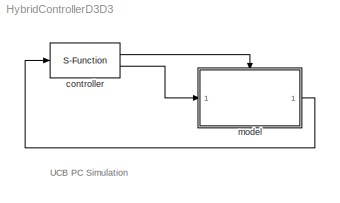
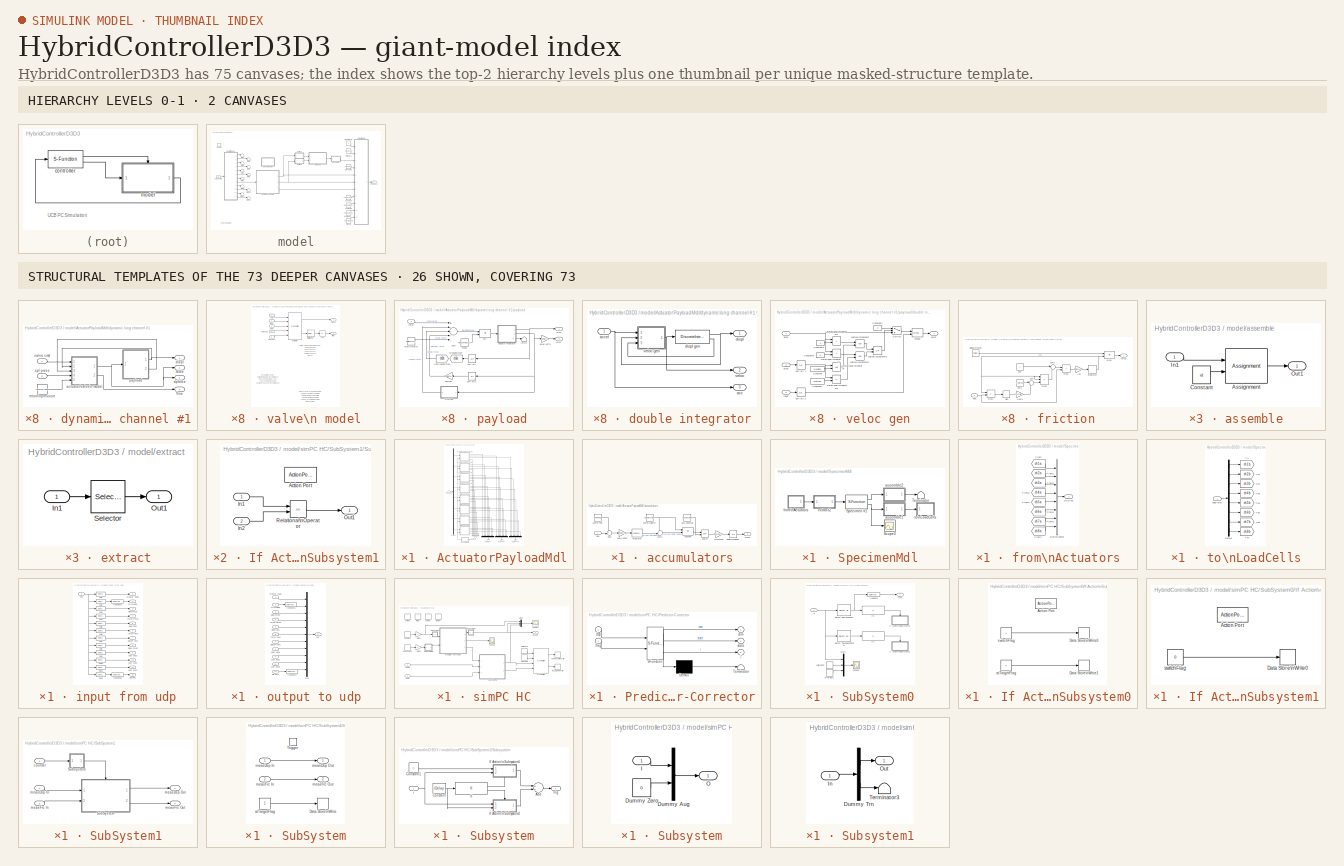
[diagram: thumbnail index - top-2 hierarchy levels (2 canvases) + 26 structural-template representatives of the remaining 73 canvases]
MODEL HybridControllerD3D3
KIND model
CONFIG InitFcn = clear('all');\ninitializeSimulation;
CONFIG PreLoadFcn = initializeSimulation;
BLOCK [S-Function] controller
  EnableBusSupport = off
  FunctionName = mtsConnect
  Parameters = '127.0.0.1',5002,nUDPInp,nUDPOut
  Ports = [1, 2]
  SID = 1
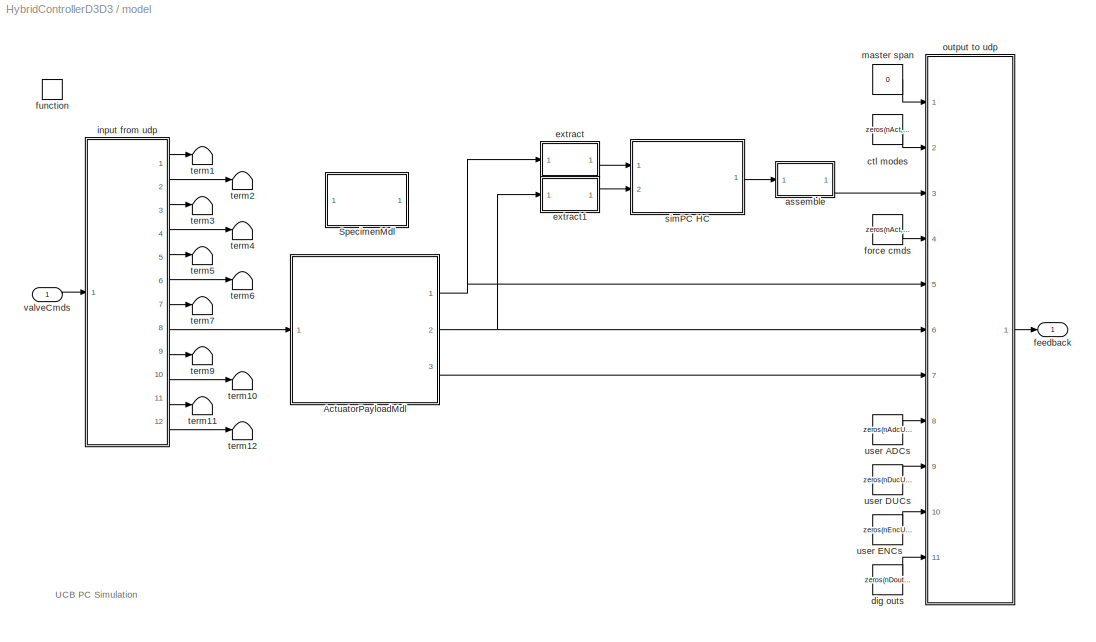
BLOCK [SubSystem] model
  FunctionWithSeparateData = off
  MaskHideContents = off
  MinAlgLoopOccurrences = off
  Opaque = off
  Ports = [1, 1, 0, 1]
  PropExecContextOutsideSubsystem = off
  RTWSystemCode = Auto
  RequestExecContextInheritance = off
  SID = 2
  TreatAsAtomicUnit = on
BLOCK [SubSystem] model/ActuatorPayloadMdl
  FunctionWithSeparateData = off
  MaskHideContents = off
  MinAlgLoopOccurrences = off
  Opaque = off
  Ports = [1, 3]
  PropExecContextOutsideSubsystem = off
  RTWSystemCode = Auto
  RequestExecContextInheritance = off
  SID = 726
BLOCK [Demux] model/ActuatorPayloadMdl/Demux
  Outputs = nAct
  Ports = [1, 8]
  SID = 728
BLOCK [Mux] model/ActuatorPayloadMdl/Mux
  DisplayOption = bar
  Inputs = nAct
  Ports = [8, 1]
  SID = 729
BLOCK [Mux] model/ActuatorPayloadMdl/Mux1
  DisplayOption = bar
  Inputs = nAct
  Ports = [8, 1]
  SID = 730
BLOCK [Mux] model/ActuatorPayloadMdl/Mux2
  DisplayOption = bar
  Inputs = nAct
  Ports = [8, 1]
  SID = 731
BLOCK [Sum] model/ActuatorPayloadMdl/Sum
  InputSameDT = off
  Inputs = ++++++++
  OutDataType = sfix(16)
  OutDataTypeMode = Inherit via internal rule
  OutDataTypeStr = Inherit: Inherit via internal rule
  OutScaling = 2^0
  Ports = [8, 1]
  SID = 732
BLOCK [SubSystem] model/ActuatorPayloadMdl/accumulators
  FunctionWithSeparateData = off
  MaskHideContents = off
  MinAlgLoopOccurrences = off
  Opaque = off
  Ports = [1, 1]
  PropExecContextOutsideSubsystem = off
  RTWSystemCode = Auto
  RequestExecContextInheritance = off
  SID = 733
BLOCK [Sum] model/ActuatorPayloadMdl/accumulators/Sum
  IconShape = round
  Inputs = +-|
  OutDataType = sfix(16)
  OutScaling = 2^0
  Ports = [2, 1]
  SID = 735
BLOCK [Sum] model/ActuatorPayloadMdl/accumulators/Sum1
  IconShape = round
  Inputs = +-|
  OutDataType = sfix(16)
  OutScaling = 2^0
  Ports = [2, 1]
  SID = 736
BLOCK [Constant] model/ActuatorPayloadMdl/accumulators/bottle volume
  OutDataType = sfix(16)
  OutScaling = 2^0
  SID = 737
  Value = volume*volumeCanon
BLOCK [Inport] model/ActuatorPayloadMdl/accumulators/flow
  IconDisplay = Port number
  OutDataType = sfix(16)
  OutScaling = 2^0
  SID = 734
BLOCK [Gain] model/ActuatorPayloadMdl/accumulators/flowCanon
  Gain = flowCanon
  OutDataType = sfix(16)
  OutScaling = 2^0
  ParameterDataType = sfix(16)
  ParameterScaling = 2^0
  SID = 738
BLOCK [Constant] model/ActuatorPayloadMdl/accumulators/gas constant
  OutDataType = sfix(16)
  OutScaling = 2^0
  SID = 739
  Value = gasConstant
BLOCK [UnitDelay] model/ActuatorPayloadMdl/accumulators/initial\ncondition
  SID = 740
  SampleTime = -1
  X0 = supplyPress
BLOCK [DiscreteIntegrator] model/ActuatorPayloadMdl/accumulators/integrator
  ExternalReset = none
  ICPrevOutput = DiscIntNeverNeededParam
  ICPrevScaledInput = DiscIntNeverNeededParam
  InitialCondition = maxOilVolume*volumeCanon
  InitialConditionSource = internal
  IntegratorMethod = Integration: Forward Euler
  LimitOutput = on
  LowerSaturationLimit = 0
  OutDataType = sfix(16)
  OutScaling = 2^0
  Ports = [1, 1]
  SID = 741
  SampleTime = -1
  UpperSaturationLimit = maxOilVolume*volumeCanon
BLOCK [Math] model/ActuatorPayloadMdl/accumulators/power
  Operator = pow
  OutDataType = sfix(16)
  OutScaling = 2^0
  Ports = [2, 1]
  SID = 742
BLOCK [Gain] model/ActuatorPayloadMdl/accumulators/precharge
  Gain = precharge
  OutDataType = sfix(16)
  OutScaling = 2^0
  ParameterDataType = sfix(16)
  ParameterScaling = 2^0
  SID = 743
BLOCK [Outport] model/ActuatorPayloadMdl/accumulators/press
  IconDisplay = Port number
  OutDataType = sfix(16)
  OutScaling = 2^0
  SID = 746
BLOCK [Constant] model/ActuatorPayloadMdl/accumulators/pump flow
  OutDataType = sfix(16)
  OutScaling = 2^0
  SID = 744
  Value = pumpFlow
BLOCK [Product] model/ActuatorPayloadMdl/accumulators/quotient
  Inputs = */
  OutDataType = sfix(16)
  OutScaling = 2^0
  Ports = [2, 1]
  RndMeth = Floor
  SID = 745
BLOCK [Outport] model/ActuatorPayloadMdl/deltaPFbks
  IconDisplay = Port number
  OutDataType = sfix(16)
  OutScaling = 2^0
  Port = 3
  SID = 1365
BLOCK [Outport] model/ActuatorPayloadMdl/displFbks
  IconDisplay = Port number
  OutDataType = sfix(16)
  OutScaling = 2^0
  SID = 1363
BLOCK [SubSystem] model/ActuatorPayloadMdl/dynamic long channel #1
  FunctionWithSeparateData = off
  MaskHideContents = off
  MinAlgLoopOccurrences = off
  Opaque = off
  Ports = [2, 4]
  PropExecContextOutsideSubsystem = off
  RTWSystemCode = Auto
  RequestExecContextInheritance = off
  SID = 747
BLOCK [SubSystem] model/ActuatorPayloadMdl/dynamic long channel #1/actuator//valve\n model
  FunctionWithSeparateData = off
  MaskHideContents = off
  MaskIconFrame = on
  MaskIconOpaque = on
  MaskIconRotate = none
  MaskIconUnits = autoscale
  MaskPortRotate = default
  MaskType = Inverse Actuator
  MinAlgLoopOccurrences = off
  Opaque = off
  Ports = [5, 2]
  PropExecContextOutsideSubsystem = off
  RTWSystemCode = Auto
  RequestExecContextInheritance = off
  SID = 750
BLOCK [Abs] model/ActuatorPayloadMdl/dynamic long channel #1/actuator//valve\n model/abs
  SID = 756
BLOCK [S-Function] model/ActuatorPayloadMdl/dynamic long channel #1/actuator//valve\n model/actuator
  EnableBusSupport = off
  FunctionName = actuator
  Parameters = actParamsB
  Ports = [5, 2]
  SID = 757
BLOCK [Inport] model/ActuatorPayloadMdl/dynamic long channel #1/actuator//valve\n model/cmd
  IconDisplay = Port number
  OutDataType = sfix(16)
  OutScaling = 2^0
  SID = 751
BLOCK [Inport] model/ActuatorPayloadMdl/dynamic long channel #1/actuator//valve\n model/displ
  IconDisplay = Port number
  OutDataType = sfix(16)
  OutScaling = 2^0
  Port = 2
  SID = 752
BLOCK [Outport] model/ActuatorPayloadMdl/dynamic long channel #1/actuator//valve\n model/flow
  IconDisplay = Port number
  OutDataType = sfix(16)
  OutScaling = 2^0
  Port = 2
  SID = 760
BLOCK [Outport] model/ActuatorPayloadMdl/dynamic long channel #1/actuator//valve\n model/force
  IconDisplay = Port number
  OutDataType = sfix(16)
  OutScaling = 2^0
  SID = 759
BLOCK [Inport] model/ActuatorPayloadMdl/dynamic long channel #1/actuator//valve\n model/rtn press
  IconDisplay = Port number
  OutDataType = sfix(16)
  OutScaling = 2^0
  Port = 5
  SID = 755
BLOCK [Inport] model/ActuatorPayloadMdl/dynamic long channel #1/actuator//valve\n model/spl press
  IconDisplay = Port number
  OutDataType = sfix(16)
  OutScaling = 2^0
  Port = 4
  SID = 754
BLOCK [Selector] model/ActuatorPayloadMdl/dynamic long channel #1/actuator//valve\n model/total flow sel
  IndexOptions = Index vector (dialog)
  Indices = 9
  InputPortWidth = 12
  OutputSizes = 1
  Ports = [1, 1]
  SID = 758
BLOCK [Inport] model/ActuatorPayloadMdl/dynamic long channel #1/actuator//valve\n model/veloc
  IconDisplay = Port number
  OutDataType = sfix(16)
  OutScaling = 2^0
  Port = 3
  SID = 753
BLOCK [Outport] model/ActuatorPayloadMdl/dynamic long channel #1/displ
  IconDisplay = Port number
  OutDataType = sfix(16)
  OutScaling = 2^0
  SID = 820
BLOCK [Outport] model/ActuatorPayloadMdl/dynamic long channel #1/dpforce
  IconDisplay = Port number
  OutDataType = sfix(16)
  OutScaling = 2^0
  Port = 3
  SID = 822
BLOCK [Outport] model/ActuatorPayloadMdl/dynamic long channel #1/flow
  IconDisplay = Port number
  OutDataType = sfix(16)
  OutScaling = 2^0
  Port = 4
  SID = 823
BLOCK [Outport] model/ActuatorPayloadMdl/dynamic long channel #1/force
  IconDisplay = Port number
  OutDataType = sfix(16)
  OutScaling = 2^0
  Port = 2
  SID = 821
BLOCK [SubSystem] model/ActuatorPayloadMdl/dynamic long channel #1/payload
  FunctionWithSeparateData = off
  MaskHideContents = off
  MinAlgLoopOccurrences = off
  Opaque = off
  Ports = [1, 2]
  PropExecContextOutsideSubsystem = off
  RTWSystemCode = Auto
  RequestExecContextInheritance = off
  SID = 761
BLOCK [Sum] model/ActuatorPayloadMdl/dynamic long channel #1/payload/Sum
  Inputs = +----
  OutDataType = sfix(16)
  OutScaling = 2^0
  Ports = [5, 1]
  SID = 763
BLOCK [Gain] model/ActuatorPayloadMdl/dynamic long channel #1/payload/damper
  Gain = damperB*damperCanon
  OutDataType = sfix(16)
  OutScaling = 2^0
  ParameterDataType = sfix(16)
  ParameterScaling = 2^0
  SID = 764
BLOCK [Outport] model/ActuatorPayloadMdl/dynamic long channel #1/payload/displ
  IconDisplay = Port number
  OutDataType = sfix(16)
  OutScaling = 2^0
  SID = 817
BLOCK [Product] model/ActuatorPayloadMdl/dynamic long channel #1/payload/div
  Inputs = */
  OutDataType = sfix(16)
  OutScaling = 2^0
  Ports = [2, 1]
  RndMeth = Floor
  SID = 765
BLOCK [SubSystem] model/ActuatorPayloadMdl/dynamic long channel #1/payload/double integrator
  FunctionWithSeparateData = off
  MaskHideContents = off
  MinAlgLoopOccurrences = off
  Opaque = off
  Ports = [1, 3]
  PropExecContextOutsideSubsystem = off
  RTWSystemCode = Auto
  RequestExecContextInheritance = off
  SID = 766
BLOCK [Outport] model/ActuatorPayloadMdl/dynamic long channel #1/payload/double integrator/acc
  IconDisplay = Port number
  Port = 3
  SID = 792
BLOCK [Inport] model/ActuatorPayloadMdl/dynamic long channel #1/payload/double integrator/accel
  IconDisplay = Port number
  SID = 767
BLOCK [Outport] model/ActuatorPayloadMdl/dynamic long channel #1/payload/double integrator/displ
  IconDisplay = Port number
  SID = 790
BLOCK [DiscreteIntegrator] model/ActuatorPayloadMdl/dynamic long channel #1/payload/double integrator/displ gen
  ExternalReset = none
  ICPrevOutput = DiscIntNeverNeededParam
  ICPrevScaledInput = DiscIntNeverNeededParam
  InitialConditionSource = internal
  IntegratorMethod = Integration: Backward Euler
  LimitOutput = on
  LowerSaturationLimit = minDisplB
  OutDataType = sfix(16)
  OutScaling = 2^0
  Ports = [1, 2]
  SID = 768
  SampleTime = -1
  ShowSaturationPort = on
  UpperSaturationLimit = maxDisplB
BLOCK [Outport] model/ActuatorPayloadMdl/dynamic long channel #1/payload/double integrator/veloc
  IconDisplay = Port number
  Port = 2
  SID = 791
BLOCK [SubSystem] model/ActuatorPayloadMdl/dynamic long channel #1/payload/double integrator/veloc gen
  FunctionWithSeparateData = off
  MaskCallbackString = |||
  MaskEnableString = on,on,on,on
  MaskHideContents = off
  MaskIconFrame = on
  MaskIconOpaque = on
  MaskIconRotate = none
  MaskIconUnits = autoscale
  MaskPortRotate = default
  MaskPromptString = Max velocity|Min velocity|Max displacement|Min displacement
  MaskStyleString = edit,edit,edit,edit
  MaskToolTipString = on,on,on,on
  MaskTunableValueString = on,on,on,on
  MaskValueString = maxVelocB*velocCanon|minVelocB*velocCanon|maxDisplB|minDisplB
  MaskVariables = maxVeloc=@1;minVeloc=@2;maxDispl=@3;minDispl=@4;
  MaskVisibilityString = on,on,on,on
  MinAlgLoopOccurrences = off
  Opaque = off
  Ports = [3, 1]
  PropExecContextOutsideSubsystem = off
  RTWSystemCode = Auto
  RequestExecContextInheritance = off
  SID = 769
BLOCK [Constant] model/ActuatorPayloadMdl/dynamic long channel #1/payload/double integrator/veloc gen/Constant
  OutDataType = sfix(16)
  OutScaling = 2^0
  SID = 773
  Value = maxDispl
BLOCK [Constant] model/ActuatorPayloadMdl/dynamic long channel #1/payload/double integrator/veloc gen/Constant1
  OutDataType = sfix(16)
  OutScaling = 2^0
  SID = 774
  Value = minDispl
BLOCK [Constant] model/ActuatorPayloadMdl/dynamic long channel #1/payload/double integrator/veloc gen/Constant2
  OutDataType = sfix(16)
  OutScaling = 2^0
  SID = 775
  Value = 0
BLOCK [Constant] model/ActuatorPayloadMdl/dynamic long channel #1/payload/double integrator/veloc gen/Constant3
  OutDataType = sfix(16)
  OutScaling = 2^0
  SID = 776
  Value = 0
BLOCK [Constant] model/ActuatorPayloadMdl/dynamic long channel #1/payload/double integrator/veloc gen/Constant4
  OutDataType = sfix(16)
  OutScaling = 2^0
  SID = 777
  Value = 0
BLOCK [Logic] model/ActuatorPayloadMdl/dynamic long channel #1/payload/double integrator/veloc gen/Logical\nOperator
  Ports = [2, 1]
  SID = 778
BLOCK [Logic] model/ActuatorPayloadMdl/dynamic long channel #1/payload/double integrator/veloc gen/Logical\nOperator1
  Ports = [2, 1]
  SID = 779
BLOCK [Logic] model/ActuatorPayloadMdl/dynamic long channel #1/payload/double integrator/veloc gen/Logical\nOperator2
  Operator = OR
  Ports = [2, 1]
  SID = 780
BLOCK [RelationalOperator] model/ActuatorPayloadMdl/dynamic long channel #1/payload/double integrator/veloc gen/Relational\nOperator
  Ports = [2, 1]
  SID = 781
BLOCK [RelationalOperator] model/ActuatorPayloadMdl/dynamic long channel #1/payload/double integrator/veloc gen/Relational\nOperator1
  Operator = >
  Ports = [2, 1]
  SID = 782
BLOCK [RelationalOperator] model/ActuatorPayloadMdl/dynamic long channel #1/payload/double integrator/veloc gen/Relational\nOperator2
  Operator = <=
  Ports = [2, 1]
  SID = 783
BLOCK [RelationalOperator] model/ActuatorPayloadMdl/dynamic long channel #1/payload/double integrator/veloc gen/Relational\nOperator3
  Operator = <
  Ports = [2, 1]
  SID = 784
BLOCK [Switch] model/ActuatorPayloadMdl/dynamic long channel #1/payload/double integrator/veloc gen/Switch
  SID = 785
  Threshold = 0.5
BLOCK [Inport] model/ActuatorPayloadMdl/dynamic long channel #1/payload/double integrator/veloc gen/accel
  IconDisplay = Port number
  OutDataType = sfix(16)
  OutScaling = 2^0
  SID = 770
BLOCK [Inport] model/ActuatorPayloadMdl/dynamic long channel #1/payload/double integrator/veloc gen/displ
  IconDisplay = Port number
  OutDataType = sfix(16)
  OutScaling = 2^0
  Port = 2
  SID = 771
BLOCK [DiscreteIntegrator] model/ActuatorPayloadMdl/dynamic long channel #1/payload/double integrator/veloc gen/integ1
  ExternalReset = either
  ICPrevOutput = DiscIntNeverNeededParam
  ICPrevScaledInput = DiscIntNeverNeededParam
  InitialConditionSource = internal
  IntegratorMethod = Integration: Backward Euler
  LimitOutput = on
  LowerSaturationLimit = minVeloc
  OutDataType = sfix(16)
  OutScaling = 2^0
  Ports = [2, 1]
  SID = 786
  SampleTime = -1
  UpperSaturationLimit = maxVeloc
BLOCK [Inport] model/ActuatorPayloadMdl/dynamic long channel #1/payload/double integrator/veloc gen/reset
  IconDisplay = Port number
  OutDataType = sfix(16)
  OutScaling = 2^0
  Port = 3
  SID = 772
BLOCK [UnitDelay] model/ActuatorPayloadMdl/dynamic long channel #1/payload/double integrator/veloc gen/unit dly 1
  SID = 787
  SampleTime = -1
BLOCK [UnitDelay] model/ActuatorPayloadMdl/dynamic long channel #1/payload/double integrator/veloc gen/unit dly 2
  SID = 788
  SampleTime = -1
BLOCK [Outport] model/ActuatorPayloadMdl/dynamic long channel #1/payload/double integrator/veloc gen/veloc
  IconDisplay = Port number
  OutDataType = sfix(16)
  OutScaling = 2^0
  SID = 789
BLOCK [Inport] model/ActuatorPayloadMdl/dynamic long channel #1/payload/force
  IconDisplay = Port number
  OutDataType = sfix(16)
  OutScaling = 2^0
  SID = 762
BLOCK [SubSystem] model/ActuatorPayloadMdl/dynamic long channel #1/payload/friction
  FunctionWithSeparateData = off
  MaskCallbackString = ||
  MaskEnableString = on,on,on
  MaskHideContents = off
  MaskIconFrame = on
  MaskIconOpaque = on
  MaskIconRotate = none
  MaskIconUnits = autoscale
  MaskPortRotate = default
  MaskPromptString = Sliding friction|Equiv. yield displacement (in)|Hysteresis constant
  MaskStyleString = edit,edit,edit
  MaskToolTipString = on,on,on
  MaskTunableValueString = on,on,on
  MaskValueString = frictionB*forceCanon|yieldDisplB*lengthCanon|0
  MaskVariables = friction=@1;yieldDispl=@2;hysteresis=@3;
  MaskVisibilityString = on,on,on
  MinAlgLoopOccurrences = off
  Opaque = off
  Ports = [1, 1]
  PropExecContextOutsideSubsystem = off
  RTWSystemCode = Auto
  RequestExecContextInheritance = off
  SID = 793
BLOCK [Gain] model/ActuatorPayloadMdl/dynamic long channel #1/payload/friction/1-beta
  Gain = 1-hysteresis
  OutDataType = sfix(16)
  OutScaling = 2^0
  ParameterDataType = sfix(16)
  ParameterScaling = 2^0
  SID = 795
BLOCK [Signum] model/ActuatorPayloadMdl/dynamic long channel #1/payload/friction/Sign
  SID = 796
BLOCK [Sum] model/ActuatorPayloadMdl/dynamic long channel #1/payload/friction/Sum
  IconShape = round
  InputSameDT = off
  Inputs = |++
  OutDataType = sfix(16)
  OutDataTypeMode = Inherit via internal rule
  OutDataTypeStr = Inherit: Inherit via internal rule
  OutScaling = 2^0
  Ports = [2, 1]
  SID = 797
BLOCK [Sum] model/ActuatorPayloadMdl/dynamic long channel #1/payload/friction/Sum1
  IconShape = round
  InputSameDT = off
  Inputs = |+-
  OutDataType = sfix(16)
  OutDataTypeMode = Inherit via internal rule
  OutDataTypeStr = Inherit: Inherit via internal rule
  OutScaling = 2^0
  Ports = [2, 1]
  SID = 798
BLOCK [Constant] model/ActuatorPayloadMdl/dynamic long channel #1/payload/friction/beta
  OutDataType = sfix(16)
  OutScaling = 2^0
  SID = 799
  Value = hysteresis
BLOCK [Outport] model/ActuatorPayloadMdl/dynamic long channel #1/payload/friction/force
  IconDisplay = Port number
  OutDataType = sfix(16)
  OutScaling = 2^0
  SID = 808
BLOCK [DiscreteIntegrator] model/ActuatorPayloadMdl/dynamic long channel #1/payload/friction/integrator
  ExternalReset = none
  ICPrevOutput = DiscIntNeverNeededParam
  ICPrevScaledInput = DiscIntNeverNeededParam
  InitialConditionSource = internal
  IntegratorMethod = Integration: Forward Euler
  LimitOutput = on
  LowerSaturationLimit = -1
  OutDataType = sfix(16)
  OutScaling = 2^0
  Ports = [1, 1]
  SID = 800
  SampleTime = -1
  UpperSaturationLimit = 1
BLOCK [Constant] model/ActuatorPayloadMdl/dynamic long channel #1/payload/friction/one
  OutDataType = sfix(16)
  OutScaling = 2^0
  SID = 801
BLOCK [Product] model/ActuatorPayloadMdl/dynamic long channel #1/payload/friction/prod1
  OutDataType = sfix(16)
  OutScaling = 2^0
  Ports = [2, 1]
  RndMeth = Floor
  SID = 802
BLOCK [Product] model/ActuatorPayloadMdl/dynamic long channel #1/payload/friction/prod2
  OutDataType = sfix(16)
  OutScaling = 2^0
  Ports = [2, 1]
  RndMeth = Floor
  SID = 803
BLOCK [Product] model/ActuatorPayloadMdl/dynamic long channel #1/payload/friction/prod3
  Inputs = 3
  OutDataType = sfix(16)
  OutScaling = 2^0
  Ports = [3, 1]
  RndMeth = Floor
  SID = 804
BLOCK [Product] model/ActuatorPayloadMdl/dynamic long channel #1/payload/friction/prod4
  OutDataType = sfix(16)
  OutScaling = 2^0
  Ports = [2, 1]
  RndMeth = Floor
  SID = 805
BLOCK [Constant] model/ActuatorPayloadMdl/dynamic long channel #1/payload/friction/sliding\nfriction
  OutDataType = sfix(16)
  OutScaling = 2^0
  SID = 806
  Value = friction
BLOCK [Inport] model/ActuatorPayloadMdl/dynamic long channel #1/payload/friction/veloc
  IconDisplay = Port number
  OutDataType = sfix(16)
  OutScaling = 2^0
  SID = 794
BLOCK [Gain] model/ActuatorPayloadMdl/dynamic long channel #1/payload/friction/y inv
  Gain = 1/max(eps, yieldDispl)
  OutDataType = sfix(16)
  OutScaling = 2^0
  ParameterDataType = sfix(16)
  ParameterScaling = 2^0
  SID = 807
BLOCK [From] model/ActuatorPayloadMdl/dynamic long channel #1/payload/from\nspecimen
  GotoTag = ch3b
  SID = 809
  TagVisibility = global
BLOCK [Constant] model/ActuatorPayloadMdl/dynamic long channel #1/payload/mass
  OutDataType = sfix(16)
  OutScaling = 2^0
  SID = 810
  Value = massB*massCanon
BLOCK [Constant] model/ActuatorPayloadMdl/dynamic long channel #1/payload/static\nforce
  OutDataType = sfix(16)
  OutScaling = 2^0
  SID = 811
  Value = staticForceB*forceCanon
BLOCK [Terminator] model/ActuatorPayloadMdl/dynamic long channel #1/payload/term1
  SID = 812
BLOCK [Goto] model/ActuatorPayloadMdl/dynamic long channel #1/payload/to\nspecimen
  GotoTag = ch3a
  SID = 813
  TagVisibility = global
BLOCK [UnitDelay] model/ActuatorPayloadMdl/dynamic long channel #1/payload/unit dly
  SID = 814
  SampleTime = -1
BLOCK [UnitDelay] model/ActuatorPayloadMdl/dynamic long channel #1/payload/unit dly1
  SID = 815
  SampleTime = -1
BLOCK [Outport] model/ActuatorPayloadMdl/dynamic long channel #1/payload/veloc
  IconDisplay = Port number
  OutDataType = sfix(16)
  OutScaling = 2^0
  Port = 2
  SID = 818
BLOCK [Gain] model/ActuatorPayloadMdl/dynamic long channel #1/payload/veloc units
  Gain = 1/velocCanon
  OutDataType = sfix(16)
  OutScaling = 2^0
  ParameterDataType = sfix(16)
  ParameterScaling = 2^0
  SID = 816
BLOCK [Constant] model/ActuatorPayloadMdl/dynamic long channel #1/return\npressure
  OutDataType = sfix(16)
  OutScaling = 2^0
  SID = 819
  Value = returnPress
BLOCK [Inport] model/ActuatorPayloadMdl/dynamic long channel #1/spl press
  IconDisplay = Port number
  OutDataType = sfix(16)
  OutScaling = 2^0
  Port = 2
  SID = 749
BLOCK [Inport] model/ActuatorPayloadMdl/dynamic long channel #1/valve cmd
  IconDisplay = Port number
  OutDataType = sfix(16)
  OutScaling = 2^0
  SID = 748
BLOCK [SubSystem] model/ActuatorPayloadMdl/dynamic long channel #2
  FunctionWithSeparateData = off
  MaskHideContents = off
  MinAlgLoopOccurrences = off
  Opaque = off
  Ports = [2, 4]
  PropExecContextOutsideSubsystem = off
  RTWSystemCode = Auto
  RequestExecContextInheritance = off
  SID = 824
BLOCK [SubSystem] model/ActuatorPayloadMdl/dynamic long channel #2/actuator//valve\n model
  FunctionWithSeparateData = off
  MaskHideContents = off
  MaskIconFrame = on
  MaskIconOpaque = on
  MaskIconRotate = none
  MaskIconUnits = autoscale
  MaskPortRotate = default
  MaskType = Inverse Actuator
  MinAlgLoopOccurrences = off
  Opaque = off
  Ports = [5, 2]
  PropExecContextOutsideSubsystem = off
  RTWSystemCode = Auto
  RequestExecContextInheritance = off
  SID = 827
BLOCK [Abs] model/ActuatorPayloadMdl/dynamic long channel #2/actuator//valve\n model/abs
  SID = 833
BLOCK [S-Function] model/ActuatorPayloadMdl/dynamic long channel #2/actuator//valve\n model/actuator
  EnableBusSupport = off
  FunctionName = actuator
  Parameters = actParamsB
  Ports = [5, 2]
  SID = 834
BLOCK [Inport] model/ActuatorPayloadMdl/dynamic long channel #2/actuator//valve\n model/cmd
  IconDisplay = Port number
  OutDataType = sfix(16)
  OutScaling = 2^0
  SID = 828
BLOCK [Inport] model/ActuatorPayloadMdl/dynamic long channel #2/actuator//valve\n model/displ
  IconDisplay = Port number
  OutDataType = sfix(16)
  OutScaling = 2^0
  Port = 2
  SID = 829
BLOCK [Outport] model/ActuatorPayloadMdl/dynamic long channel #2/actuator//valve\n model/flow
  IconDisplay = Port number
  OutDataType = sfix(16)
  OutScaling = 2^0
  Port = 2
  SID = 837
BLOCK [Outport] model/ActuatorPayloadMdl/dynamic long channel #2/actuator//valve\n model/force
  IconDisplay = Port number
  OutDataType = sfix(16)
  OutScaling = 2^0
  SID = 836
BLOCK [Inport] model/ActuatorPayloadMdl/dynamic long channel #2/actuator//valve\n model/rtn press
  IconDisplay = Port number
  OutDataType = sfix(16)
  OutScaling = 2^0
  Port = 5
  SID = 832
BLOCK [Inport] model/ActuatorPayloadMdl/dynamic long channel #2/actuator//valve\n model/spl press
  IconDisplay = Port number
  OutDataType = sfix(16)
  OutScaling = 2^0
  Port = 4
  SID = 831
BLOCK [Selector] model/ActuatorPayloadMdl/dynamic long channel #2/actuator//valve\n model/total flow sel
  IndexOptions = Index vector (dialog)
  Indices = 9
  InputPortWidth = 12
  OutputSizes = 1
  Ports = [1, 1]
  SID = 835
BLOCK [Inport] model/ActuatorPayloadMdl/dynamic long channel #2/actuator//valve\n model/veloc
  IconDisplay = Port number
  OutDataType = sfix(16)
  OutScaling = 2^0
  Port = 3
  SID = 830
BLOCK [Outport] model/ActuatorPayloadMdl/dynamic long channel #2/displ
  IconDisplay = Port number
  OutDataType = sfix(16)
  OutScaling = 2^0
  SID = 897
BLOCK [Outport] model/ActuatorPayloadMdl/dynamic long channel #2/dpforce
  IconDisplay = Port number
  OutDataType = sfix(16)
  OutScaling = 2^0
  Port = 3
  SID = 899
BLOCK [Outport] model/ActuatorPayloadMdl/dynamic long channel #2/flow
  IconDisplay = Port number
  OutDataType = sfix(16)
  OutScaling = 2^0
  Port = 4
  SID = 900
BLOCK [Outport] model/ActuatorPayloadMdl/dynamic long channel #2/force
  IconDisplay = Port number
  OutDataType = sfix(16)
  OutScaling = 2^0
  Port = 2
  SID = 898
BLOCK [SubSystem] model/ActuatorPayloadMdl/dynamic long channel #2/payload
  FunctionWithSeparateData = off
  MaskHideContents = off
  MinAlgLoopOccurrences = off
  Opaque = off
  Ports = [1, 2]
  PropExecContextOutsideSubsystem = off
  RTWSystemCode = Auto
  RequestExecContextInheritance = off
  SID = 838
BLOCK [Sum] model/ActuatorPayloadMdl/dynamic long channel #2/payload/Sum
  Inputs = +----
  OutDataType = sfix(16)
  OutScaling = 2^0
  Ports = [5, 1]
  SID = 840
BLOCK [Gain] model/ActuatorPayloadMdl/dynamic long channel #2/payload/damper
  Gain = damperB*damperCanon
  OutDataType = sfix(16)
  OutScaling = 2^0
  ParameterDataType = sfix(16)
  ParameterScaling = 2^0
  SID = 841
BLOCK [Outport] model/ActuatorPayloadMdl/dynamic long channel #2/payload/displ
  IconDisplay = Port number
  OutDataType = sfix(16)
  OutScaling = 2^0
  SID = 894
BLOCK [Product] model/ActuatorPayloadMdl/dynamic long channel #2/payload/div
  Inputs = */
  OutDataType = sfix(16)
  OutScaling = 2^0
  Ports = [2, 1]
  RndMeth = Floor
  SID = 842
BLOCK [SubSystem] model/ActuatorPayloadMdl/dynamic long channel #2/payload/double integrator
  FunctionWithSeparateData = off
  MaskHideContents = off
  MinAlgLoopOccurrences = off
  Opaque = off
  Ports = [1, 3]
  PropExecContextOutsideSubsystem = off
  RTWSystemCode = Auto
  RequestExecContextInheritance = off
  SID = 843
BLOCK [Outport] model/ActuatorPayloadMdl/dynamic long channel #2/payload/double integrator/acc
  IconDisplay = Port number
  Port = 3
  SID = 869
BLOCK [Inport] model/ActuatorPayloadMdl/dynamic long channel #2/payload/double integrator/accel
  IconDisplay = Port number
  SID = 844
BLOCK [Outport] model/ActuatorPayloadMdl/dynamic long channel #2/payload/double integrator/displ
  IconDisplay = Port number
  SID = 867
BLOCK [DiscreteIntegrator] model/ActuatorPayloadMdl/dynamic long channel #2/payload/double integrator/displ gen
  ExternalReset = none
  ICPrevOutput = DiscIntNeverNeededParam
  ICPrevScaledInput = DiscIntNeverNeededParam
  InitialConditionSource = internal
  IntegratorMethod = Integration: Backward Euler
  LimitOutput = on
  LowerSaturationLimit = minDisplB
  OutDataType = sfix(16)
  OutScaling = 2^0
  Ports = [1, 2]
  SID = 845
  SampleTime = -1
  ShowSaturationPort = on
  UpperSaturationLimit = maxDisplB
BLOCK [Outport] model/ActuatorPayloadMdl/dynamic long channel #2/payload/double integrator/veloc
  IconDisplay = Port number
  Port = 2
  SID = 868
BLOCK [SubSystem] model/ActuatorPayloadMdl/dynamic long channel #2/payload/double integrator/veloc gen
  FunctionWithSeparateData = off
  MaskCallbackString = |||
  MaskEnableString = on,on,on,on
  MaskHideContents = off
  MaskIconFrame = on
  MaskIconOpaque = on
  MaskIconRotate = none
  MaskIconUnits = autoscale
  MaskPortRotate = default
  MaskPromptString = Max velocity|Min velocity|Max displacement|Min displacement
  MaskStyleString = edit,edit,edit,edit
  MaskToolTipString = on,on,on,on
  MaskTunableValueString = on,on,on,on
  MaskValueString = maxVelocB*velocCanon|minVelocB*velocCanon|maxDisplB|minDisplB
  MaskVariables = maxVeloc=@1;minVeloc=@2;maxDispl=@3;minDispl=@4;
  MaskVisibilityString = on,on,on,on
  MinAlgLoopOccurrences = off
  Opaque = off
  Ports = [3, 1]
  PropExecContextOutsideSubsystem = off
  RTWSystemCode = Auto
  RequestExecContextInheritance = off
  SID = 846
BLOCK [Constant] model/ActuatorPayloadMdl/dynamic long channel #2/payload/double integrator/veloc gen/Constant
  OutDataType = sfix(16)
  OutScaling = 2^0
  SID = 850
  Value = maxDispl
BLOCK [Constant] model/ActuatorPayloadMdl/dynamic long channel #2/payload/double integrator/veloc gen/Constant1
  OutDataType = sfix(16)
  OutScaling = 2^0
  SID = 851
  Value = minDispl
BLOCK [Constant] model/ActuatorPayloadMdl/dynamic long channel #2/payload/double integrator/veloc gen/Constant2
  OutDataType = sfix(16)
  OutScaling = 2^0
  SID = 852
  Value = 0
BLOCK [Constant] model/ActuatorPayloadMdl/dynamic long channel #2/payload/double integrator/veloc gen/Constant3
  OutDataType = sfix(16)
  OutScaling = 2^0
  SID = 853
  Value = 0
BLOCK [Constant] model/ActuatorPayloadMdl/dynamic long channel #2/payload/double integrator/veloc gen/Constant4
  OutDataType = sfix(16)
  OutScaling = 2^0
  SID = 854
  Value = 0
BLOCK [Logic] model/ActuatorPayloadMdl/dynamic long channel #2/payload/double integrator/veloc gen/Logical\nOperator
  Ports = [2, 1]
  SID = 855
BLOCK [Logic] model/ActuatorPayloadMdl/dynamic long channel #2/payload/double integrator/veloc gen/Logical\nOperator1
  Ports = [2, 1]
  SID = 856
BLOCK [Logic] model/ActuatorPayloadMdl/dynamic long channel #2/payload/double integrator/veloc gen/Logical\nOperator2
  Operator = OR
  Ports = [2, 1]
  SID = 857
BLOCK [RelationalOperator] model/ActuatorPayloadMdl/dynamic long channel #2/payload/double integrator/veloc gen/Relational\nOperator
  Ports = [2, 1]
  SID = 858
BLOCK [RelationalOperator] model/ActuatorPayloadMdl/dynamic long channel #2/payload/double integrator/veloc gen/Relational\nOperator1
  Operator = >
  Ports = [2, 1]
  SID = 859
BLOCK [RelationalOperator] model/ActuatorPayloadMdl/dynamic long channel #2/payload/double integrator/veloc gen/Relational\nOperator2
  Operator = <=
  Ports = [2, 1]
  SID = 860
BLOCK [RelationalOperator] model/ActuatorPayloadMdl/dynamic long channel #2/payload/double integrator/veloc gen/Relational\nOperator3
  Operator = <
  Ports = [2, 1]
  SID = 861
BLOCK [Switch] model/ActuatorPayloadMdl/dynamic long channel #2/payload/double integrator/veloc gen/Switch
  SID = 862
  Threshold = 0.5
BLOCK [Inport] model/ActuatorPayloadMdl/dynamic long channel #2/payload/double integrator/veloc gen/accel
  IconDisplay = Port number
  OutDataType = sfix(16)
  OutScaling = 2^0
  SID = 847
BLOCK [Inport] model/ActuatorPayloadMdl/dynamic long channel #2/payload/double integrator/veloc gen/displ
  IconDisplay = Port number
  OutDataType = sfix(16)
  OutScaling = 2^0
  Port = 2
  SID = 848
BLOCK [DiscreteIntegrator] model/ActuatorPayloadMdl/dynamic long channel #2/payload/double integrator/veloc gen/integ1
  ExternalReset = either
  ICPrevOutput = DiscIntNeverNeededParam
  ICPrevScaledInput = DiscIntNeverNeededParam
  InitialConditionSource = internal
  IntegratorMethod = Integration: Backward Euler
  LimitOutput = on
  LowerSaturationLimit = minVeloc
  OutDataType = sfix(16)
  OutScaling = 2^0
  Ports = [2, 1]
  SID = 863
  SampleTime = -1
  UpperSaturationLimit = maxVeloc
BLOCK [Inport] model/ActuatorPayloadMdl/dynamic long channel #2/payload/double integrator/veloc gen/reset
  IconDisplay = Port number
  OutDataType = sfix(16)
  OutScaling = 2^0
  Port = 3
  SID = 849
BLOCK [UnitDelay] model/ActuatorPayloadMdl/dynamic long channel #2/payload/double integrator/veloc gen/unit dly 1
  SID = 864
  SampleTime = -1
BLOCK [UnitDelay] model/ActuatorPayloadMdl/dynamic long channel #2/payload/double integrator/veloc gen/unit dly 2
  SID = 865
  SampleTime = -1
BLOCK [Outport] model/ActuatorPayloadMdl/dynamic long channel #2/payload/double integrator/veloc gen/veloc
  IconDisplay = Port number
  OutDataType = sfix(16)
  OutScaling = 2^0
  SID = 866
BLOCK [Inport] model/ActuatorPayloadMdl/dynamic long channel #2/payload/force
  IconDisplay = Port number
  OutDataType = sfix(16)
  OutScaling = 2^0
  SID = 839
BLOCK [SubSystem] model/ActuatorPayloadMdl/dynamic long channel #2/payload/friction
  FunctionWithSeparateData = off
  MaskCallbackString = ||
  MaskEnableString = on,on,on
  MaskHideContents = off
  MaskIconFrame = on
  MaskIconOpaque = on
  MaskIconRotate = none
  MaskIconUnits = autoscale
  MaskPortRotate = default
  MaskPromptString = Sliding friction|Equiv. yield displacement (in)|Hysteresis constant
  MaskStyleString = edit,edit,edit
  MaskToolTipString = on,on,on
  MaskTunableValueString = on,on,on
  MaskValueString = frictionB*forceCanon|yieldDisplB*lengthCanon|0
  MaskVariables = friction=@1;yieldDispl=@2;hysteresis=@3;
  MaskVisibilityString = on,on,on
  MinAlgLoopOccurrences = off
  Opaque = off
  Ports = [1, 1]
  PropExecContextOutsideSubsystem = off
  RTWSystemCode = Auto
  RequestExecContextInheritance = off
  SID = 870
BLOCK [Gain] model/ActuatorPayloadMdl/dynamic long channel #2/payload/friction/1-beta
  Gain = 1-hysteresis
  OutDataType = sfix(16)
  OutScaling = 2^0
  ParameterDataType = sfix(16)
  ParameterScaling = 2^0
  SID = 872
BLOCK [Signum] model/ActuatorPayloadMdl/dynamic long channel #2/payload/friction/Sign
  SID = 873
BLOCK [Sum] model/ActuatorPayloadMdl/dynamic long channel #2/payload/friction/Sum
  IconShape = round
  InputSameDT = off
  Inputs = |++
  OutDataType = sfix(16)
  OutDataTypeMode = Inherit via internal rule
  OutDataTypeStr = Inherit: Inherit via internal rule
  OutScaling = 2^0
  Ports = [2, 1]
  SID = 874
BLOCK [Sum] model/ActuatorPayloadMdl/dynamic long channel #2/payload/friction/Sum1
  IconShape = round
  InputSameDT = off
  Inputs = |+-
  OutDataType = sfix(16)
  OutDataTypeMode = Inherit via internal rule
  OutDataTypeStr = Inherit: Inherit via internal rule
  OutScaling = 2^0
  Ports = [2, 1]
  SID = 875
BLOCK [Constant] model/ActuatorPayloadMdl/dynamic long channel #2/payload/friction/beta
  OutDataType = sfix(16)
  OutScaling = 2^0
  SID = 876
  Value = hysteresis
BLOCK [Outport] model/ActuatorPayloadMdl/dynamic long channel #2/payload/friction/force
  IconDisplay = Port number
  OutDataType = sfix(16)
  OutScaling = 2^0
  SID = 885
BLOCK [DiscreteIntegrator] model/ActuatorPayloadMdl/dynamic long channel #2/payload/friction/integrator
  ExternalReset = none
  ICPrevOutput = DiscIntNeverNeededParam
  ICPrevScaledInput = DiscIntNeverNeededParam
  InitialConditionSource = internal
  IntegratorMethod = Integration: Forward Euler
  LimitOutput = on
  LowerSaturationLimit = -1
  OutDataType = sfix(16)
  OutScaling = 2^0
  Ports = [1, 1]
  SID = 877
  SampleTime = -1
  UpperSaturationLimit = 1
BLOCK [Constant] model/ActuatorPayloadMdl/dynamic long channel #2/payload/friction/one
  OutDataType = sfix(16)
  OutScaling = 2^0
  SID = 878
BLOCK [Product] model/ActuatorPayloadMdl/dynamic long channel #2/payload/friction/prod1
  OutDataType = sfix(16)
  OutScaling = 2^0
  Ports = [2, 1]
  RndMeth = Floor
  SID = 879
BLOCK [Product] model/ActuatorPayloadMdl/dynamic long channel #2/payload/friction/prod2
  OutDataType = sfix(16)
  OutScaling = 2^0
  Ports = [2, 1]
  RndMeth = Floor
  SID = 880
BLOCK [Product] model/ActuatorPayloadMdl/dynamic long channel #2/payload/friction/prod3
  Inputs = 3
  OutDataType = sfix(16)
  OutScaling = 2^0
  Ports = [3, 1]
  RndMeth = Floor
  SID = 881
BLOCK [Product] model/ActuatorPayloadMdl/dynamic long channel #2/payload/friction/prod4
  OutDataType = sfix(16)
  OutScaling = 2^0
  Ports = [2, 1]
  RndMeth = Floor
  SID = 882
BLOCK [Constant] model/ActuatorPayloadMdl/dynamic long channel #2/payload/friction/sliding\nfriction
  OutDataType = sfix(16)
  OutScaling = 2^0
  SID = 883
  Value = friction
BLOCK [Inport] model/ActuatorPayloadMdl/dynamic long channel #2/payload/friction/veloc
  IconDisplay = Port number
  OutDataType = sfix(16)
  OutScaling = 2^0
  SID = 871
BLOCK [Gain] model/ActuatorPayloadMdl/dynamic long channel #2/payload/friction/y inv
  Gain = 1/max(eps, yieldDispl)
  OutDataType = sfix(16)
  OutScaling = 2^0
  ParameterDataType = sfix(16)
  ParameterScaling = 2^0
  SID = 884
BLOCK [From] model/ActuatorPayloadMdl/dynamic long channel #2/payload/from\nspecimen
  GotoTag = ch4b
  SID = 886
  TagVisibility = global
BLOCK [Constant] model/ActuatorPayloadMdl/dynamic long channel #2/payload/mass
  OutDataType = sfix(16)
  OutScaling = 2^0
  SID = 887
  Value = massB*massCanon
BLOCK [Constant] model/ActuatorPayloadMdl/dynamic long channel #2/payload/static\nforce
  OutDataType = sfix(16)
  OutScaling = 2^0
  SID = 888
  Value = staticForceB*forceCanon
BLOCK [Terminator] model/ActuatorPayloadMdl/dynamic long channel #2/payload/term1
  SID = 889
BLOCK [Goto] model/ActuatorPayloadMdl/dynamic long channel #2/payload/to\nspecimen
  GotoTag = ch4a
  SID = 890
  TagVisibility = global
BLOCK [UnitDelay] model/ActuatorPayloadMdl/dynamic long channel #2/payload/unit dly
  SID = 891
  SampleTime = -1
BLOCK [UnitDelay] model/ActuatorPayloadMdl/dynamic long channel #2/payload/unit dly1
  SID = 892
  SampleTime = -1
BLOCK [Outport] model/ActuatorPayloadMdl/dynamic long channel #2/payload/veloc
  IconDisplay = Port number
  OutDataType = sfix(16)
  OutScaling = 2^0
  Port = 2
  SID = 895
BLOCK [Gain] model/ActuatorPayloadMdl/dynamic long channel #2/payload/veloc units
  Gain = 1/velocCanon
  OutDataType = sfix(16)
  OutScaling = 2^0
  ParameterDataType = sfix(16)
  ParameterScaling = 2^0
  SID = 893
BLOCK [Constant] model/ActuatorPayloadMdl/dynamic long channel #2/return\npressure
  OutDataType = sfix(16)
  OutScaling = 2^0
  SID = 896
  Value = returnPress
BLOCK [Inport] model/ActuatorPayloadMdl/dynamic long channel #2/spl press
  IconDisplay = Port number
  OutDataType = sfix(16)
  OutScaling = 2^0
  Port = 2
  SID = 826
BLOCK [Inport] model/ActuatorPayloadMdl/dynamic long channel #2/valve cmd
  IconDisplay = Port number
  OutDataType = sfix(16)
  OutScaling = 2^0
  SID = 825
BLOCK [SubSystem] model/ActuatorPayloadMdl/dynamic short channel #1
  FunctionWithSeparateData = off
  MaskHideContents = off
  MinAlgLoopOccurrences = off
  Opaque = off
  Ports = [2, 4]
  PropExecContextOutsideSubsystem = off
  RTWSystemCode = Auto
  RequestExecContextInheritance = off
  SID = 901
BLOCK [SubSystem] model/ActuatorPayloadMdl/dynamic short channel #1/actuator//valve\n model
  FunctionWithSeparateData = off
  MaskHideContents = off
  MaskIconFrame = on
  MaskIconOpaque = on
  MaskIconRotate = none
  MaskIconUnits = autoscale
  MaskPortRotate = default
  MaskType = Inverse Actuator
  MinAlgLoopOccurrences = off
  Opaque = off
  Ports = [5, 2]
  PropExecContextOutsideSubsystem = off
  RTWSystemCode = Auto
  RequestExecContextInheritance = off
  SID = 904
BLOCK [Abs] model/ActuatorPayloadMdl/dynamic short channel #1/actuator//valve\n model/abs
  SID = 910
BLOCK [S-Function] model/ActuatorPayloadMdl/dynamic short channel #1/actuator//valve\n model/actuator
  EnableBusSupport = off
  FunctionName = actuator
  Parameters = actParamsA
  Ports = [5, 2]
  SID = 911
BLOCK [Inport] model/ActuatorPayloadMdl/dynamic short channel #1/actuator//valve\n model/cmd
  IconDisplay = Port number
  OutDataType = sfix(16)
  OutScaling = 2^0
  SID = 905
BLOCK [Inport] model/ActuatorPayloadMdl/dynamic short channel #1/actuator//valve\n model/displ
  IconDisplay = Port number
  OutDataType = sfix(16)
  OutScaling = 2^0
  Port = 2
  SID = 906
BLOCK [Outport] model/ActuatorPayloadMdl/dynamic short channel #1/actuator//valve\n model/flow
  IconDisplay = Port number
  OutDataType = sfix(16)
  OutScaling = 2^0
  Port = 2
  SID = 914
BLOCK [Outport] model/ActuatorPayloadMdl/dynamic short channel #1/actuator//valve\n model/force
  IconDisplay = Port number
  OutDataType = sfix(16)
  OutScaling = 2^0
  SID = 913
BLOCK [Inport] model/ActuatorPayloadMdl/dynamic short channel #1/actuator//valve\n model/rtn press
  IconDisplay = Port number
  OutDataType = sfix(16)
  OutScaling = 2^0
  Port = 5
  SID = 909
BLOCK [Inport] model/ActuatorPayloadMdl/dynamic short channel #1/actuator//valve\n model/spl press
  IconDisplay = Port number
  OutDataType = sfix(16)
  OutScaling = 2^0
  Port = 4
  SID = 908
BLOCK [Selector] model/ActuatorPayloadMdl/dynamic short channel #1/actuator//valve\n model/total flow sel
  IndexOptions = Index vector (dialog)
  Indices = 9
  InputPortWidth = 12
  OutputSizes = 1
  Ports = [1, 1]
  SID = 912
BLOCK [Inport] model/ActuatorPayloadMdl/dynamic short channel #1/actuator//valve\n model/veloc
  IconDisplay = Port number
  OutDataType = sfix(16)
  OutScaling = 2^0
  Port = 3
  SID = 907
BLOCK [Outport] model/ActuatorPayloadMdl/dynamic short channel #1/displ
  IconDisplay = Port number
  OutDataType = sfix(16)
  OutScaling = 2^0
  SID = 974
BLOCK [Outport] model/ActuatorPayloadMdl/dynamic short channel #1/dpforce
  IconDisplay = Port number
  OutDataType = sfix(16)
  OutScaling = 2^0
  Port = 3
  SID = 976
BLOCK [Outport] model/ActuatorPayloadMdl/dynamic short channel #1/flow
  IconDisplay = Port number
  OutDataType = sfix(16)
  OutScaling = 2^0
  Port = 4
  SID = 977
BLOCK [Outport] model/ActuatorPayloadMdl/dynamic short channel #1/force
  IconDisplay = Port number
  OutDataType = sfix(16)
  OutScaling = 2^0
  Port = 2
  SID = 975
BLOCK [SubSystem] model/ActuatorPayloadMdl/dynamic short channel #1/payload
  FunctionWithSeparateData = off
  MaskHideContents = off
  MinAlgLoopOccurrences = off
  Opaque = off
  Ports = [1, 2]
  PropExecContextOutsideSubsystem = off
  RTWSystemCode = Auto
  RequestExecContextInheritance = off
  SID = 915
BLOCK [Sum] model/ActuatorPayloadMdl/dynamic short channel #1/payload/Sum
  Inputs = +----
  OutDataType = sfix(16)
  OutScaling = 2^0
  Ports = [5, 1]
  SID = 917
BLOCK [Gain] model/ActuatorPayloadMdl/dynamic short channel #1/payload/damper
  Gain = damperA*damperCanon
  OutDataType = sfix(16)
  OutScaling = 2^0
  ParameterDataType = sfix(16)
  ParameterScaling = 2^0
  SID = 918
BLOCK [Outport] model/ActuatorPayloadMdl/dynamic short channel #1/payload/displ
  IconDisplay = Port number
  OutDataType = sfix(16)
  OutScaling = 2^0
  SID = 971
BLOCK [Product] model/ActuatorPayloadMdl/dynamic short channel #1/payload/div
  Inputs = */
  OutDataType = sfix(16)
  OutScaling = 2^0
  Ports = [2, 1]
  RndMeth = Floor
  SID = 919
BLOCK [SubSystem] model/ActuatorPayloadMdl/dynamic short channel #1/payload/double integrator
  FunctionWithSeparateData = off
  MaskHideContents = off
  MinAlgLoopOccurrences = off
  Opaque = off
  Ports = [1, 3]
  PropExecContextOutsideSubsystem = off
  RTWSystemCode = Auto
  RequestExecContextInheritance = off
  SID = 920
BLOCK [Outport] model/ActuatorPayloadMdl/dynamic short channel #1/payload/double integrator/acc
  IconDisplay = Port number
  Port = 3
  SID = 946
BLOCK [Inport] model/ActuatorPayloadMdl/dynamic short channel #1/payload/double integrator/accel
  IconDisplay = Port number
  SID = 921
BLOCK [Outport] model/ActuatorPayloadMdl/dynamic short channel #1/payload/double integrator/displ
  IconDisplay = Port number
  SID = 944
BLOCK [DiscreteIntegrator] model/ActuatorPayloadMdl/dynamic short channel #1/payload/double integrator/displ gen
  ExternalReset = none
  ICPrevOutput = DiscIntNeverNeededParam
  ICPrevScaledInput = DiscIntNeverNeededParam
  InitialConditionSource = internal
  IntegratorMethod = Integration: Backward Euler
  LimitOutput = on
  LowerSaturationLimit = minDisplA
  OutDataType = sfix(16)
  OutScaling = 2^0
  Ports = [1, 2]
  SID = 922
  SampleTime = -1
  ShowSaturationPort = on
  UpperSaturationLimit = maxDisplA
BLOCK [Outport] model/ActuatorPayloadMdl/dynamic short channel #1/payload/double integrator/veloc
  IconDisplay = Port number
  Port = 2
  SID = 945
BLOCK [SubSystem] model/ActuatorPayloadMdl/dynamic short channel #1/payload/double integrator/veloc gen
  FunctionWithSeparateData = off
  MaskCallbackString = |||
  MaskEnableString = on,on,on,on
  MaskHideContents = off
  MaskIconFrame = on
  MaskIconOpaque = on
  MaskIconRotate = none
  MaskIconUnits = autoscale
  MaskPortRotate = default
  MaskPromptString = Max velocity|Min velocity|Max displacement|Min displacement
  MaskStyleString = edit,edit,edit,edit
  MaskToolTipString = on,on,on,on
  MaskTunableValueString = on,on,on,on
  MaskValueString = maxVelocA*velocCanon|minVelocA*velocCanon|maxDisplA|minDisplA
  MaskVariables = maxVeloc=@1;minVeloc=@2;maxDispl=@3;minDispl=@4;
  MaskVisibilityString = on,on,on,on
  MinAlgLoopOccurrences = off
  Opaque = off
  Ports = [3, 1]
  PropExecContextOutsideSubsystem = off
  RTWSystemCode = Auto
  RequestExecContextInheritance = off
  SID = 923
BLOCK [Constant] model/ActuatorPayloadMdl/dynamic short channel #1/payload/double integrator/veloc gen/Constant
  OutDataType = sfix(16)
  OutScaling = 2^0
  SID = 927
  Value = maxDispl
BLOCK [Constant] model/ActuatorPayloadMdl/dynamic short channel #1/payload/double integrator/veloc gen/Constant1
  OutDataType = sfix(16)
  OutScaling = 2^0
  SID = 928
  Value = minDispl
BLOCK [Constant] model/ActuatorPayloadMdl/dynamic short channel #1/payload/double integrator/veloc gen/Constant2
  OutDataType = sfix(16)
  OutScaling = 2^0
  SID = 929
  Value = 0
BLOCK [Constant] model/ActuatorPayloadMdl/dynamic short channel #1/payload/double integrator/veloc gen/Constant3
  OutDataType = sfix(16)
  OutScaling = 2^0
  SID = 930
  Value = 0
BLOCK [Constant] model/ActuatorPayloadMdl/dynamic short channel #1/payload/double integrator/veloc gen/Constant4
  OutDataType = sfix(16)
  OutScaling = 2^0
  SID = 931
  Value = 0
BLOCK [Logic] model/ActuatorPayloadMdl/dynamic short channel #1/payload/double integrator/veloc gen/Logical\nOperator
  Ports = [2, 1]
  SID = 932
BLOCK [Logic] model/ActuatorPayloadMdl/dynamic short channel #1/payload/double integrator/veloc gen/Logical\nOperator1
  Ports = [2, 1]
  SID = 933
BLOCK [Logic] model/ActuatorPayloadMdl/dynamic short channel #1/payload/double integrator/veloc gen/Logical\nOperator2
  Operator = OR
  Ports = [2, 1]
  SID = 934
BLOCK [RelationalOperator] model/ActuatorPayloadMdl/dynamic short channel #1/payload/double integrator/veloc gen/Relational\nOperator
  Ports = [2, 1]
  SID = 935
BLOCK [RelationalOperator] model/ActuatorPayloadMdl/dynamic short channel #1/payload/double integrator/veloc gen/Relational\nOperator1
  Operator = >
  Ports = [2, 1]
  SID = 936
BLOCK [RelationalOperator] model/ActuatorPayloadMdl/dynamic short channel #1/payload/double integrator/veloc gen/Relational\nOperator2
  Operator = <=
  Ports = [2, 1]
  SID = 937
BLOCK [RelationalOperator] model/ActuatorPayloadMdl/dynamic short channel #1/payload/double integrator/veloc gen/Relational\nOperator3
  Operator = <
  Ports = [2, 1]
  SID = 938
BLOCK [Switch] model/ActuatorPayloadMdl/dynamic short channel #1/payload/double integrator/veloc gen/Switch
  SID = 939
  Threshold = 0.5
BLOCK [Inport] model/ActuatorPayloadMdl/dynamic short channel #1/payload/double integrator/veloc gen/accel
  IconDisplay = Port number
  OutDataType = sfix(16)
  OutScaling = 2^0
  SID = 924
BLOCK [Inport] model/ActuatorPayloadMdl/dynamic short channel #1/payload/double integrator/veloc gen/displ
  IconDisplay = Port number
  OutDataType = sfix(16)
  OutScaling = 2^0
  Port = 2
  SID = 925
BLOCK [DiscreteIntegrator] model/ActuatorPayloadMdl/dynamic short channel #1/payload/double integrator/veloc gen/integ1
  ExternalReset = either
  ICPrevOutput = DiscIntNeverNeededParam
  ICPrevScaledInput = DiscIntNeverNeededParam
  InitialConditionSource = internal
  IntegratorMethod = Integration: Backward Euler
  LimitOutput = on
  LowerSaturationLimit = minVeloc
  OutDataType = sfix(16)
  OutScaling = 2^0
  Ports = [2, 1]
  SID = 940
  SampleTime = -1
  UpperSaturationLimit = maxVeloc
BLOCK [Inport] model/ActuatorPayloadMdl/dynamic short channel #1/payload/double integrator/veloc gen/reset
  IconDisplay = Port number
  OutDataType = sfix(16)
  OutScaling = 2^0
  Port = 3
  SID = 926
BLOCK [UnitDelay] model/ActuatorPayloadMdl/dynamic short channel #1/payload/double integrator/veloc gen/unit dly 1
  SID = 941
  SampleTime = -1
BLOCK [UnitDelay] model/ActuatorPayloadMdl/dynamic short channel #1/payload/double integrator/veloc gen/unit dly 2
  SID = 942
  SampleTime = -1
BLOCK [Outport] model/ActuatorPayloadMdl/dynamic short channel #1/payload/double integrator/veloc gen/veloc
  IconDisplay = Port number
  OutDataType = sfix(16)
  OutScaling = 2^0
  SID = 943
BLOCK [Inport] model/ActuatorPayloadMdl/dynamic short channel #1/payload/force
  IconDisplay = Port number
  OutDataType = sfix(16)
  OutScaling = 2^0
  SID = 916
BLOCK [SubSystem] model/ActuatorPayloadMdl/dynamic short channel #1/payload/friction
  FunctionWithSeparateData = off
  MaskCallbackString = ||
  MaskEnableString = on,on,on
  MaskHideContents = off
  MaskIconFrame = on
  MaskIconOpaque = on
  MaskIconRotate = none
  MaskIconUnits = autoscale
  MaskPortRotate = default
  MaskPromptString = Sliding friction|Equiv. yield displacement (in)|Hysteresis constant
  MaskStyleString = edit,edit,edit
  MaskToolTipString = on,on,on
  MaskTunableValueString = on,on,on
  MaskValueString = frictionA*forceCanon|yieldDisplA*lengthCanon|0
  MaskVariables = friction=@1;yieldDispl=@2;hysteresis=@3;
  MaskVisibilityString = on,on,on
  MinAlgLoopOccurrences = off
  Opaque = off
  Ports = [1, 1]
  PropExecContextOutsideSubsystem = off
  RTWSystemCode = Auto
  RequestExecContextInheritance = off
  SID = 947
BLOCK [Gain] model/ActuatorPayloadMdl/dynamic short channel #1/payload/friction/1-beta
  Gain = 1-hysteresis
  OutDataType = sfix(16)
  OutScaling = 2^0
  ParameterDataType = sfix(16)
  ParameterScaling = 2^0
  SID = 949
BLOCK [Signum] model/ActuatorPayloadMdl/dynamic short channel #1/payload/friction/Sign
  SID = 950
BLOCK [Sum] model/ActuatorPayloadMdl/dynamic short channel #1/payload/friction/Sum
  IconShape = round
  InputSameDT = off
  Inputs = |++
  OutDataType = sfix(16)
  OutDataTypeMode = Inherit via internal rule
  OutDataTypeStr = Inherit: Inherit via internal rule
  OutScaling = 2^0
  Ports = [2, 1]
  SID = 951
BLOCK [Sum] model/ActuatorPayloadMdl/dynamic short channel #1/payload/friction/Sum1
  IconShape = round
  InputSameDT = off
  Inputs = |+-
  OutDataType = sfix(16)
  OutDataTypeMode = Inherit via internal rule
  OutDataTypeStr = Inherit: Inherit via internal rule
  OutScaling = 2^0
  Ports = [2, 1]
  SID = 952
BLOCK [Constant] model/ActuatorPayloadMdl/dynamic short channel #1/payload/friction/beta
  OutDataType = sfix(16)
  OutScaling = 2^0
  SID = 953
  Value = hysteresis
BLOCK [Outport] model/ActuatorPayloadMdl/dynamic short channel #1/payload/friction/force
  IconDisplay = Port number
  OutDataType = sfix(16)
  OutScaling = 2^0
  SID = 962
BLOCK [DiscreteIntegrator] model/ActuatorPayloadMdl/dynamic short channel #1/payload/friction/integrator
  ExternalReset = none
  ICPrevOutput = DiscIntNeverNeededParam
  ICPrevScaledInput = DiscIntNeverNeededParam
  InitialConditionSource = internal
  IntegratorMethod = Integration: Forward Euler
  LimitOutput = on
  LowerSaturationLimit = -1
  OutDataType = sfix(16)
  OutScaling = 2^0
  Ports = [1, 1]
  SID = 954
  SampleTime = -1
  UpperSaturationLimit = 1
BLOCK [Constant] model/ActuatorPayloadMdl/dynamic short channel #1/payload/friction/one
  OutDataType = sfix(16)
  OutScaling = 2^0
  SID = 955
BLOCK [Product] model/ActuatorPayloadMdl/dynamic short channel #1/payload/friction/prod1
  OutDataType = sfix(16)
  OutScaling = 2^0
  Ports = [2, 1]
  RndMeth = Floor
  SID = 956
BLOCK [Product] model/ActuatorPayloadMdl/dynamic short channel #1/payload/friction/prod2
  OutDataType = sfix(16)
  OutScaling = 2^0
  Ports = [2, 1]
  RndMeth = Floor
  SID = 957
BLOCK [Product] model/ActuatorPayloadMdl/dynamic short channel #1/payload/friction/prod3
  Inputs = 3
  OutDataType = sfix(16)
  OutScaling = 2^0
  Ports = [3, 1]
  RndMeth = Floor
  SID = 958
BLOCK [Product] model/ActuatorPayloadMdl/dynamic short channel #1/payload/friction/prod4
  OutDataType = sfix(16)
  OutScaling = 2^0
  Ports = [2, 1]
  RndMeth = Floor
  SID = 959
BLOCK [Constant] model/ActuatorPayloadMdl/dynamic short channel #1/payload/friction/sliding\nfriction
  OutDataType = sfix(16)
  OutScaling = 2^0
  SID = 960
  Value = friction
BLOCK [Inport] model/ActuatorPayloadMdl/dynamic short channel #1/payload/friction/veloc
  IconDisplay = Port number
  OutDataType = sfix(16)
  OutScaling = 2^0
  SID = 948
BLOCK [Gain] model/ActuatorPayloadMdl/dynamic short channel #1/payload/friction/y inv
  Gain = 1/max(eps, yieldDispl)
  OutDataType = sfix(16)
  OutScaling = 2^0
  ParameterDataType = sfix(16)
  ParameterScaling = 2^0
  SID = 961
BLOCK [From] model/ActuatorPayloadMdl/dynamic short channel #1/payload/from\nspecimen
  GotoTag = ch1b
  SID = 963
  TagVisibility = global
BLOCK [Constant] model/ActuatorPayloadMdl/dynamic short channel #1/payload/mass
  OutDataType = sfix(16)
  OutScaling = 2^0
  SID = 964
  Value = massA*massCanon
BLOCK [Constant] model/ActuatorPayloadMdl/dynamic short channel #1/payload/static\nforce
  OutDataType = sfix(16)
  OutScaling = 2^0
  SID = 965
  Value = staticForceA*forceCanon
BLOCK [Terminator] model/ActuatorPayloadMdl/dynamic short channel #1/payload/term1
  SID = 966
BLOCK [Goto] model/ActuatorPayloadMdl/dynamic short channel #1/payload/to\nspecimen
  GotoTag = ch1a
  SID = 967
  TagVisibility = global
BLOCK [UnitDelay] model/ActuatorPayloadMdl/dynamic short channel #1/payload/unit dly
  SID = 968
  SampleTime = -1
BLOCK [UnitDelay] model/ActuatorPayloadMdl/dynamic short channel #1/payload/unit dly1
  SID = 969
  SampleTime = -1
BLOCK [Outport] model/ActuatorPayloadMdl/dynamic short channel #1/payload/veloc
  IconDisplay = Port number
  OutDataType = sfix(16)
  OutScaling = 2^0
  Port = 2
  SID = 972
BLOCK [Gain] model/ActuatorPayloadMdl/dynamic short channel #1/payload/veloc units
  Gain = 1/velocCanon
  OutDataType = sfix(16)
  OutScaling = 2^0
  ParameterDataType = sfix(16)
  ParameterScaling = 2^0
  SID = 970
BLOCK [Constant] model/ActuatorPayloadMdl/dynamic short channel #1/return\npressure
  OutDataType = sfix(16)
  OutScaling = 2^0
  SID = 973
  Value = returnPress
BLOCK [Inport] model/ActuatorPayloadMdl/dynamic short channel #1/spl press
  IconDisplay = Port number
  OutDataType = sfix(16)
  OutScaling = 2^0
  Port = 2
  SID = 903
BLOCK [Inport] model/ActuatorPayloadMdl/dynamic short channel #1/valve cmd
  IconDisplay = Port number
  OutDataType = sfix(16)
  OutScaling = 2^0
  SID = 902
BLOCK [SubSystem] model/ActuatorPayloadMdl/dynamic short channel #2
  FunctionWithSeparateData = off
  MaskHideContents = off
  MinAlgLoopOccurrences = off
  Opaque = off
  Ports = [2, 4]
  PropExecContextOutsideSubsystem = off
  RTWSystemCode = Auto
  RequestExecContextInheritance = off
  SID = 978
BLOCK [SubSystem] model/ActuatorPayloadMdl/dynamic short channel #2/actuator//valve\n model
  FunctionWithSeparateData = off
  MaskHideContents = off
  MaskIconFrame = on
  MaskIconOpaque = on
  MaskIconRotate = none
  MaskIconUnits = autoscale
  MaskPortRotate = default
  MaskType = Inverse Actuator
  MinAlgLoopOccurrences = off
  Opaque = off
  Ports = [5, 2]
  PropExecContextOutsideSubsystem = off
  RTWSystemCode = Auto
  RequestExecContextInheritance = off
  SID = 981
BLOCK [Abs] model/ActuatorPayloadMdl/dynamic short channel #2/actuator//valve\n model/abs
  SID = 987
BLOCK [S-Function] model/ActuatorPayloadMdl/dynamic short channel #2/actuator//valve\n model/actuator
  EnableBusSupport = off
  FunctionName = actuator
  Parameters = actParamsA
  Ports = [5, 2]
  SID = 988
BLOCK [Inport] model/ActuatorPayloadMdl/dynamic short channel #2/actuator//valve\n model/cmd
  IconDisplay = Port number
  OutDataType = sfix(16)
  OutScaling = 2^0
  SID = 982
BLOCK [Inport] model/ActuatorPayloadMdl/dynamic short channel #2/actuator//valve\n model/displ
  IconDisplay = Port number
  OutDataType = sfix(16)
  OutScaling = 2^0
  Port = 2
  SID = 983
BLOCK [Outport] model/ActuatorPayloadMdl/dynamic short channel #2/actuator//valve\n model/flow
  IconDisplay = Port number
  OutDataType = sfix(16)
  OutScaling = 2^0
  Port = 2
  SID = 991
BLOCK [Outport] model/ActuatorPayloadMdl/dynamic short channel #2/actuator//valve\n model/force
  IconDisplay = Port number
  OutDataType = sfix(16)
  OutScaling = 2^0
  SID = 990
BLOCK [Inport] model/ActuatorPayloadMdl/dynamic short channel #2/actuator//valve\n model/rtn press
  IconDisplay = Port number
  OutDataType = sfix(16)
  OutScaling = 2^0
  Port = 5
  SID = 986
BLOCK [Inport] model/ActuatorPayloadMdl/dynamic short channel #2/actuator//valve\n model/spl press
  IconDisplay = Port number
  OutDataType = sfix(16)
  OutScaling = 2^0
  Port = 4
  SID = 985
BLOCK [Selector] model/ActuatorPayloadMdl/dynamic short channel #2/actuator//valve\n model/total flow sel
  IndexOptions = Index vector (dialog)
  Indices = 9
  InputPortWidth = 12
  OutputSizes = 1
  Ports = [1, 1]
  SID = 989
BLOCK [Inport] model/ActuatorPayloadMdl/dynamic short channel #2/actuator//valve\n model/veloc
  IconDisplay = Port number
  OutDataType = sfix(16)
  OutScaling = 2^0
  Port = 3
  SID = 984
BLOCK [Outport] model/ActuatorPayloadMdl/dynamic short channel #2/displ
  IconDisplay = Port number
  OutDataType = sfix(16)
  OutScaling = 2^0
  SID = 1051
BLOCK [Outport] model/ActuatorPayloadMdl/dynamic short channel #2/dpforce
  IconDisplay = Port number
  OutDataType = sfix(16)
  OutScaling = 2^0
  Port = 3
  SID = 1053
BLOCK [Outport] model/ActuatorPayloadMdl/dynamic short channel #2/flow
  IconDisplay = Port number
  OutDataType = sfix(16)
  OutScaling = 2^0
  Port = 4
  SID = 1054
BLOCK [Outport] model/ActuatorPayloadMdl/dynamic short channel #2/force
  IconDisplay = Port number
  OutDataType = sfix(16)
  OutScaling = 2^0
  Port = 2
  SID = 1052
BLOCK [SubSystem] model/ActuatorPayloadMdl/dynamic short channel #2/payload
  FunctionWithSeparateData = off
  MaskHideContents = off
  MinAlgLoopOccurrences = off
  Opaque = off
  Ports = [1, 2]
  PropExecContextOutsideSubsystem = off
  RTWSystemCode = Auto
  RequestExecContextInheritance = off
  SID = 992
BLOCK [Sum] model/ActuatorPayloadMdl/dynamic short channel #2/payload/Sum
  Inputs = +----
  OutDataType = sfix(16)
  OutScaling = 2^0
  Ports = [5, 1]
  SID = 994
BLOCK [Gain] model/ActuatorPayloadMdl/dynamic short channel #2/payload/damper
  Gain = damperA*damperCanon
  OutDataType = sfix(16)
  OutScaling = 2^0
  ParameterDataType = sfix(16)
  ParameterScaling = 2^0
  SID = 995
BLOCK [Outport] model/ActuatorPayloadMdl/dynamic short channel #2/payload/displ
  IconDisplay = Port number
  OutDataType = sfix(16)
  OutScaling = 2^0
  SID = 1048
BLOCK [Product] model/ActuatorPayloadMdl/dynamic short channel #2/payload/div
  Inputs = */
  OutDataType = sfix(16)
  OutScaling = 2^0
  Ports = [2, 1]
  RndMeth = Floor
  SID = 996
BLOCK [SubSystem] model/ActuatorPayloadMdl/dynamic short channel #2/payload/double integrator
  FunctionWithSeparateData = off
  MaskHideContents = off
  MinAlgLoopOccurrences = off
  Opaque = off
  Ports = [1, 3]
  PropExecContextOutsideSubsystem = off
  RTWSystemCode = Auto
  RequestExecContextInheritance = off
  SID = 997
BLOCK [Outport] model/ActuatorPayloadMdl/dynamic short channel #2/payload/double integrator/acc
  IconDisplay = Port number
  Port = 3
  SID = 1023
BLOCK [Inport] model/ActuatorPayloadMdl/dynamic short channel #2/payload/double integrator/accel
  IconDisplay = Port number
  SID = 998
BLOCK [Outport] model/ActuatorPayloadMdl/dynamic short channel #2/payload/double integrator/displ
  IconDisplay = Port number
  SID = 1021
BLOCK [DiscreteIntegrator] model/ActuatorPayloadMdl/dynamic short channel #2/payload/double integrator/displ gen
  ExternalReset = none
  ICPrevOutput = DiscIntNeverNeededParam
  ICPrevScaledInput = DiscIntNeverNeededParam
  InitialConditionSource = internal
  IntegratorMethod = Integration: Backward Euler
  LimitOutput = on
  LowerSaturationLimit = minDisplA
  OutDataType = sfix(16)
  OutScaling = 2^0
  Ports = [1, 2]
  SID = 999
  SampleTime = -1
  ShowSaturationPort = on
  UpperSaturationLimit = maxDisplA
BLOCK [Outport] model/ActuatorPayloadMdl/dynamic short channel #2/payload/double integrator/veloc
  IconDisplay = Port number
  Port = 2
  SID = 1022
BLOCK [SubSystem] model/ActuatorPayloadMdl/dynamic short channel #2/payload/double integrator/veloc gen
  FunctionWithSeparateData = off
  MaskCallbackString = |||
  MaskEnableString = on,on,on,on
  MaskHideContents = off
  MaskIconFrame = on
  MaskIconOpaque = on
  MaskIconRotate = none
  MaskIconUnits = autoscale
  MaskPortRotate = default
  MaskPromptString = Max velocity|Min velocity|Max displacement|Min displacement
  MaskStyleString = edit,edit,edit,edit
  MaskToolTipString = on,on,on,on
  MaskTunableValueString = on,on,on,on
  MaskValueString = maxVelocA*velocCanon|minVelocA*velocCanon|maxDisplA|minDisplA
  MaskVariables = maxVeloc=@1;minVeloc=@2;maxDispl=@3;minDispl=@4;
  MaskVisibilityString = on,on,on,on
  MinAlgLoopOccurrences = off
  Opaque = off
  Ports = [3, 1]
  PropExecContextOutsideSubsystem = off
  RTWSystemCode = Auto
  RequestExecContextInheritance = off
  SID = 1000
BLOCK [Constant] model/ActuatorPayloadMdl/dynamic short channel #2/payload/double integrator/veloc gen/Constant
  OutDataType = sfix(16)
  OutScaling = 2^0
  SID = 1004
  Value = maxDispl
BLOCK [Constant] model/ActuatorPayloadMdl/dynamic short channel #2/payload/double integrator/veloc gen/Constant1
  OutDataType = sfix(16)
  OutScaling = 2^0
  SID = 1005
  Value = minDispl
BLOCK [Constant] model/ActuatorPayloadMdl/dynamic short channel #2/payload/double integrator/veloc gen/Constant2
  OutDataType = sfix(16)
  OutScaling = 2^0
  SID = 1006
  Value = 0
BLOCK [Constant] model/ActuatorPayloadMdl/dynamic short channel #2/payload/double integrator/veloc gen/Constant3
  OutDataType = sfix(16)
  OutScaling = 2^0
  SID = 1007
  Value = 0
BLOCK [Constant] model/ActuatorPayloadMdl/dynamic short channel #2/payload/double integrator/veloc gen/Constant4
  OutDataType = sfix(16)
  OutScaling = 2^0
  SID = 1008
  Value = 0
BLOCK [Logic] model/ActuatorPayloadMdl/dynamic short channel #2/payload/double integrator/veloc gen/Logical\nOperator
  Ports = [2, 1]
  SID = 1009
BLOCK [Logic] model/ActuatorPayloadMdl/dynamic short channel #2/payload/double integrator/veloc gen/Logical\nOperator1
  Ports = [2, 1]
  SID = 1010
BLOCK [Logic] model/ActuatorPayloadMdl/dynamic short channel #2/payload/double integrator/veloc gen/Logical\nOperator2
  Operator = OR
  Ports = [2, 1]
  SID = 1011
BLOCK [RelationalOperator] model/ActuatorPayloadMdl/dynamic short channel #2/payload/double integrator/veloc gen/Relational\nOperator
  Ports = [2, 1]
  SID = 1012
BLOCK [RelationalOperator] model/ActuatorPayloadMdl/dynamic short channel #2/payload/double integrator/veloc gen/Relational\nOperator1
  Operator = >
  Ports = [2, 1]
  SID = 1013
BLOCK [RelationalOperator] model/ActuatorPayloadMdl/dynamic short channel #2/payload/double integrator/veloc gen/Relational\nOperator2
  Operator = <=
  Ports = [2, 1]
  SID = 1014
BLOCK [RelationalOperator] model/ActuatorPayloadMdl/dynamic short channel #2/payload/double integrator/veloc gen/Relational\nOperator3
  Operator = <
  Ports = [2, 1]
  SID = 1015
BLOCK [Switch] model/ActuatorPayloadMdl/dynamic short channel #2/payload/double integrator/veloc gen/Switch
  SID = 1016
  Threshold = 0.5
BLOCK [Inport] model/ActuatorPayloadMdl/dynamic short channel #2/payload/double integrator/veloc gen/accel
  IconDisplay = Port number
  OutDataType = sfix(16)
  OutScaling = 2^0
  SID = 1001
BLOCK [Inport] model/ActuatorPayloadMdl/dynamic short channel #2/payload/double integrator/veloc gen/displ
  IconDisplay = Port number
  OutDataType = sfix(16)
  OutScaling = 2^0
  Port = 2
  SID = 1002
BLOCK [DiscreteIntegrator] model/ActuatorPayloadMdl/dynamic short channel #2/payload/double integrator/veloc gen/integ1
  ExternalReset = either
  ICPrevOutput = DiscIntNeverNeededParam
  ICPrevScaledInput = DiscIntNeverNeededParam
  InitialConditionSource = internal
  IntegratorMethod = Integration: Backward Euler
  LimitOutput = on
  LowerSaturationLimit = minVeloc
  OutDataType = sfix(16)
  OutScaling = 2^0
  Ports = [2, 1]
  SID = 1017
  SampleTime = -1
  UpperSaturationLimit = maxVeloc
BLOCK [Inport] model/ActuatorPayloadMdl/dynamic short channel #2/payload/double integrator/veloc gen/reset
  IconDisplay = Port number
  OutDataType = sfix(16)
  OutScaling = 2^0
  Port = 3
  SID = 1003
BLOCK [UnitDelay] model/ActuatorPayloadMdl/dynamic short channel #2/payload/double integrator/veloc gen/unit dly 1
  SID = 1018
  SampleTime = -1
BLOCK [UnitDelay] model/ActuatorPayloadMdl/dynamic short channel #2/payload/double integrator/veloc gen/unit dly 2
  SID = 1019
  SampleTime = -1
BLOCK [Outport] model/ActuatorPayloadMdl/dynamic short channel #2/payload/double integrator/veloc gen/veloc
  IconDisplay = Port number
  OutDataType = sfix(16)
  OutScaling = 2^0
  SID = 1020
BLOCK [Inport] model/ActuatorPayloadMdl/dynamic short channel #2/payload/force
  IconDisplay = Port number
  OutDataType = sfix(16)
  OutScaling = 2^0
  SID = 993
BLOCK [SubSystem] model/ActuatorPayloadMdl/dynamic short channel #2/payload/friction
  FunctionWithSeparateData = off
  MaskCallbackString = ||
  MaskEnableString = on,on,on
  MaskHideContents = off
  MaskIconFrame = on
  MaskIconOpaque = on
  MaskIconRotate = none
  MaskIconUnits = autoscale
  MaskPortRotate = default
  MaskPromptString = Sliding friction|Equiv. yield displacement (in)|Hysteresis constant
  MaskStyleString = edit,edit,edit
  MaskToolTipString = on,on,on
  MaskTunableValueString = on,on,on
  MaskValueString = frictionA*forceCanon|yieldDisplA*lengthCanon|0
  MaskVariables = friction=@1;yieldDispl=@2;hysteresis=@3;
  MaskVisibilityString = on,on,on
  MinAlgLoopOccurrences = off
  Opaque = off
  Ports = [1, 1]
  PropExecContextOutsideSubsystem = off
  RTWSystemCode = Auto
  RequestExecContextInheritance = off
  SID = 1024
BLOCK [Gain] model/ActuatorPayloadMdl/dynamic short channel #2/payload/friction/1-beta
  Gain = 1-hysteresis
  OutDataType = sfix(16)
  OutScaling = 2^0
  ParameterDataType = sfix(16)
  ParameterScaling = 2^0
  SID = 1026
BLOCK [Signum] model/ActuatorPayloadMdl/dynamic short channel #2/payload/friction/Sign
  SID = 1027
BLOCK [Sum] model/ActuatorPayloadMdl/dynamic short channel #2/payload/friction/Sum
  IconShape = round
  InputSameDT = off
  Inputs = |++
  OutDataType = sfix(16)
  OutDataTypeMode = Inherit via internal rule
  OutDataTypeStr = Inherit: Inherit via internal rule
  OutScaling = 2^0
  Ports = [2, 1]
  SID = 1028
BLOCK [Sum] model/ActuatorPayloadMdl/dynamic short channel #2/payload/friction/Sum1
  IconShape = round
  InputSameDT = off
  Inputs = |+-
  OutDataType = sfix(16)
  OutDataTypeMode = Inherit via internal rule
  OutDataTypeStr = Inherit: Inherit via internal rule
  OutScaling = 2^0
  Ports = [2, 1]
  SID = 1029
BLOCK [Constant] model/ActuatorPayloadMdl/dynamic short channel #2/payload/friction/beta
  OutDataType = sfix(16)
  OutScaling = 2^0
  SID = 1030
  Value = hysteresis
BLOCK [Outport] model/ActuatorPayloadMdl/dynamic short channel #2/payload/friction/force
  IconDisplay = Port number
  OutDataType = sfix(16)
  OutScaling = 2^0
  SID = 1039
BLOCK [DiscreteIntegrator] model/ActuatorPayloadMdl/dynamic short channel #2/payload/friction/integrator
  ExternalReset = none
  ICPrevOutput = DiscIntNeverNeededParam
  ICPrevScaledInput = DiscIntNeverNeededParam
  InitialConditionSource = internal
  IntegratorMethod = Integration: Forward Euler
  LimitOutput = on
  LowerSaturationLimit = -1
  OutDataType = sfix(16)
  OutScaling = 2^0
  Ports = [1, 1]
  SID = 1031
  SampleTime = -1
  UpperSaturationLimit = 1
BLOCK [Constant] model/ActuatorPayloadMdl/dynamic short channel #2/payload/friction/one
  OutDataType = sfix(16)
  OutScaling = 2^0
  SID = 1032
BLOCK [Product] model/ActuatorPayloadMdl/dynamic short channel #2/payload/friction/prod1
  OutDataType = sfix(16)
  OutScaling = 2^0
  Ports = [2, 1]
  RndMeth = Floor
  SID = 1033
BLOCK [Product] model/ActuatorPayloadMdl/dynamic short channel #2/payload/friction/prod2
  OutDataType = sfix(16)
  OutScaling = 2^0
  Ports = [2, 1]
  RndMeth = Floor
  SID = 1034
BLOCK [Product] model/ActuatorPayloadMdl/dynamic short channel #2/payload/friction/prod3
  Inputs = 3
  OutDataType = sfix(16)
  OutScaling = 2^0
  Ports = [3, 1]
  RndMeth = Floor
  SID = 1035
BLOCK [Product] model/ActuatorPayloadMdl/dynamic short channel #2/payload/friction/prod4
  OutDataType = sfix(16)
  OutScaling = 2^0
  Ports = [2, 1]
  RndMeth = Floor
  SID = 1036
BLOCK [Constant] model/ActuatorPayloadMdl/dynamic short channel #2/payload/friction/sliding\nfriction
  OutDataType = sfix(16)
  OutScaling = 2^0
  SID = 1037
  Value = friction
BLOCK [Inport] model/ActuatorPayloadMdl/dynamic short channel #2/payload/friction/veloc
  IconDisplay = Port number
  OutDataType = sfix(16)
  OutScaling = 2^0
  SID = 1025
BLOCK [Gain] model/ActuatorPayloadMdl/dynamic short channel #2/payload/friction/y inv
  Gain = 1/max(eps, yieldDispl)
  OutDataType = sfix(16)
  OutScaling = 2^0
  ParameterDataType = sfix(16)
  ParameterScaling = 2^0
  SID = 1038
BLOCK [From] model/ActuatorPayloadMdl/dynamic short channel #2/payload/from\nspecimen
  GotoTag = ch2b
  SID = 1040
  TagVisibility = global
BLOCK [Constant] model/ActuatorPayloadMdl/dynamic short channel #2/payload/mass
  OutDataType = sfix(16)
  OutScaling = 2^0
  SID = 1041
  Value = massA*massCanon
BLOCK [Constant] model/ActuatorPayloadMdl/dynamic short channel #2/payload/static\nforce
  OutDataType = sfix(16)
  OutScaling = 2^0
  SID = 1042
  Value = staticForceA*forceCanon
BLOCK [Terminator] model/ActuatorPayloadMdl/dynamic short channel #2/payload/term1
  SID = 1043
BLOCK [Goto] model/ActuatorPayloadMdl/dynamic short channel #2/payload/to\nspecimen
  GotoTag = ch2a
  SID = 1044
  TagVisibility = global
BLOCK [UnitDelay] model/ActuatorPayloadMdl/dynamic short channel #2/payload/unit dly
  SID = 1045
  SampleTime = -1
BLOCK [UnitDelay] model/ActuatorPayloadMdl/dynamic short channel #2/payload/unit dly1
  SID = 1046
  SampleTime = -1
BLOCK [Outport] model/ActuatorPayloadMdl/dynamic short channel #2/payload/veloc
  IconDisplay = Port number
  OutDataType = sfix(16)
  OutScaling = 2^0
  Port = 2
  SID = 1049
BLOCK [Gain] model/ActuatorPayloadMdl/dynamic short channel #2/payload/veloc units
  Gain = 1/velocCanon
  OutDataType = sfix(16)
  OutScaling = 2^0
  ParameterDataType = sfix(16)
  ParameterScaling = 2^0
  SID = 1047
BLOCK [Constant] model/ActuatorPayloadMdl/dynamic short channel #2/return\npressure
  OutDataType = sfix(16)
  OutScaling = 2^0
  SID = 1050
  Value = returnPress
BLOCK [Inport] model/ActuatorPayloadMdl/dynamic short channel #2/spl press
  IconDisplay = Port number
  OutDataType = sfix(16)
  OutScaling = 2^0
  Port = 2
  SID = 980
BLOCK [Inport] model/ActuatorPayloadMdl/dynamic short channel #2/valve cmd
  IconDisplay = Port number
  OutDataType = sfix(16)
  OutScaling = 2^0
  SID = 979
BLOCK [Outport] model/ActuatorPayloadMdl/forceFbks
  IconDisplay = Port number
  OutDataType = sfix(16)
  OutScaling = 2^0
  Port = 2
  SID = 1364
BLOCK [SubSystem] model/ActuatorPayloadMdl/static channel #1
  FunctionWithSeparateData = off
  MaskHideContents = off
  MinAlgLoopOccurrences = off
  Opaque = off
  Ports = [2, 4]
  PropExecContextOutsideSubsystem = off
  RTWSystemCode = Auto
  RequestExecContextInheritance = off
  SID = 1055
BLOCK [SubSystem] model/ActuatorPayloadMdl/static channel #1/actuator//valve\n model
  FunctionWithSeparateData = off
  MaskHideContents = off
  MaskIconFrame = on
  MaskIconOpaque = on
  MaskIconRotate = none
  MaskIconUnits = autoscale
  MaskPortRotate = default
  MaskType = Inverse Actuator
  MinAlgLoopOccurrences = off
  Opaque = off
  Ports = [5, 2]
  PropExecContextOutsideSubsystem = off
  RTWSystemCode = Auto
  RequestExecContextInheritance = off
  SID = 1058
BLOCK [Abs] model/ActuatorPayloadMdl/static channel #1/actuator//valve\n model/abs
  SID = 1064
BLOCK [S-Function] model/ActuatorPayloadMdl/static channel #1/actuator//valve\n model/actuator
  EnableBusSupport = off
  FunctionName = actuator
  Parameters = actParamsC
  Ports = [5, 2]
  SID = 1065
BLOCK [Inport] model/ActuatorPayloadMdl/static channel #1/actuator//valve\n model/cmd
  IconDisplay = Port number
  OutDataType = sfix(16)
  OutScaling = 2^0
  SID = 1059
BLOCK [Inport] model/ActuatorPayloadMdl/static channel #1/actuator//valve\n model/displ
  IconDisplay = Port number
  OutDataType = sfix(16)
  OutScaling = 2^0
  Port = 2
  SID = 1060
BLOCK [Outport] model/ActuatorPayloadMdl/static channel #1/actuator//valve\n model/flow
  IconDisplay = Port number
  OutDataType = sfix(16)
  OutScaling = 2^0
  Port = 2
  SID = 1068
BLOCK [Outport] model/ActuatorPayloadMdl/static channel #1/actuator//valve\n model/force
  IconDisplay = Port number
  OutDataType = sfix(16)
  OutScaling = 2^0
  SID = 1067
BLOCK [Inport] model/ActuatorPayloadMdl/static channel #1/actuator//valve\n model/rtn press
  IconDisplay = Port number
  OutDataType = sfix(16)
  OutScaling = 2^0
  Port = 5
  SID = 1063
BLOCK [Inport] model/ActuatorPayloadMdl/static channel #1/actuator//valve\n model/spl press
  IconDisplay = Port number
  OutDataType = sfix(16)
  OutScaling = 2^0
  Port = 4
  SID = 1062
BLOCK [Selector] model/ActuatorPayloadMdl/static channel #1/actuator//valve\n model/total flow sel
  IndexOptions = Index vector (dialog)
  Indices = 9
  InputPortWidth = 12
  OutputSizes = 1
  Ports = [1, 1]
  SID = 1066
BLOCK [Inport] model/ActuatorPayloadMdl/static channel #1/actuator//valve\n model/veloc
  IconDisplay = Port number
  OutDataType = sfix(16)
  OutScaling = 2^0
  Port = 3
  SID = 1061
BLOCK [Outport] model/ActuatorPayloadMdl/static channel #1/displ
  IconDisplay = Port number
  OutDataType = sfix(16)
  OutScaling = 2^0
  SID = 1128
BLOCK [Outport] model/ActuatorPayloadMdl/static channel #1/dpforce
  IconDisplay = Port number
  OutDataType = sfix(16)
  OutScaling = 2^0
  Port = 3
  SID = 1130
BLOCK [Outport] model/ActuatorPayloadMdl/static channel #1/flow
  IconDisplay = Port number
  OutDataType = sfix(16)
  OutScaling = 2^0
  Port = 4
  SID = 1131
BLOCK [Outport] model/ActuatorPayloadMdl/static channel #1/force
  IconDisplay = Port number
  OutDataType = sfix(16)
  OutScaling = 2^0
  Port = 2
  SID = 1129
BLOCK [SubSystem] model/ActuatorPayloadMdl/static channel #1/payload
  FunctionWithSeparateData = off
  MaskHideContents = off
  MinAlgLoopOccurrences = off
  Opaque = off
  Ports = [1, 2]
  PropExecContextOutsideSubsystem = off
  RTWSystemCode = Auto
  RequestExecContextInheritance = off
  SID = 1069
BLOCK [Sum] model/ActuatorPayloadMdl/static channel #1/payload/Sum
  Inputs = +----
  OutDataType = sfix(16)
  OutScaling = 2^0
  Ports = [5, 1]
  SID = 1071
BLOCK [Gain] model/ActuatorPayloadMdl/static channel #1/payload/damper
  Gain = damperC*damperCanon
  OutDataType = sfix(16)
  OutScaling = 2^0
  ParameterDataType = sfix(16)
  ParameterScaling = 2^0
  SID = 1072
BLOCK [Outport] model/ActuatorPayloadMdl/static channel #1/payload/displ
  IconDisplay = Port number
  OutDataType = sfix(16)
  OutScaling = 2^0
  SID = 1125
BLOCK [Product] model/ActuatorPayloadMdl/static channel #1/payload/div
  Inputs = */
  OutDataType = sfix(16)
  OutScaling = 2^0
  Ports = [2, 1]
  RndMeth = Floor
  SID = 1073
BLOCK [SubSystem] model/ActuatorPayloadMdl/static channel #1/payload/double integrator
  FunctionWithSeparateData = off
  MaskHideContents = off
  MinAlgLoopOccurrences = off
  Opaque = off
  Ports = [1, 3]
  PropExecContextOutsideSubsystem = off
  RTWSystemCode = Auto
  RequestExecContextInheritance = off
  SID = 1074
BLOCK [Outport] model/ActuatorPayloadMdl/static channel #1/payload/double integrator/acc
  IconDisplay = Port number
  Port = 3
  SID = 1100
BLOCK [Inport] model/ActuatorPayloadMdl/static channel #1/payload/double integrator/accel
  IconDisplay = Port number
  SID = 1075
BLOCK [Outport] model/ActuatorPayloadMdl/static channel #1/payload/double integrator/displ
  IconDisplay = Port number
  SID = 1098
BLOCK [DiscreteIntegrator] model/ActuatorPayloadMdl/static channel #1/payload/double integrator/displ gen
  ExternalReset = none
  ICPrevOutput = DiscIntNeverNeededParam
  ICPrevScaledInput = DiscIntNeverNeededParam
  InitialConditionSource = internal
  IntegratorMethod = Integration: Backward Euler
  LimitOutput = on
  LowerSaturationLimit = minDisplC
  OutDataType = sfix(16)
  OutScaling = 2^0
  Ports = [1, 2]
  SID = 1076
  SampleTime = -1
  ShowSaturationPort = on
  UpperSaturationLimit = maxDisplC
BLOCK [Outport] model/ActuatorPayloadMdl/static channel #1/payload/double integrator/veloc
  IconDisplay = Port number
  Port = 2
  SID = 1099
BLOCK [SubSystem] model/ActuatorPayloadMdl/static channel #1/payload/double integrator/veloc gen
  FunctionWithSeparateData = off
  MaskCallbackString = |||
  MaskEnableString = on,on,on,on
  MaskHideContents = off
  MaskIconFrame = on
  MaskIconOpaque = on
  MaskIconRotate = none
  MaskIconUnits = autoscale
  MaskPortRotate = default
  MaskPromptString = Max velocity|Min velocity|Max displacement|Min displacement
  MaskStyleString = edit,edit,edit,edit
  MaskToolTipString = on,on,on,on
  MaskTunableValueString = on,on,on,on
  MaskValueString = maxVelocC*velocCanon|minVelocC*velocCanon|maxDisplC|minDisplC
  MaskVariables = maxVeloc=@1;minVeloc=@2;maxDispl=@3;minDispl=@4;
  MaskVisibilityString = on,on,on,on
  MinAlgLoopOccurrences = off
  Opaque = off
  Ports = [3, 1]
  PropExecContextOutsideSubsystem = off
  RTWSystemCode = Auto
  RequestExecContextInheritance = off
  SID = 1077
BLOCK [Constant] model/ActuatorPayloadMdl/static channel #1/payload/double integrator/veloc gen/Constant
  OutDataType = sfix(16)
  OutScaling = 2^0
  SID = 1081
  Value = maxDispl
BLOCK [Constant] model/ActuatorPayloadMdl/static channel #1/payload/double integrator/veloc gen/Constant1
  OutDataType = sfix(16)
  OutScaling = 2^0
  SID = 1082
  Value = minDispl
BLOCK [Constant] model/ActuatorPayloadMdl/static channel #1/payload/double integrator/veloc gen/Constant2
  OutDataType = sfix(16)
  OutScaling = 2^0
  SID = 1083
  Value = 0
BLOCK [Constant] model/ActuatorPayloadMdl/static channel #1/payload/double integrator/veloc gen/Constant3
  OutDataType = sfix(16)
  OutScaling = 2^0
  SID = 1084
  Value = 0
BLOCK [Constant] model/ActuatorPayloadMdl/static channel #1/payload/double integrator/veloc gen/Constant4
  OutDataType = sfix(16)
  OutScaling = 2^0
  SID = 1085
  Value = 0
BLOCK [Logic] model/ActuatorPayloadMdl/static channel #1/payload/double integrator/veloc gen/Logical\nOperator
  Ports = [2, 1]
  SID = 1086
BLOCK [Logic] model/ActuatorPayloadMdl/static channel #1/payload/double integrator/veloc gen/Logical\nOperator1
  Ports = [2, 1]
  SID = 1087
BLOCK [Logic] model/ActuatorPayloadMdl/static channel #1/payload/double integrator/veloc gen/Logical\nOperator2
  Operator = OR
  Ports = [2, 1]
  SID = 1088
BLOCK [RelationalOperator] model/ActuatorPayloadMdl/static channel #1/payload/double integrator/veloc gen/Relational\nOperator
  Ports = [2, 1]
  SID = 1089
BLOCK [RelationalOperator] model/ActuatorPayloadMdl/static channel #1/payload/double integrator/veloc gen/Relational\nOperator1
  Operator = >
  Ports = [2, 1]
  SID = 1090
BLOCK [RelationalOperator] model/ActuatorPayloadMdl/static channel #1/payload/double integrator/veloc gen/Relational\nOperator2
  Operator = <=
  Ports = [2, 1]
  SID = 1091
BLOCK [RelationalOperator] model/ActuatorPayloadMdl/static channel #1/payload/double integrator/veloc gen/Relational\nOperator3
  Operator = <
  Ports = [2, 1]
  SID = 1092
BLOCK [Switch] model/ActuatorPayloadMdl/static channel #1/payload/double integrator/veloc gen/Switch
  SID = 1093
  Threshold = 0.5
BLOCK [Inport] model/ActuatorPayloadMdl/static channel #1/payload/double integrator/veloc gen/accel
  IconDisplay = Port number
  OutDataType = sfix(16)
  OutScaling = 2^0
  SID = 1078
BLOCK [Inport] model/ActuatorPayloadMdl/static channel #1/payload/double integrator/veloc gen/displ
  IconDisplay = Port number
  OutDataType = sfix(16)
  OutScaling = 2^0
  Port = 2
  SID = 1079
BLOCK [DiscreteIntegrator] model/ActuatorPayloadMdl/static channel #1/payload/double integrator/veloc gen/integ1
  ExternalReset = either
  ICPrevOutput = DiscIntNeverNeededParam
  ICPrevScaledInput = DiscIntNeverNeededParam
  InitialConditionSource = internal
  IntegratorMethod = Integration: Backward Euler
  LimitOutput = on
  LowerSaturationLimit = minVeloc
  OutDataType = sfix(16)
  OutScaling = 2^0
  Ports = [2, 1]
  SID = 1094
  SampleTime = -1
  UpperSaturationLimit = maxVeloc
BLOCK [Inport] model/ActuatorPayloadMdl/static channel #1/payload/double integrator/veloc gen/reset
  IconDisplay = Port number
  OutDataType = sfix(16)
  OutScaling = 2^0
  Port = 3
  SID = 1080
BLOCK [UnitDelay] model/ActuatorPayloadMdl/static channel #1/payload/double integrator/veloc gen/unit dly 1
  SID = 1095
  SampleTime = -1
BLOCK [UnitDelay] model/ActuatorPayloadMdl/static channel #1/payload/double integrator/veloc gen/unit dly 2
  SID = 1096
  SampleTime = -1
BLOCK [Outport] model/ActuatorPayloadMdl/static channel #1/payload/double integrator/veloc gen/veloc
  IconDisplay = Port number
  OutDataType = sfix(16)
  OutScaling = 2^0
  SID = 1097
BLOCK [Inport] model/ActuatorPayloadMdl/static channel #1/payload/force
  IconDisplay = Port number
  OutDataType = sfix(16)
  OutScaling = 2^0
  SID = 1070
BLOCK [SubSystem] model/ActuatorPayloadMdl/static channel #1/payload/friction
  FunctionWithSeparateData = off
  MaskCallbackString = ||
  MaskEnableString = on,on,on
  MaskHideContents = off
  MaskIconFrame = on
  MaskIconOpaque = on
  MaskIconRotate = none
  MaskIconUnits = autoscale
  MaskPortRotate = default
  MaskPromptString = Sliding friction|Equiv. yield displacement (in)|Hysteresis constant
  MaskStyleString = edit,edit,edit
  MaskToolTipString = on,on,on
  MaskTunableValueString = on,on,on
  MaskValueString = frictionC*forceCanon|yieldDisplC*lengthCanon|0
  MaskVariables = friction=@1;yieldDispl=@2;hysteresis=@3;
  MaskVisibilityString = on,on,on
  MinAlgLoopOccurrences = off
  Opaque = off
  Ports = [1, 1]
  PropExecContextOutsideSubsystem = off
  RTWSystemCode = Auto
  RequestExecContextInheritance = off
  SID = 1101
BLOCK [Gain] model/ActuatorPayloadMdl/static channel #1/payload/friction/1-beta
  Gain = 1-hysteresis
  OutDataType = sfix(16)
  OutScaling = 2^0
  ParameterDataType = sfix(16)
  ParameterScaling = 2^0
  SID = 1103
BLOCK [Signum] model/ActuatorPayloadMdl/static channel #1/payload/friction/Sign
  SID = 1104
BLOCK [Sum] model/ActuatorPayloadMdl/static channel #1/payload/friction/Sum
  IconShape = round
  InputSameDT = off
  Inputs = |++
  OutDataType = sfix(16)
  OutDataTypeMode = Inherit via internal rule
  OutDataTypeStr = Inherit: Inherit via internal rule
  OutScaling = 2^0
  Ports = [2, 1]
  SID = 1105
BLOCK [Sum] model/ActuatorPayloadMdl/static channel #1/payload/friction/Sum1
  IconShape = round
  InputSameDT = off
  Inputs = |+-
  OutDataType = sfix(16)
  OutDataTypeMode = Inherit via internal rule
  OutDataTypeStr = Inherit: Inherit via internal rule
  OutScaling = 2^0
  Ports = [2, 1]
  SID = 1106
BLOCK [Constant] model/ActuatorPayloadMdl/static channel #1/payload/friction/beta
  OutDataType = sfix(16)
  OutScaling = 2^0
  SID = 1107
  Value = hysteresis
BLOCK [Outport] model/ActuatorPayloadMdl/static channel #1/payload/friction/force
  IconDisplay = Port number
  OutDataType = sfix(16)
  OutScaling = 2^0
  SID = 1116
BLOCK [DiscreteIntegrator] model/ActuatorPayloadMdl/static channel #1/payload/friction/integrator
  ExternalReset = none
  ICPrevOutput = DiscIntNeverNeededParam
  ICPrevScaledInput = DiscIntNeverNeededParam
  InitialConditionSource = internal
  IntegratorMethod = Integration: Forward Euler
  LimitOutput = on
  LowerSaturationLimit = -1
  OutDataType = sfix(16)
  OutScaling = 2^0
  Ports = [1, 1]
  SID = 1108
  SampleTime = -1
  UpperSaturationLimit = 1
BLOCK [Constant] model/ActuatorPayloadMdl/static channel #1/payload/friction/one
  OutDataType = sfix(16)
  OutScaling = 2^0
  SID = 1109
BLOCK [Product] model/ActuatorPayloadMdl/static channel #1/payload/friction/prod1
  OutDataType = sfix(16)
  OutScaling = 2^0
  Ports = [2, 1]
  RndMeth = Floor
  SID = 1110
BLOCK [Product] model/ActuatorPayloadMdl/static channel #1/payload/friction/prod2
  OutDataType = sfix(16)
  OutScaling = 2^0
  Ports = [2, 1]
  RndMeth = Floor
  SID = 1111
BLOCK [Product] model/ActuatorPayloadMdl/static channel #1/payload/friction/prod3
  Inputs = 3
  OutDataType = sfix(16)
  OutScaling = 2^0
  Ports = [3, 1]
  RndMeth = Floor
  SID = 1112
BLOCK [Product] model/ActuatorPayloadMdl/static channel #1/payload/friction/prod4
  OutDataType = sfix(16)
  OutScaling = 2^0
  Ports = [2, 1]
  RndMeth = Floor
  SID = 1113
BLOCK [Constant] model/ActuatorPayloadMdl/static channel #1/payload/friction/sliding\nfriction
  OutDataType = sfix(16)
  OutScaling = 2^0
  SID = 1114
  Value = friction
BLOCK [Inport] model/ActuatorPayloadMdl/static channel #1/payload/friction/veloc
  IconDisplay = Port number
  OutDataType = sfix(16)
  OutScaling = 2^0
  SID = 1102
BLOCK [Gain] model/ActuatorPayloadMdl/static channel #1/payload/friction/y inv
  Gain = 1/max(eps, yieldDispl)
  OutDataType = sfix(16)
  OutScaling = 2^0
  ParameterDataType = sfix(16)
  ParameterScaling = 2^0
  SID = 1115
BLOCK [From] model/ActuatorPayloadMdl/static channel #1/payload/from\nspecimen
  GotoTag = ch5b
  SID = 1117
  TagVisibility = global
BLOCK [Constant] model/ActuatorPayloadMdl/static channel #1/payload/mass
  OutDataType = sfix(16)
  OutScaling = 2^0
  SID = 1118
  Value = massC*massCanon
BLOCK [Constant] model/ActuatorPayloadMdl/static channel #1/payload/static\nforce
  OutDataType = sfix(16)
  OutScaling = 2^0
  SID = 1119
  Value = staticForceC*forceCanon
BLOCK [Terminator] model/ActuatorPayloadMdl/static channel #1/payload/term1
  SID = 1120
BLOCK [Goto] model/ActuatorPayloadMdl/static channel #1/payload/to\nspecimen
  GotoTag = ch5a
  SID = 1121
  TagVisibility = global
BLOCK [UnitDelay] model/ActuatorPayloadMdl/static channel #1/payload/unit dly
  SID = 1122
  SampleTime = -1
BLOCK [UnitDelay] model/ActuatorPayloadMdl/static channel #1/payload/unit dly1
  SID = 1123
  SampleTime = -1
BLOCK [Outport] model/ActuatorPayloadMdl/static channel #1/payload/veloc
  IconDisplay = Port number
  OutDataType = sfix(16)
  OutScaling = 2^0
  Port = 2
  SID = 1126
BLOCK [Gain] model/ActuatorPayloadMdl/static channel #1/payload/veloc units
  Gain = 1/velocCanon
  OutDataType = sfix(16)
  OutScaling = 2^0
  ParameterDataType = sfix(16)
  ParameterScaling = 2^0
  SID = 1124
BLOCK [Constant] model/ActuatorPayloadMdl/static channel #1/return\npressure
  OutDataType = sfix(16)
  OutScaling = 2^0
  SID = 1127
  Value = returnPress
BLOCK [Inport] model/ActuatorPayloadMdl/static channel #1/spl press
  IconDisplay = Port number
  OutDataType = sfix(16)
  OutScaling = 2^0
  Port = 2
  SID = 1057
BLOCK [Inport] model/ActuatorPayloadMdl/static channel #1/valve cmd
  IconDisplay = Port number
  OutDataType = sfix(16)
  OutScaling = 2^0
  SID = 1056
BLOCK [SubSystem] model/ActuatorPayloadMdl/static channel #2
  FunctionWithSeparateData = off
  MaskHideContents = off
  MinAlgLoopOccurrences = off
  Opaque = off
  Ports = [2, 4]
  PropExecContextOutsideSubsystem = off
  RTWSystemCode = Auto
  RequestExecContextInheritance = off
  SID = 1132
BLOCK [SubSystem] model/ActuatorPayloadMdl/static channel #2/actuator//valve\n model
  FunctionWithSeparateData = off
  MaskHideContents = off
  MaskIconFrame = on
  MaskIconOpaque = on
  MaskIconRotate = none
  MaskIconUnits = autoscale
  MaskPortRotate = default
  MaskType = Inverse Actuator
  MinAlgLoopOccurrences = off
  Opaque = off
  Ports = [5, 2]
  PropExecContextOutsideSubsystem = off
  RTWSystemCode = Auto
  RequestExecContextInheritance = off
  SID = 1135
BLOCK [Abs] model/ActuatorPayloadMdl/static channel #2/actuator//valve\n model/abs
  SID = 1141
BLOCK [S-Function] model/ActuatorPayloadMdl/static channel #2/actuator//valve\n model/actuator
  EnableBusSupport = off
  FunctionName = actuator
  Parameters = actParamsC
  Ports = [5, 2]
  SID = 1142
BLOCK [Inport] model/ActuatorPayloadMdl/static channel #2/actuator//valve\n model/cmd
  IconDisplay = Port number
  OutDataType = sfix(16)
  OutScaling = 2^0
  SID = 1136
BLOCK [Inport] model/ActuatorPayloadMdl/static channel #2/actuator//valve\n model/displ
  IconDisplay = Port number
  OutDataType = sfix(16)
  OutScaling = 2^0
  Port = 2
  SID = 1137
BLOCK [Outport] model/ActuatorPayloadMdl/static channel #2/actuator//valve\n model/flow
  IconDisplay = Port number
  OutDataType = sfix(16)
  OutScaling = 2^0
  Port = 2
  SID = 1145
BLOCK [Outport] model/ActuatorPayloadMdl/static channel #2/actuator//valve\n model/force
  IconDisplay = Port number
  OutDataType = sfix(16)
  OutScaling = 2^0
  SID = 1144
BLOCK [Inport] model/ActuatorPayloadMdl/static channel #2/actuator//valve\n model/rtn press
  IconDisplay = Port number
  OutDataType = sfix(16)
  OutScaling = 2^0
  Port = 5
  SID = 1140
BLOCK [Inport] model/ActuatorPayloadMdl/static channel #2/actuator//valve\n model/spl press
  IconDisplay = Port number
  OutDataType = sfix(16)
  OutScaling = 2^0
  Port = 4
  SID = 1139
BLOCK [Selector] model/ActuatorPayloadMdl/static channel #2/actuator//valve\n model/total flow sel
  IndexOptions = Index vector (dialog)
  Indices = 9
  InputPortWidth = 12
  OutputSizes = 1
  Ports = [1, 1]
  SID = 1143
BLOCK [Inport] model/ActuatorPayloadMdl/static channel #2/actuator//valve\n model/veloc
  IconDisplay = Port number
  OutDataType = sfix(16)
  OutScaling = 2^0
  Port = 3
  SID = 1138
BLOCK [Outport] model/ActuatorPayloadMdl/static channel #2/displ
  IconDisplay = Port number
  OutDataType = sfix(16)
  OutScaling = 2^0
  SID = 1205
BLOCK [Outport] model/ActuatorPayloadMdl/static channel #2/dpforce
  IconDisplay = Port number
  OutDataType = sfix(16)
  OutScaling = 2^0
  Port = 3
  SID = 1207
BLOCK [Outport] model/ActuatorPayloadMdl/static channel #2/flow
  IconDisplay = Port number
  OutDataType = sfix(16)
  OutScaling = 2^0
  Port = 4
  SID = 1208
BLOCK [Outport] model/ActuatorPayloadMdl/static channel #2/force
  IconDisplay = Port number
  OutDataType = sfix(16)
  OutScaling = 2^0
  Port = 2
  SID = 1206
BLOCK [SubSystem] model/ActuatorPayloadMdl/static channel #2/payload
  FunctionWithSeparateData = off
  MaskHideContents = off
  MinAlgLoopOccurrences = off
  Opaque = off
  Ports = [1, 2]
  PropExecContextOutsideSubsystem = off
  RTWSystemCode = Auto
  RequestExecContextInheritance = off
  SID = 1146
BLOCK [Sum] model/ActuatorPayloadMdl/static channel #2/payload/Sum
  Inputs = +----
  OutDataType = sfix(16)
  OutScaling = 2^0
  Ports = [5, 1]
  SID = 1148
BLOCK [Gain] model/ActuatorPayloadMdl/static channel #2/payload/damper
  Gain = damperC*damperCanon
  OutDataType = sfix(16)
  OutScaling = 2^0
  ParameterDataType = sfix(16)
  ParameterScaling = 2^0
  SID = 1149
BLOCK [Outport] model/ActuatorPayloadMdl/static channel #2/payload/displ
  IconDisplay = Port number
  OutDataType = sfix(16)
  OutScaling = 2^0
  SID = 1202
BLOCK [Product] model/ActuatorPayloadMdl/static channel #2/payload/div
  Inputs = */
  OutDataType = sfix(16)
  OutScaling = 2^0
  Ports = [2, 1]
  RndMeth = Floor
  SID = 1150
BLOCK [SubSystem] model/ActuatorPayloadMdl/static channel #2/payload/double integrator
  FunctionWithSeparateData = off
  MaskHideContents = off
  MinAlgLoopOccurrences = off
  Opaque = off
  Ports = [1, 3]
  PropExecContextOutsideSubsystem = off
  RTWSystemCode = Auto
  RequestExecContextInheritance = off
  SID = 1151
BLOCK [Outport] model/ActuatorPayloadMdl/static channel #2/payload/double integrator/acc
  IconDisplay = Port number
  Port = 3
  SID = 1177
BLOCK [Inport] model/ActuatorPayloadMdl/static channel #2/payload/double integrator/accel
  IconDisplay = Port number
  SID = 1152
BLOCK [Outport] model/ActuatorPayloadMdl/static channel #2/payload/double integrator/displ
  IconDisplay = Port number
  SID = 1175
BLOCK [DiscreteIntegrator] model/ActuatorPayloadMdl/static channel #2/payload/double integrator/displ gen
  ExternalReset = none
  ICPrevOutput = DiscIntNeverNeededParam
  ICPrevScaledInput = DiscIntNeverNeededParam
  InitialConditionSource = internal
  IntegratorMethod = Integration: Backward Euler
  LimitOutput = on
  LowerSaturationLimit = minDisplC
  OutDataType = sfix(16)
  OutScaling = 2^0
  Ports = [1, 2]
  SID = 1153
  SampleTime = -1
  ShowSaturationPort = on
  UpperSaturationLimit = maxDisplC
BLOCK [Outport] model/ActuatorPayloadMdl/static channel #2/payload/double integrator/veloc
  IconDisplay = Port number
  Port = 2
  SID = 1176
BLOCK [SubSystem] model/ActuatorPayloadMdl/static channel #2/payload/double integrator/veloc gen
  FunctionWithSeparateData = off
  MaskCallbackString = |||
  MaskEnableString = on,on,on,on
  MaskHideContents = off
  MaskIconFrame = on
  MaskIconOpaque = on
  MaskIconRotate = none
  MaskIconUnits = autoscale
  MaskPortRotate = default
  MaskPromptString = Max velocity|Min velocity|Max displacement|Min displacement
  MaskStyleString = edit,edit,edit,edit
  MaskToolTipString = on,on,on,on
  MaskTunableValueString = on,on,on,on
  MaskValueString = maxVelocC*velocCanon|minVelocC*velocCanon|maxDisplC|minDisplC
  MaskVariables = maxVeloc=@1;minVeloc=@2;maxDispl=@3;minDispl=@4;
  MaskVisibilityString = on,on,on,on
  MinAlgLoopOccurrences = off
  Opaque = off
  Ports = [3, 1]
  PropExecContextOutsideSubsystem = off
  RTWSystemCode = Auto
  RequestExecContextInheritance = off
  SID = 1154
BLOCK [Constant] model/ActuatorPayloadMdl/static channel #2/payload/double integrator/veloc gen/Constant
  OutDataType = sfix(16)
  OutScaling = 2^0
  SID = 1158
  Value = maxDispl
BLOCK [Constant] model/ActuatorPayloadMdl/static channel #2/payload/double integrator/veloc gen/Constant1
  OutDataType = sfix(16)
  OutScaling = 2^0
  SID = 1159
  Value = minDispl
BLOCK [Constant] model/ActuatorPayloadMdl/static channel #2/payload/double integrator/veloc gen/Constant2
  OutDataType = sfix(16)
  OutScaling = 2^0
  SID = 1160
  Value = 0
BLOCK [Constant] model/ActuatorPayloadMdl/static channel #2/payload/double integrator/veloc gen/Constant3
  OutDataType = sfix(16)
  OutScaling = 2^0
  SID = 1161
  Value = 0
BLOCK [Constant] model/ActuatorPayloadMdl/static channel #2/payload/double integrator/veloc gen/Constant4
  OutDataType = sfix(16)
  OutScaling = 2^0
  SID = 1162
  Value = 0
BLOCK [Logic] model/ActuatorPayloadMdl/static channel #2/payload/double integrator/veloc gen/Logical\nOperator
  Ports = [2, 1]
  SID = 1163
BLOCK [Logic] model/ActuatorPayloadMdl/static channel #2/payload/double integrator/veloc gen/Logical\nOperator1
  Ports = [2, 1]
  SID = 1164
BLOCK [Logic] model/ActuatorPayloadMdl/static channel #2/payload/double integrator/veloc gen/Logical\nOperator2
  Operator = OR
  Ports = [2, 1]
  SID = 1165
BLOCK [RelationalOperator] model/ActuatorPayloadMdl/static channel #2/payload/double integrator/veloc gen/Relational\nOperator
  Ports = [2, 1]
  SID = 1166
BLOCK [RelationalOperator] model/ActuatorPayloadMdl/static channel #2/payload/double integrator/veloc gen/Relational\nOperator1
  Operator = >
  Ports = [2, 1]
  SID = 1167
BLOCK [RelationalOperator] model/ActuatorPayloadMdl/static channel #2/payload/double integrator/veloc gen/Relational\nOperator2
  Operator = <=
  Ports = [2, 1]
  SID = 1168
BLOCK [RelationalOperator] model/ActuatorPayloadMdl/static channel #2/payload/double integrator/veloc gen/Relational\nOperator3
  Operator = <
  Ports = [2, 1]
  SID = 1169
BLOCK [Switch] model/ActuatorPayloadMdl/static channel #2/payload/double integrator/veloc gen/Switch
  SID = 1170
  Threshold = 0.5
BLOCK [Inport] model/ActuatorPayloadMdl/static channel #2/payload/double integrator/veloc gen/accel
  IconDisplay = Port number
  OutDataType = sfix(16)
  OutScaling = 2^0
  SID = 1155
BLOCK [Inport] model/ActuatorPayloadMdl/static channel #2/payload/double integrator/veloc gen/displ
  IconDisplay = Port number
  OutDataType = sfix(16)
  OutScaling = 2^0
  Port = 2
  SID = 1156
BLOCK [DiscreteIntegrator] model/ActuatorPayloadMdl/static channel #2/payload/double integrator/veloc gen/integ1
  ExternalReset = either
  ICPrevOutput = DiscIntNeverNeededParam
  ICPrevScaledInput = DiscIntNeverNeededParam
  InitialConditionSource = internal
  IntegratorMethod = Integration: Backward Euler
  LimitOutput = on
  LowerSaturationLimit = minVeloc
  OutDataType = sfix(16)
  OutScaling = 2^0
  Ports = [2, 1]
  SID = 1171
  SampleTime = -1
  UpperSaturationLimit = maxVeloc
BLOCK [Inport] model/ActuatorPayloadMdl/static channel #2/payload/double integrator/veloc gen/reset
  IconDisplay = Port number
  OutDataType = sfix(16)
  OutScaling = 2^0
  Port = 3
  SID = 1157
BLOCK [UnitDelay] model/ActuatorPayloadMdl/static channel #2/payload/double integrator/veloc gen/unit dly 1
  SID = 1172
  SampleTime = -1
BLOCK [UnitDelay] model/ActuatorPayloadMdl/static channel #2/payload/double integrator/veloc gen/unit dly 2
  SID = 1173
  SampleTime = -1
BLOCK [Outport] model/ActuatorPayloadMdl/static channel #2/payload/double integrator/veloc gen/veloc
  IconDisplay = Port number
  OutDataType = sfix(16)
  OutScaling = 2^0
  SID = 1174
BLOCK [Inport] model/ActuatorPayloadMdl/static channel #2/payload/force
  IconDisplay = Port number
  OutDataType = sfix(16)
  OutScaling = 2^0
  SID = 1147
BLOCK [SubSystem] model/ActuatorPayloadMdl/static channel #2/payload/friction
  FunctionWithSeparateData = off
  MaskCallbackString = ||
  MaskEnableString = on,on,on
  MaskHideContents = off
  MaskIconFrame = on
  MaskIconOpaque = on
  MaskIconRotate = none
  MaskIconUnits = autoscale
  MaskPortRotate = default
  MaskPromptString = Sliding friction|Equiv. yield displacement (in)|Hysteresis constant
  MaskStyleString = edit,edit,edit
  MaskToolTipString = on,on,on
  MaskTunableValueString = on,on,on
  MaskValueString = frictionC*forceCanon|yieldDisplC*lengthCanon|0
  MaskVariables = friction=@1;yieldDispl=@2;hysteresis=@3;
  MaskVisibilityString = on,on,on
  MinAlgLoopOccurrences = off
  Opaque = off
  Ports = [1, 1]
  PropExecContextOutsideSubsystem = off
  RTWSystemCode = Auto
  RequestExecContextInheritance = off
  SID = 1178
BLOCK [Gain] model/ActuatorPayloadMdl/static channel #2/payload/friction/1-beta
  Gain = 1-hysteresis
  OutDataType = sfix(16)
  OutScaling = 2^0
  ParameterDataType = sfix(16)
  ParameterScaling = 2^0
  SID = 1180
BLOCK [Signum] model/ActuatorPayloadMdl/static channel #2/payload/friction/Sign
  SID = 1181
BLOCK [Sum] model/ActuatorPayloadMdl/static channel #2/payload/friction/Sum
  IconShape = round
  InputSameDT = off
  Inputs = |++
  OutDataType = sfix(16)
  OutDataTypeMode = Inherit via internal rule
  OutDataTypeStr = Inherit: Inherit via internal rule
  OutScaling = 2^0
  Ports = [2, 1]
  SID = 1182
BLOCK [Sum] model/ActuatorPayloadMdl/static channel #2/payload/friction/Sum1
  IconShape = round
  InputSameDT = off
  Inputs = |+-
  OutDataType = sfix(16)
  OutDataTypeMode = Inherit via internal rule
  OutDataTypeStr = Inherit: Inherit via internal rule
  OutScaling = 2^0
  Ports = [2, 1]
  SID = 1183
BLOCK [Constant] model/ActuatorPayloadMdl/static channel #2/payload/friction/beta
  OutDataType = sfix(16)
  OutScaling = 2^0
  SID = 1184
  Value = hysteresis
BLOCK [Outport] model/ActuatorPayloadMdl/static channel #2/payload/friction/force
  IconDisplay = Port number
  OutDataType = sfix(16)
  OutScaling = 2^0
  SID = 1193
BLOCK [DiscreteIntegrator] model/ActuatorPayloadMdl/static channel #2/payload/friction/integrator
  ExternalReset = none
  ICPrevOutput = DiscIntNeverNeededParam
  ICPrevScaledInput = DiscIntNeverNeededParam
  InitialConditionSource = internal
  IntegratorMethod = Integration: Forward Euler
  LimitOutput = on
  LowerSaturationLimit = -1
  OutDataType = sfix(16)
  OutScaling = 2^0
  Ports = [1, 1]
  SID = 1185
  SampleTime = -1
  UpperSaturationLimit = 1
BLOCK [Constant] model/ActuatorPayloadMdl/static channel #2/payload/friction/one
  OutDataType = sfix(16)
  OutScaling = 2^0
  SID = 1186
BLOCK [Product] model/ActuatorPayloadMdl/static channel #2/payload/friction/prod1
  OutDataType = sfix(16)
  OutScaling = 2^0
  Ports = [2, 1]
  RndMeth = Floor
  SID = 1187
BLOCK [Product] model/ActuatorPayloadMdl/static channel #2/payload/friction/prod2
  OutDataType = sfix(16)
  OutScaling = 2^0
  Ports = [2, 1]
  RndMeth = Floor
  SID = 1188
BLOCK [Product] model/ActuatorPayloadMdl/static channel #2/payload/friction/prod3
  Inputs = 3
  OutDataType = sfix(16)
  OutScaling = 2^0
  Ports = [3, 1]
  RndMeth = Floor
  SID = 1189
BLOCK [Product] model/ActuatorPayloadMdl/static channel #2/payload/friction/prod4
  OutDataType = sfix(16)
  OutScaling = 2^0
  Ports = [2, 1]
  RndMeth = Floor
  SID = 1190
BLOCK [Constant] model/ActuatorPayloadMdl/static channel #2/payload/friction/sliding\nfriction
  OutDataType = sfix(16)
  OutScaling = 2^0
  SID = 1191
  Value = friction
BLOCK [Inport] model/ActuatorPayloadMdl/static channel #2/payload/friction/veloc
  IconDisplay = Port number
  OutDataType = sfix(16)
  OutScaling = 2^0
  SID = 1179
BLOCK [Gain] model/ActuatorPayloadMdl/static channel #2/payload/friction/y inv
  Gain = 1/max(eps, yieldDispl)
  OutDataType = sfix(16)
  OutScaling = 2^0
  ParameterDataType = sfix(16)
  ParameterScaling = 2^0
  SID = 1192
BLOCK [From] model/ActuatorPayloadMdl/static channel #2/payload/from\nspecimen
  GotoTag = ch6b
  SID = 1194
  TagVisibility = global
BLOCK [Constant] model/ActuatorPayloadMdl/static channel #2/payload/mass
  OutDataType = sfix(16)
  OutScaling = 2^0
  SID = 1195
  Value = massC*massCanon
BLOCK [Constant] model/ActuatorPayloadMdl/static channel #2/payload/static\nforce
  OutDataType = sfix(16)
  OutScaling = 2^0
  SID = 1196
  Value = staticForceC*forceCanon
BLOCK [Terminator] model/ActuatorPayloadMdl/static channel #2/payload/term1
  SID = 1197
BLOCK [Goto] model/ActuatorPayloadMdl/static channel #2/payload/to\nspecimen
  GotoTag = ch6a
  SID = 1198
  TagVisibility = global
BLOCK [UnitDelay] model/ActuatorPayloadMdl/static channel #2/payload/unit dly
  SID = 1199
  SampleTime = -1
BLOCK [UnitDelay] model/ActuatorPayloadMdl/static channel #2/payload/unit dly1
  SID = 1200
  SampleTime = -1
BLOCK [Outport] model/ActuatorPayloadMdl/static channel #2/payload/veloc
  IconDisplay = Port number
  OutDataType = sfix(16)
  OutScaling = 2^0
  Port = 2
  SID = 1203
BLOCK [Gain] model/ActuatorPayloadMdl/static channel #2/payload/veloc units
  Gain = 1/velocCanon
  OutDataType = sfix(16)
  OutScaling = 2^0
  ParameterDataType = sfix(16)
  ParameterScaling = 2^0
  SID = 1201
BLOCK [Constant] model/ActuatorPayloadMdl/static channel #2/return\npressure
  OutDataType = sfix(16)
  OutScaling = 2^0
  SID = 1204
  Value = returnPress
BLOCK [Inport] model/ActuatorPayloadMdl/static channel #2/spl press
  IconDisplay = Port number
  OutDataType = sfix(16)
  OutScaling = 2^0
  Port = 2
  SID = 1134
BLOCK [Inport] model/ActuatorPayloadMdl/static channel #2/valve cmd
  IconDisplay = Port number
  OutDataType = sfix(16)
  OutScaling = 2^0
  SID = 1133
BLOCK [SubSystem] model/ActuatorPayloadMdl/static channel #3
  FunctionWithSeparateData = off
  MaskHideContents = off
  MinAlgLoopOccurrences = off
  Opaque = off
  Ports = [2, 4]
  PropExecContextOutsideSubsystem = off
  RTWSystemCode = Auto
  RequestExecContextInheritance = off
  SID = 1209
BLOCK [SubSystem] model/ActuatorPayloadMdl/static channel #3/actuator//valve\n model
  FunctionWithSeparateData = off
  MaskHideContents = off
  MaskIconFrame = on
  MaskIconOpaque = on
  MaskIconRotate = none
  MaskIconUnits = autoscale
  MaskPortRotate = default
  MaskType = Inverse Actuator
  MinAlgLoopOccurrences = off
  Opaque = off
  Ports = [5, 2]
  PropExecContextOutsideSubsystem = off
  RTWSystemCode = Auto
  RequestExecContextInheritance = off
  SID = 1212
BLOCK [Abs] model/ActuatorPayloadMdl/static channel #3/actuator//valve\n model/abs
  SID = 1218
BLOCK [S-Function] model/ActuatorPayloadMdl/static channel #3/actuator//valve\n model/actuator
  EnableBusSupport = off
  FunctionName = actuator
  Parameters = actParamsC
  Ports = [5, 2]
  SID = 1219
BLOCK [Inport] model/ActuatorPayloadMdl/static channel #3/actuator//valve\n model/cmd
  IconDisplay = Port number
  OutDataType = sfix(16)
  OutScaling = 2^0
  SID = 1213
BLOCK [Inport] model/ActuatorPayloadMdl/static channel #3/actuator//valve\n model/displ
  IconDisplay = Port number
  OutDataType = sfix(16)
  OutScaling = 2^0
  Port = 2
  SID = 1214
BLOCK [Outport] model/ActuatorPayloadMdl/static channel #3/actuator//valve\n model/flow
  IconDisplay = Port number
  OutDataType = sfix(16)
  OutScaling = 2^0
  Port = 2
  SID = 1222
BLOCK [Outport] model/ActuatorPayloadMdl/static channel #3/actuator//valve\n model/force
  IconDisplay = Port number
  OutDataType = sfix(16)
  OutScaling = 2^0
  SID = 1221
BLOCK [Inport] model/ActuatorPayloadMdl/static channel #3/actuator//valve\n model/rtn press
  IconDisplay = Port number
  OutDataType = sfix(16)
  OutScaling = 2^0
  Port = 5
  SID = 1217
BLOCK [Inport] model/ActuatorPayloadMdl/static channel #3/actuator//valve\n model/spl press
  IconDisplay = Port number
  OutDataType = sfix(16)
  OutScaling = 2^0
  Port = 4
  SID = 1216
BLOCK [Selector] model/ActuatorPayloadMdl/static channel #3/actuator//valve\n model/total flow sel
  IndexOptions = Index vector (dialog)
  Indices = 9
  InputPortWidth = 12
  OutputSizes = 1
  Ports = [1, 1]
  SID = 1220
BLOCK [Inport] model/ActuatorPayloadMdl/static channel #3/actuator//valve\n model/veloc
  IconDisplay = Port number
  OutDataType = sfix(16)
  OutScaling = 2^0
  Port = 3
  SID = 1215
BLOCK [Outport] model/ActuatorPayloadMdl/static channel #3/displ
  IconDisplay = Port number
  OutDataType = sfix(16)
  OutScaling = 2^0
  SID = 1282
BLOCK [Outport] model/ActuatorPayloadMdl/static channel #3/dpforce
  IconDisplay = Port number
  OutDataType = sfix(16)
  OutScaling = 2^0
  Port = 3
  SID = 1284
BLOCK [Outport] model/ActuatorPayloadMdl/static channel #3/flow
  IconDisplay = Port number
  OutDataType = sfix(16)
  OutScaling = 2^0
  Port = 4
  SID = 1285
BLOCK [Outport] model/ActuatorPayloadMdl/static channel #3/force
  IconDisplay = Port number
  OutDataType = sfix(16)
  OutScaling = 2^0
  Port = 2
  SID = 1283
BLOCK [SubSystem] model/ActuatorPayloadMdl/static channel #3/payload
  FunctionWithSeparateData = off
  MaskHideContents = off
  MinAlgLoopOccurrences = off
  Opaque = off
  Ports = [1, 2]
  PropExecContextOutsideSubsystem = off
  RTWSystemCode = Auto
  RequestExecContextInheritance = off
  SID = 1223
BLOCK [Sum] model/ActuatorPayloadMdl/static channel #3/payload/Sum
  Inputs = +----
  OutDataType = sfix(16)
  OutScaling = 2^0
  Ports = [5, 1]
  SID = 1225
BLOCK [Gain] model/ActuatorPayloadMdl/static channel #3/payload/damper
  Gain = damperC*damperCanon
  OutDataType = sfix(16)
  OutScaling = 2^0
  ParameterDataType = sfix(16)
  ParameterScaling = 2^0
  SID = 1226
BLOCK [Outport] model/ActuatorPayloadMdl/static channel #3/payload/displ
  IconDisplay = Port number
  OutDataType = sfix(16)
  OutScaling = 2^0
  SID = 1279
BLOCK [Product] model/ActuatorPayloadMdl/static channel #3/payload/div
  Inputs = */
  OutDataType = sfix(16)
  OutScaling = 2^0
  Ports = [2, 1]
  RndMeth = Floor
  SID = 1227
BLOCK [SubSystem] model/ActuatorPayloadMdl/static channel #3/payload/double integrator
  FunctionWithSeparateData = off
  MaskHideContents = off
  MinAlgLoopOccurrences = off
  Opaque = off
  Ports = [1, 3]
  PropExecContextOutsideSubsystem = off
  RTWSystemCode = Auto
  RequestExecContextInheritance = off
  SID = 1228
BLOCK [Outport] model/ActuatorPayloadMdl/static channel #3/payload/double integrator/acc
  IconDisplay = Port number
  Port = 3
  SID = 1254
BLOCK [Inport] model/ActuatorPayloadMdl/static channel #3/payload/double integrator/accel
  IconDisplay = Port number
  SID = 1229
BLOCK [Outport] model/ActuatorPayloadMdl/static channel #3/payload/double integrator/displ
  IconDisplay = Port number
  SID = 1252
BLOCK [DiscreteIntegrator] model/ActuatorPayloadMdl/static channel #3/payload/double integrator/displ gen
  ExternalReset = none
  ICPrevOutput = DiscIntNeverNeededParam
  ICPrevScaledInput = DiscIntNeverNeededParam
  InitialConditionSource = internal
  IntegratorMethod = Integration: Backward Euler
  LimitOutput = on
  LowerSaturationLimit = minDisplC
  OutDataType = sfix(16)
  OutScaling = 2^0
  Ports = [1, 2]
  SID = 1230
  SampleTime = -1
  ShowSaturationPort = on
  UpperSaturationLimit = maxDisplC
BLOCK [Outport] model/ActuatorPayloadMdl/static channel #3/payload/double integrator/veloc
  IconDisplay = Port number
  Port = 2
  SID = 1253
BLOCK [SubSystem] model/ActuatorPayloadMdl/static channel #3/payload/double integrator/veloc gen
  FunctionWithSeparateData = off
  MaskCallbackString = |||
  MaskEnableString = on,on,on,on
  MaskHideContents = off
  MaskIconFrame = on
  MaskIconOpaque = on
  MaskIconRotate = none
  MaskIconUnits = autoscale
  MaskPortRotate = default
  MaskPromptString = Max velocity|Min velocity|Max displacement|Min displacement
  MaskStyleString = edit,edit,edit,edit
  MaskToolTipString = on,on,on,on
  MaskTunableValueString = on,on,on,on
  MaskValueString = maxVelocC*velocCanon|minVelocC*velocCanon|maxDisplC|minDisplC
  MaskVariables = maxVeloc=@1;minVeloc=@2;maxDispl=@3;minDispl=@4;
  MaskVisibilityString = on,on,on,on
  MinAlgLoopOccurrences = off
  Opaque = off
  Ports = [3, 1]
  PropExecContextOutsideSubsystem = off
  RTWSystemCode = Auto
  RequestExecContextInheritance = off
  SID = 1231
BLOCK [Constant] model/ActuatorPayloadMdl/static channel #3/payload/double integrator/veloc gen/Constant
  OutDataType = sfix(16)
  OutScaling = 2^0
  SID = 1235
  Value = maxDispl
BLOCK [Constant] model/ActuatorPayloadMdl/static channel #3/payload/double integrator/veloc gen/Constant1
  OutDataType = sfix(16)
  OutScaling = 2^0
  SID = 1236
  Value = minDispl
BLOCK [Constant] model/ActuatorPayloadMdl/static channel #3/payload/double integrator/veloc gen/Constant2
  OutDataType = sfix(16)
  OutScaling = 2^0
  SID = 1237
  Value = 0
BLOCK [Constant] model/ActuatorPayloadMdl/static channel #3/payload/double integrator/veloc gen/Constant3
  OutDataType = sfix(16)
  OutScaling = 2^0
  SID = 1238
  Value = 0
BLOCK [Constant] model/ActuatorPayloadMdl/static channel #3/payload/double integrator/veloc gen/Constant4
  OutDataType = sfix(16)
  OutScaling = 2^0
  SID = 1239
  Value = 0
BLOCK [Logic] model/ActuatorPayloadMdl/static channel #3/payload/double integrator/veloc gen/Logical\nOperator
  Ports = [2, 1]
  SID = 1240
BLOCK [Logic] model/ActuatorPayloadMdl/static channel #3/payload/double integrator/veloc gen/Logical\nOperator1
  Ports = [2, 1]
  SID = 1241
BLOCK [Logic] model/ActuatorPayloadMdl/static channel #3/payload/double integrator/veloc gen/Logical\nOperator2
  Operator = OR
  Ports = [2, 1]
  SID = 1242
BLOCK [RelationalOperator] model/ActuatorPayloadMdl/static channel #3/payload/double integrator/veloc gen/Relational\nOperator
  Ports = [2, 1]
  SID = 1243
BLOCK [RelationalOperator] model/ActuatorPayloadMdl/static channel #3/payload/double integrator/veloc gen/Relational\nOperator1
  Operator = >
  Ports = [2, 1]
  SID = 1244
BLOCK [RelationalOperator] model/ActuatorPayloadMdl/static channel #3/payload/double integrator/veloc gen/Relational\nOperator2
  Operator = <=
  Ports = [2, 1]
  SID = 1245
BLOCK [RelationalOperator] model/ActuatorPayloadMdl/static channel #3/payload/double integrator/veloc gen/Relational\nOperator3
  Operator = <
  Ports = [2, 1]
  SID = 1246
BLOCK [Switch] model/ActuatorPayloadMdl/static channel #3/payload/double integrator/veloc gen/Switch
  SID = 1247
  Threshold = 0.5
BLOCK [Inport] model/ActuatorPayloadMdl/static channel #3/payload/double integrator/veloc gen/accel
  IconDisplay = Port number
  OutDataType = sfix(16)
  OutScaling = 2^0
  SID = 1232
BLOCK [Inport] model/ActuatorPayloadMdl/static channel #3/payload/double integrator/veloc gen/displ
  IconDisplay = Port number
  OutDataType = sfix(16)
  OutScaling = 2^0
  Port = 2
  SID = 1233
BLOCK [DiscreteIntegrator] model/ActuatorPayloadMdl/static channel #3/payload/double integrator/veloc gen/integ1
  ExternalReset = either
  ICPrevOutput = DiscIntNeverNeededParam
  ICPrevScaledInput = DiscIntNeverNeededParam
  InitialConditionSource = internal
  IntegratorMethod = Integration: Backward Euler
  LimitOutput = on
  LowerSaturationLimit = minVeloc
  OutDataType = sfix(16)
  OutScaling = 2^0
  Ports = [2, 1]
  SID = 1248
  SampleTime = -1
  UpperSaturationLimit = maxVeloc
BLOCK [Inport] model/ActuatorPayloadMdl/static channel #3/payload/double integrator/veloc gen/reset
  IconDisplay = Port number
  OutDataType = sfix(16)
  OutScaling = 2^0
  Port = 3
  SID = 1234
BLOCK [UnitDelay] model/ActuatorPayloadMdl/static channel #3/payload/double integrator/veloc gen/unit dly 1
  SID = 1249
  SampleTime = -1
BLOCK [UnitDelay] model/ActuatorPayloadMdl/static channel #3/payload/double integrator/veloc gen/unit dly 2
  SID = 1250
  SampleTime = -1
BLOCK [Outport] model/ActuatorPayloadMdl/static channel #3/payload/double integrator/veloc gen/veloc
  IconDisplay = Port number
  OutDataType = sfix(16)
  OutScaling = 2^0
  SID = 1251
BLOCK [Inport] model/ActuatorPayloadMdl/static channel #3/payload/force
  IconDisplay = Port number
  OutDataType = sfix(16)
  OutScaling = 2^0
  SID = 1224
BLOCK [SubSystem] model/ActuatorPayloadMdl/static channel #3/payload/friction
  FunctionWithSeparateData = off
  MaskCallbackString = ||
  MaskEnableString = on,on,on
  MaskHideContents = off
  MaskIconFrame = on
  MaskIconOpaque = on
  MaskIconRotate = none
  MaskIconUnits = autoscale
  MaskPortRotate = default
  MaskPromptString = Sliding friction|Equiv. yield displacement (in)|Hysteresis constant
  MaskStyleString = edit,edit,edit
  MaskToolTipString = on,on,on
  MaskTunableValueString = on,on,on
  MaskValueString = frictionC*forceCanon|yieldDisplC*lengthCanon|0
  MaskVariables = friction=@1;yieldDispl=@2;hysteresis=@3;
  MaskVisibilityString = on,on,on
  MinAlgLoopOccurrences = off
  Opaque = off
  Ports = [1, 1]
  PropExecContextOutsideSubsystem = off
  RTWSystemCode = Auto
  RequestExecContextInheritance = off
  SID = 1255
BLOCK [Gain] model/ActuatorPayloadMdl/static channel #3/payload/friction/1-beta
  Gain = 1-hysteresis
  OutDataType = sfix(16)
  OutScaling = 2^0
  ParameterDataType = sfix(16)
  ParameterScaling = 2^0
  SID = 1257
BLOCK [Signum] model/ActuatorPayloadMdl/static channel #3/payload/friction/Sign
  SID = 1258
BLOCK [Sum] model/ActuatorPayloadMdl/static channel #3/payload/friction/Sum
  IconShape = round
  InputSameDT = off
  Inputs = |++
  OutDataType = sfix(16)
  OutDataTypeMode = Inherit via internal rule
  OutDataTypeStr = Inherit: Inherit via internal rule
  OutScaling = 2^0
  Ports = [2, 1]
  SID = 1259
BLOCK [Sum] model/ActuatorPayloadMdl/static channel #3/payload/friction/Sum1
  IconShape = round
  InputSameDT = off
  Inputs = |+-
  OutDataType = sfix(16)
  OutDataTypeMode = Inherit via internal rule
  OutDataTypeStr = Inherit: Inherit via internal rule
  OutScaling = 2^0
  Ports = [2, 1]
  SID = 1260
BLOCK [Constant] model/ActuatorPayloadMdl/static channel #3/payload/friction/beta
  OutDataType = sfix(16)
  OutScaling = 2^0
  SID = 1261
  Value = hysteresis
BLOCK [Outport] model/ActuatorPayloadMdl/static channel #3/payload/friction/force
  IconDisplay = Port number
  OutDataType = sfix(16)
  OutScaling = 2^0
  SID = 1270
BLOCK [DiscreteIntegrator] model/ActuatorPayloadMdl/static channel #3/payload/friction/integrator
  ExternalReset = none
  ICPrevOutput = DiscIntNeverNeededParam
  ICPrevScaledInput = DiscIntNeverNeededParam
  InitialConditionSource = internal
  IntegratorMethod = Integration: Forward Euler
  LimitOutput = on
  LowerSaturationLimit = -1
  OutDataType = sfix(16)
  OutScaling = 2^0
  Ports = [1, 1]
  SID = 1262
  SampleTime = -1
  UpperSaturationLimit = 1
BLOCK [Constant] model/ActuatorPayloadMdl/static channel #3/payload/friction/one
  OutDataType = sfix(16)
  OutScaling = 2^0
  SID = 1263
BLOCK [Product] model/ActuatorPayloadMdl/static channel #3/payload/friction/prod1
  OutDataType = sfix(16)
  OutScaling = 2^0
  Ports = [2, 1]
  RndMeth = Floor
  SID = 1264
BLOCK [Product] model/ActuatorPayloadMdl/static channel #3/payload/friction/prod2
  OutDataType = sfix(16)
  OutScaling = 2^0
  Ports = [2, 1]
  RndMeth = Floor
  SID = 1265
BLOCK [Product] model/ActuatorPayloadMdl/static channel #3/payload/friction/prod3
  Inputs = 3
  OutDataType = sfix(16)
  OutScaling = 2^0
  Ports = [3, 1]
  RndMeth = Floor
  SID = 1266
BLOCK [Product] model/ActuatorPayloadMdl/static channel #3/payload/friction/prod4
  OutDataType = sfix(16)
  OutScaling = 2^0
  Ports = [2, 1]
  RndMeth = Floor
  SID = 1267
BLOCK [Constant] model/ActuatorPayloadMdl/static channel #3/payload/friction/sliding\nfriction
  OutDataType = sfix(16)
  OutScaling = 2^0
  SID = 1268
  Value = friction
BLOCK [Inport] model/ActuatorPayloadMdl/static channel #3/payload/friction/veloc
  IconDisplay = Port number
  OutDataType = sfix(16)
  OutScaling = 2^0
  SID = 1256
BLOCK [Gain] model/ActuatorPayloadMdl/static channel #3/payload/friction/y inv
  Gain = 1/max(eps, yieldDispl)
  OutDataType = sfix(16)
  OutScaling = 2^0
  ParameterDataType = sfix(16)
  ParameterScaling = 2^0
  SID = 1269
BLOCK [From] model/ActuatorPayloadMdl/static channel #3/payload/from\nspecimen
  GotoTag = ch7b
  SID = 1271
  TagVisibility = global
BLOCK [Constant] model/ActuatorPayloadMdl/static channel #3/payload/mass
  OutDataType = sfix(16)
  OutScaling = 2^0
  SID = 1272
  Value = massC*massCanon
BLOCK [Constant] model/ActuatorPayloadMdl/static channel #3/payload/static\nforce
  OutDataType = sfix(16)
  OutScaling = 2^0
  SID = 1273
  Value = staticForceC*forceCanon
BLOCK [Terminator] model/ActuatorPayloadMdl/static channel #3/payload/term1
  SID = 1274
BLOCK [Goto] model/ActuatorPayloadMdl/static channel #3/payload/to\nspecimen
  GotoTag = ch7a
  SID = 1275
  TagVisibility = global
BLOCK [UnitDelay] model/ActuatorPayloadMdl/static channel #3/payload/unit dly
  SID = 1276
  SampleTime = -1
BLOCK [UnitDelay] model/ActuatorPayloadMdl/static channel #3/payload/unit dly1
  SID = 1277
  SampleTime = -1
BLOCK [Outport] model/ActuatorPayloadMdl/static channel #3/payload/veloc
  IconDisplay = Port number
  OutDataType = sfix(16)
  OutScaling = 2^0
  Port = 2
  SID = 1280
BLOCK [Gain] model/ActuatorPayloadMdl/static channel #3/payload/veloc units
  Gain = 1/velocCanon
  OutDataType = sfix(16)
  OutScaling = 2^0
  ParameterDataType = sfix(16)
  ParameterScaling = 2^0
  SID = 1278
BLOCK [Constant] model/ActuatorPayloadMdl/static channel #3/return\npressure
  OutDataType = sfix(16)
  OutScaling = 2^0
  SID = 1281
  Value = returnPress
BLOCK [Inport] model/ActuatorPayloadMdl/static channel #3/spl press
  IconDisplay = Port number
  OutDataType = sfix(16)
  OutScaling = 2^0
  Port = 2
  SID = 1211
BLOCK [Inport] model/ActuatorPayloadMdl/static channel #3/valve cmd
  IconDisplay = Port number
  OutDataType = sfix(16)
  OutScaling = 2^0
  SID = 1210
BLOCK [SubSystem] model/ActuatorPayloadMdl/static channel #4
  FunctionWithSeparateData = off
  MaskHideContents = off
  MinAlgLoopOccurrences = off
  Opaque = off
  Ports = [2, 4]
  PropExecContextOutsideSubsystem = off
  RTWSystemCode = Auto
  RequestExecContextInheritance = off
  SID = 1286
BLOCK [SubSystem] model/ActuatorPayloadMdl/static channel #4/actuator//valve\n model
  FunctionWithSeparateData = off
  MaskHideContents = off
  MaskIconFrame = on
  MaskIconOpaque = on
  MaskIconRotate = none
  MaskIconUnits = autoscale
  MaskPortRotate = default
  MaskType = Inverse Actuator
  MinAlgLoopOccurrences = off
  Opaque = off
  Ports = [5, 2]
  PropExecContextOutsideSubsystem = off
  RTWSystemCode = Auto
  RequestExecContextInheritance = off
  SID = 1289
BLOCK [Abs] model/ActuatorPayloadMdl/static channel #4/actuator//valve\n model/abs
  SID = 1295
BLOCK [S-Function] model/ActuatorPayloadMdl/static channel #4/actuator//valve\n model/actuator
  EnableBusSupport = off
  FunctionName = actuator
  Parameters = actParamsC
  Ports = [5, 2]
  SID = 1296
BLOCK [Inport] model/ActuatorPayloadMdl/static channel #4/actuator//valve\n model/cmd
  IconDisplay = Port number
  OutDataType = sfix(16)
  OutScaling = 2^0
  SID = 1290
BLOCK [Inport] model/ActuatorPayloadMdl/static channel #4/actuator//valve\n model/displ
  IconDisplay = Port number
  OutDataType = sfix(16)
  OutScaling = 2^0
  Port = 2
  SID = 1291
BLOCK [Outport] model/ActuatorPayloadMdl/static channel #4/actuator//valve\n model/flow
  IconDisplay = Port number
  OutDataType = sfix(16)
  OutScaling = 2^0
  Port = 2
  SID = 1299
BLOCK [Outport] model/ActuatorPayloadMdl/static channel #4/actuator//valve\n model/force
  IconDisplay = Port number
  OutDataType = sfix(16)
  OutScaling = 2^0
  SID = 1298
BLOCK [Inport] model/ActuatorPayloadMdl/static channel #4/actuator//valve\n model/rtn press
  IconDisplay = Port number
  OutDataType = sfix(16)
  OutScaling = 2^0
  Port = 5
  SID = 1294
BLOCK [Inport] model/ActuatorPayloadMdl/static channel #4/actuator//valve\n model/spl press
  IconDisplay = Port number
  OutDataType = sfix(16)
  OutScaling = 2^0
  Port = 4
  SID = 1293
BLOCK [Selector] model/ActuatorPayloadMdl/static channel #4/actuator//valve\n model/total flow sel
  IndexOptions = Index vector (dialog)
  Indices = 9
  InputPortWidth = 12
  OutputSizes = 1
  Ports = [1, 1]
  SID = 1297
BLOCK [Inport] model/ActuatorPayloadMdl/static channel #4/actuator//valve\n model/veloc
  IconDisplay = Port number
  OutDataType = sfix(16)
  OutScaling = 2^0
  Port = 3
  SID = 1292
BLOCK [Outport] model/ActuatorPayloadMdl/static channel #4/displ
  IconDisplay = Port number
  OutDataType = sfix(16)
  OutScaling = 2^0
  SID = 1359
BLOCK [Outport] model/ActuatorPayloadMdl/static channel #4/dpforce
  IconDisplay = Port number
  OutDataType = sfix(16)
  OutScaling = 2^0
  Port = 3
  SID = 1361
BLOCK [Outport] model/ActuatorPayloadMdl/static channel #4/flow
  IconDisplay = Port number
  OutDataType = sfix(16)
  OutScaling = 2^0
  Port = 4
  SID = 1362
BLOCK [Outport] model/ActuatorPayloadMdl/static channel #4/force
  IconDisplay = Port number
  OutDataType = sfix(16)
  OutScaling = 2^0
  Port = 2
  SID = 1360
BLOCK [SubSystem] model/ActuatorPayloadMdl/static channel #4/payload
  FunctionWithSeparateData = off
  MaskHideContents = off
  MinAlgLoopOccurrences = off
  Opaque = off
  Ports = [1, 2]
  PropExecContextOutsideSubsystem = off
  RTWSystemCode = Auto
  RequestExecContextInheritance = off
  SID = 1300
BLOCK [Sum] model/ActuatorPayloadMdl/static channel #4/payload/Sum
  Inputs = +----
  OutDataType = sfix(16)
  OutScaling = 2^0
  Ports = [5, 1]
  SID = 1302
BLOCK [Gain] model/ActuatorPayloadMdl/static channel #4/payload/damper
  Gain = damperC*damperCanon
  OutDataType = sfix(16)
  OutScaling = 2^0
  ParameterDataType = sfix(16)
  ParameterScaling = 2^0
  SID = 1303
BLOCK [Outport] model/ActuatorPayloadMdl/static channel #4/payload/displ
  IconDisplay = Port number
  OutDataType = sfix(16)
  OutScaling = 2^0
  SID = 1356
BLOCK [Product] model/ActuatorPayloadMdl/static channel #4/payload/div
  Inputs = */
  OutDataType = sfix(16)
  OutScaling = 2^0
  Ports = [2, 1]
  RndMeth = Floor
  SID = 1304
BLOCK [SubSystem] model/ActuatorPayloadMdl/static channel #4/payload/double integrator
  FunctionWithSeparateData = off
  MaskHideContents = off
  MinAlgLoopOccurrences = off
  Opaque = off
  Ports = [1, 3]
  PropExecContextOutsideSubsystem = off
  RTWSystemCode = Auto
  RequestExecContextInheritance = off
  SID = 1305
BLOCK [Outport] model/ActuatorPayloadMdl/static channel #4/payload/double integrator/acc
  IconDisplay = Port number
  Port = 3
  SID = 1331
BLOCK [Inport] model/ActuatorPayloadMdl/static channel #4/payload/double integrator/accel
  IconDisplay = Port number
  SID = 1306
BLOCK [Outport] model/ActuatorPayloadMdl/static channel #4/payload/double integrator/displ
  IconDisplay = Port number
  SID = 1329
BLOCK [DiscreteIntegrator] model/ActuatorPayloadMdl/static channel #4/payload/double integrator/displ gen
  ExternalReset = none
  ICPrevOutput = DiscIntNeverNeededParam
  ICPrevScaledInput = DiscIntNeverNeededParam
  InitialConditionSource = internal
  IntegratorMethod = Integration: Backward Euler
  LimitOutput = on
  LowerSaturationLimit = minDisplC
  OutDataType = sfix(16)
  OutScaling = 2^0
  Ports = [1, 2]
  SID = 1307
  SampleTime = -1
  ShowSaturationPort = on
  UpperSaturationLimit = maxDisplC
BLOCK [Outport] model/ActuatorPayloadMdl/static channel #4/payload/double integrator/veloc
  IconDisplay = Port number
  Port = 2
  SID = 1330
BLOCK [SubSystem] model/ActuatorPayloadMdl/static channel #4/payload/double integrator/veloc gen
  FunctionWithSeparateData = off
  MaskCallbackString = |||
  MaskEnableString = on,on,on,on
  MaskHideContents = off
  MaskIconFrame = on
  MaskIconOpaque = on
  MaskIconRotate = none
  MaskIconUnits = autoscale
  MaskPortRotate = default
  MaskPromptString = Max velocity|Min velocity|Max displacement|Min displacement
  MaskStyleString = edit,edit,edit,edit
  MaskToolTipString = on,on,on,on
  MaskTunableValueString = on,on,on,on
  MaskValueString = maxVelocC*velocCanon|minVelocC*velocCanon|maxDisplC|minDisplC
  MaskVariables = maxVeloc=@1;minVeloc=@2;maxDispl=@3;minDispl=@4;
  MaskVisibilityString = on,on,on,on
  MinAlgLoopOccurrences = off
  Opaque = off
  Ports = [3, 1]
  PropExecContextOutsideSubsystem = off
  RTWSystemCode = Auto
  RequestExecContextInheritance = off
  SID = 1308
BLOCK [Constant] model/ActuatorPayloadMdl/static channel #4/payload/double integrator/veloc gen/Constant
  OutDataType = sfix(16)
  OutScaling = 2^0
  SID = 1312
  Value = maxDispl
BLOCK [Constant] model/ActuatorPayloadMdl/static channel #4/payload/double integrator/veloc gen/Constant1
  OutDataType = sfix(16)
  OutScaling = 2^0
  SID = 1313
  Value = minDispl
BLOCK [Constant] model/ActuatorPayloadMdl/static channel #4/payload/double integrator/veloc gen/Constant2
  OutDataType = sfix(16)
  OutScaling = 2^0
  SID = 1314
  Value = 0
BLOCK [Constant] model/ActuatorPayloadMdl/static channel #4/payload/double integrator/veloc gen/Constant3
  OutDataType = sfix(16)
  OutScaling = 2^0
  SID = 1315
  Value = 0
BLOCK [Constant] model/ActuatorPayloadMdl/static channel #4/payload/double integrator/veloc gen/Constant4
  OutDataType = sfix(16)
  OutScaling = 2^0
  SID = 1316
  Value = 0
BLOCK [Logic] model/ActuatorPayloadMdl/static channel #4/payload/double integrator/veloc gen/Logical\nOperator
  Ports = [2, 1]
  SID = 1317
BLOCK [Logic] model/ActuatorPayloadMdl/static channel #4/payload/double integrator/veloc gen/Logical\nOperator1
  Ports = [2, 1]
  SID = 1318
BLOCK [Logic] model/ActuatorPayloadMdl/static channel #4/payload/double integrator/veloc gen/Logical\nOperator2
  Operator = OR
  Ports = [2, 1]
  SID = 1319
BLOCK [RelationalOperator] model/ActuatorPayloadMdl/static channel #4/payload/double integrator/veloc gen/Relational\nOperator
  Ports = [2, 1]
  SID = 1320
BLOCK [RelationalOperator] model/ActuatorPayloadMdl/static channel #4/payload/double integrator/veloc gen/Relational\nOperator1
  Operator = >
  Ports = [2, 1]
  SID = 1321
BLOCK [RelationalOperator] model/ActuatorPayloadMdl/static channel #4/payload/double integrator/veloc gen/Relational\nOperator2
  Operator = <=
  Ports = [2, 1]
  SID = 1322
BLOCK [RelationalOperator] model/ActuatorPayloadMdl/static channel #4/payload/double integrator/veloc gen/Relational\nOperator3
  Operator = <
  Ports = [2, 1]
  SID = 1323
BLOCK [Switch] model/ActuatorPayloadMdl/static channel #4/payload/double integrator/veloc gen/Switch
  SID = 1324
  Threshold = 0.5
BLOCK [Inport] model/ActuatorPayloadMdl/static channel #4/payload/double integrator/veloc gen/accel
  IconDisplay = Port number
  OutDataType = sfix(16)
  OutScaling = 2^0
  SID = 1309
BLOCK [Inport] model/ActuatorPayloadMdl/static channel #4/payload/double integrator/veloc gen/displ
  IconDisplay = Port number
  OutDataType = sfix(16)
  OutScaling = 2^0
  Port = 2
  SID = 1310
BLOCK [DiscreteIntegrator] model/ActuatorPayloadMdl/static channel #4/payload/double integrator/veloc gen/integ1
  ExternalReset = either
  ICPrevOutput = DiscIntNeverNeededParam
  ICPrevScaledInput = DiscIntNeverNeededParam
  InitialConditionSource = internal
  IntegratorMethod = Integration: Backward Euler
  LimitOutput = on
  LowerSaturationLimit = minVeloc
  OutDataType = sfix(16)
  OutScaling = 2^0
  Ports = [2, 1]
  SID = 1325
  SampleTime = -1
  UpperSaturationLimit = maxVeloc
BLOCK [Inport] model/ActuatorPayloadMdl/static channel #4/payload/double integrator/veloc gen/reset
  IconDisplay = Port number
  OutDataType = sfix(16)
  OutScaling = 2^0
  Port = 3
  SID = 1311
BLOCK [UnitDelay] model/ActuatorPayloadMdl/static channel #4/payload/double integrator/veloc gen/unit dly 1
  SID = 1326
  SampleTime = -1
BLOCK [UnitDelay] model/ActuatorPayloadMdl/static channel #4/payload/double integrator/veloc gen/unit dly 2
  SID = 1327
  SampleTime = -1
BLOCK [Outport] model/ActuatorPayloadMdl/static channel #4/payload/double integrator/veloc gen/veloc
  IconDisplay = Port number
  OutDataType = sfix(16)
  OutScaling = 2^0
  SID = 1328
BLOCK [Inport] model/ActuatorPayloadMdl/static channel #4/payload/force
  IconDisplay = Port number
  OutDataType = sfix(16)
  OutScaling = 2^0
  SID = 1301
BLOCK [SubSystem] model/ActuatorPayloadMdl/static channel #4/payload/friction
  FunctionWithSeparateData = off
  MaskCallbackString = ||
  MaskEnableString = on,on,on
  MaskHideContents = off
  MaskIconFrame = on
  MaskIconOpaque = on
  MaskIconRotate = none
  MaskIconUnits = autoscale
  MaskPortRotate = default
  MaskPromptString = Sliding friction|Equiv. yield displacement (in)|Hysteresis constant
  MaskStyleString = edit,edit,edit
  MaskToolTipString = on,on,on
  MaskTunableValueString = on,on,on
  MaskValueString = frictionC*forceCanon|yieldDisplC*lengthCanon|0
  MaskVariables = friction=@1;yieldDispl=@2;hysteresis=@3;
  MaskVisibilityString = on,on,on
  MinAlgLoopOccurrences = off
  Opaque = off
  Ports = [1, 1]
  PropExecContextOutsideSubsystem = off
  RTWSystemCode = Auto
  RequestExecContextInheritance = off
  SID = 1332
BLOCK [Gain] model/ActuatorPayloadMdl/static channel #4/payload/friction/1-beta
  Gain = 1-hysteresis
  OutDataType = sfix(16)
  OutScaling = 2^0
  ParameterDataType = sfix(16)
  ParameterScaling = 2^0
  SID = 1334
BLOCK [Signum] model/ActuatorPayloadMdl/static channel #4/payload/friction/Sign
  SID = 1335
BLOCK [Sum] model/ActuatorPayloadMdl/static channel #4/payload/friction/Sum
  IconShape = round
  InputSameDT = off
  Inputs = |++
  OutDataType = sfix(16)
  OutDataTypeMode = Inherit via internal rule
  OutDataTypeStr = Inherit: Inherit via internal rule
  OutScaling = 2^0
  Ports = [2, 1]
  SID = 1336
BLOCK [Sum] model/ActuatorPayloadMdl/static channel #4/payload/friction/Sum1
  IconShape = round
  InputSameDT = off
  Inputs = |+-
  OutDataType = sfix(16)
  OutDataTypeMode = Inherit via internal rule
  OutDataTypeStr = Inherit: Inherit via internal rule
  OutScaling = 2^0
  Ports = [2, 1]
  SID = 1337
BLOCK [Constant] model/ActuatorPayloadMdl/static channel #4/payload/friction/beta
  OutDataType = sfix(16)
  OutScaling = 2^0
  SID = 1338
  Value = hysteresis
BLOCK [Outport] model/ActuatorPayloadMdl/static channel #4/payload/friction/force
  IconDisplay = Port number
  OutDataType = sfix(16)
  OutScaling = 2^0
  SID = 1347
BLOCK [DiscreteIntegrator] model/ActuatorPayloadMdl/static channel #4/payload/friction/integrator
  ExternalReset = none
  ICPrevOutput = DiscIntNeverNeededParam
  ICPrevScaledInput = DiscIntNeverNeededParam
  InitialConditionSource = internal
  IntegratorMethod = Integration: Forward Euler
  LimitOutput = on
  LowerSaturationLimit = -1
  OutDataType = sfix(16)
  OutScaling = 2^0
  Ports = [1, 1]
  SID = 1339
  SampleTime = -1
  UpperSaturationLimit = 1
BLOCK [Constant] model/ActuatorPayloadMdl/static channel #4/payload/friction/one
  OutDataType = sfix(16)
  OutScaling = 2^0
  SID = 1340
BLOCK [Product] model/ActuatorPayloadMdl/static channel #4/payload/friction/prod1
  OutDataType = sfix(16)
  OutScaling = 2^0
  Ports = [2, 1]
  RndMeth = Floor
  SID = 1341
BLOCK [Product] model/ActuatorPayloadMdl/static channel #4/payload/friction/prod2
  OutDataType = sfix(16)
  OutScaling = 2^0
  Ports = [2, 1]
  RndMeth = Floor
  SID = 1342
BLOCK [Product] model/ActuatorPayloadMdl/static channel #4/payload/friction/prod3
  Inputs = 3
  OutDataType = sfix(16)
  OutScaling = 2^0
  Ports = [3, 1]
  RndMeth = Floor
  SID = 1343
BLOCK [Product] model/ActuatorPayloadMdl/static channel #4/payload/friction/prod4
  OutDataType = sfix(16)
  OutScaling = 2^0
  Ports = [2, 1]
  RndMeth = Floor
  SID = 1344
BLOCK [Constant] model/ActuatorPayloadMdl/static channel #4/payload/friction/sliding\nfriction
  OutDataType = sfix(16)
  OutScaling = 2^0
  SID = 1345
  Value = friction
BLOCK [Inport] model/ActuatorPayloadMdl/static channel #4/payload/friction/veloc
  IconDisplay = Port number
  OutDataType = sfix(16)
  OutScaling = 2^0
  SID = 1333
BLOCK [Gain] model/ActuatorPayloadMdl/static channel #4/payload/friction/y inv
  Gain = 1/max(eps, yieldDispl)
  OutDataType = sfix(16)
  OutScaling = 2^0
  ParameterDataType = sfix(16)
  ParameterScaling = 2^0
  SID = 1346
BLOCK [From] model/ActuatorPayloadMdl/static channel #4/payload/from\nspecimen
  GotoTag = ch8b
  SID = 1348
  TagVisibility = global
BLOCK [Constant] model/ActuatorPayloadMdl/static channel #4/payload/mass
  OutDataType = sfix(16)
  OutScaling = 2^0
  SID = 1349
  Value = massC*massCanon
BLOCK [Constant] model/ActuatorPayloadMdl/static channel #4/payload/static\nforce
  OutDataType = sfix(16)
  OutScaling = 2^0
  SID = 1350
  Value = staticForceC*forceCanon
BLOCK [Terminator] model/ActuatorPayloadMdl/static channel #4/payload/term1
  SID = 1351
BLOCK [Goto] model/ActuatorPayloadMdl/static channel #4/payload/to\nspecimen
  GotoTag = ch8a
  SID = 1352
  TagVisibility = global
BLOCK [UnitDelay] model/ActuatorPayloadMdl/static channel #4/payload/unit dly
  SID = 1353
  SampleTime = -1
BLOCK [UnitDelay] model/ActuatorPayloadMdl/static channel #4/payload/unit dly1
  SID = 1354
  SampleTime = -1
BLOCK [Outport] model/ActuatorPayloadMdl/static channel #4/payload/veloc
  IconDisplay = Port number
  OutDataType = sfix(16)
  OutScaling = 2^0
  Port = 2
  SID = 1357
BLOCK [Gain] model/ActuatorPayloadMdl/static channel #4/payload/veloc units
  Gain = 1/velocCanon
  OutDataType = sfix(16)
  OutScaling = 2^0
  ParameterDataType = sfix(16)
  ParameterScaling = 2^0
  SID = 1355
BLOCK [Constant] model/ActuatorPayloadMdl/static channel #4/return\npressure
  OutDataType = sfix(16)
  OutScaling = 2^0
  SID = 1358
  Value = returnPress
BLOCK [Inport] model/ActuatorPayloadMdl/static channel #4/spl press
  IconDisplay = Port number
  OutDataType = sfix(16)
  OutScaling = 2^0
  Port = 2
  SID = 1288
BLOCK [Inport] model/ActuatorPayloadMdl/static channel #4/valve cmd
  IconDisplay = Port number
  OutDataType = sfix(16)
  OutScaling = 2^0
  SID = 1287
BLOCK [Inport] model/ActuatorPayloadMdl/valveCmds
  IconDisplay = Port number
  OutDataType = sfix(16)
  OutScaling = 2^0
  SID = 727
BLOCK [SubSystem] model/SpecimenMdl
  FunctionWithSeparateData = off
  MaskDisplay = fprintf('Test\\nSpecimen');
  MaskHideContents = off
  MaskIconFrame = on
  MaskIconOpaque = on
  MaskIconRotate = none
  MaskIconUnits = autoscale
  MaskPortRotate = default
  MinAlgLoopOccurrences = off
  Opaque = off
  Ports = []
  PropExecContextOutsideSubsystem = off
  RTWSystemCode = Auto
  RequestExecContextInheritance = off
  SID = 1366
BLOCK [Scope] model/SpecimenMdl/Scope3
  DataFormat = StructureWithTime
  Floating = off
  LimitDataPoints = off
  NumInputPorts = 1
  Ports = [1]
  SID = 1367
  SampleTime = 0
  SaveName = ScopeData2
  TimeRange = 250
  YMax = 2
  YMin = -2
BLOCK [S-Function] model/SpecimenMdl/Specimen #1
  EnableBusSupport = off
  FunctionName = SFun_SimFEAdapter
  MaskCallbackString = ||
  MaskDisplay = disp('SimFE\\nAdapter');
  MaskEnableString = on,on,on
  MaskIconFrame = on
  MaskIconOpaque = on
  MaskIconRotate = none
  MaskIconUnits = autoscale
  MaskPortRotate = default
  MaskPromptString = IP Address of Adapter Element|IP Port Number of Adapter Element|Size of Data Arrays
  MaskStyleString = edit,edit,edit
  MaskToolTipString = on,on,on
  MaskTunableValueString = off,off,off
  MaskType = GenericClient Element
  MaskValueString = 127.0.0.1|44000|256
  MaskVariables = ipAddr=&1;ipPort=@2;dataSize=@3;
  MaskVisibilityString = on,on,on
  Parameters = ipAddr,ipPort,dataSize
  Ports = [1, 2]
  SID = 1368
BLOCK [Terminator] model/SpecimenMdl/Terminator
  SID = 1369
BLOCK [SubSystem] model/SpecimenMdl/assemble1
  FunctionWithSeparateData = off
  MaskCallbackString = |
  MaskDescription = To select to which actuator(s) the signals are going to
  MaskDisplay = disp('Assemble')
  MaskEnableString = on,on
  MaskHideContents = off
  MaskIconFrame = on
  MaskIconOpaque = on
  MaskIconRotate = none
  MaskIconUnits = autoscale
  MaskPortRotate = default
  MaskPromptString = Index Vector: id|Vector Size: size
  MaskStyleString = edit,edit
  MaskToolTipString = on,on
  MaskTunableValueString = on,on
  MaskType = to Actuators
  MaskValueString = 1|nAct
  MaskVariables = id=@1;size=@2;
  MaskVisibilityString = on,on
  MinAlgLoopOccurrences = off
  Opaque = off
  Ports = [1, 1]
  PropExecContextOutsideSubsystem = off
  RTWSystemCode = Auto
  RequestExecContextInheritance = off
  SID = 1370
BLOCK [Assignment] model/SpecimenMdl/assemble1/Assignment
  IndexOptions = Index vector (port)
  Indices = 1
  OutputInitialize = Specify size for each dimension in table
  OutputSizes = nAct
  Ports = [2, 1]
  SID = 1372
BLOCK [Constant] model/SpecimenMdl/assemble1/Constant
  OutDataType = sfix(16)
  OutScaling = 2^0
  SID = 1373
  Value = id
BLOCK [Inport] model/SpecimenMdl/assemble1/In1
  IconDisplay = Port number
  OutDataType = sfix(16)
  OutScaling = 2^0
  SID = 1371
BLOCK [Outport] model/SpecimenMdl/assemble1/Out1
  IconDisplay = Port number
  OutDataType = sfix(16)
  OutScaling = 2^0
  SID = 1374
BLOCK [SubSystem] model/SpecimenMdl/assemble2
  FunctionWithSeparateData = off
  MaskCallbackString = |
  MaskDescription = To select to which actuator(s) the signals are going to
  MaskDisplay = disp('Assemble')
  MaskEnableString = on,on
  MaskHideContents = off
  MaskIconFrame = on
  MaskIconOpaque = on
  MaskIconRotate = none
  MaskIconUnits = autoscale
  MaskPortRotate = default
  MaskPromptString = Index Vector: id|Vector Size: size
  MaskStyleString = edit,edit
  MaskToolTipString = on,on
  MaskTunableValueString = on,on
  MaskType = to Actuators
  MaskValueString = 1|nAct
  MaskVariables = id=@1;size=@2;
  MaskVisibilityString = on,on
  MinAlgLoopOccurrences = off
  Opaque = off
  Ports = [1, 1]
  PropExecContextOutsideSubsystem = off
  RTWSystemCode = Auto
  RequestExecContextInheritance = off
  SID = 1375
BLOCK [Assignment] model/SpecimenMdl/assemble2/Assignment
  IndexOptions = Index vector (port)
  Indices = 1
  OutputInitialize = Specify size for each dimension in table
  OutputSizes = nAct
  Ports = [2, 1]
  SID = 1377
BLOCK [Constant] model/SpecimenMdl/assemble2/Constant
  OutDataType = sfix(16)
  OutScaling = 2^0
  SID = 1378
  Value = id
BLOCK [Inport] model/SpecimenMdl/assemble2/In1
  IconDisplay = Port number
  OutDataType = sfix(16)
  OutScaling = 2^0
  SID = 1376
BLOCK [Outport] model/SpecimenMdl/assemble2/Out1
  IconDisplay = Port number
  OutDataType = sfix(16)
  OutScaling = 2^0
  SID = 1379
BLOCK [SubSystem] model/SpecimenMdl/extract2
  FunctionWithSeparateData = off
  MaskCallbackString = |
  MaskDescription = To select from which actuator(s) the signals are coming from
  MaskDisplay = disp('Extract')
  MaskEnableString = on,on
  MaskHideContents = off
  MaskIconFrame = on
  MaskIconOpaque = on
  MaskIconRotate = none
  MaskIconUnits = autoscale
  MaskPortRotate = default
  MaskPromptString = Index Vector: id|Vector Size: size
  MaskStyleString = edit,edit
  MaskToolTipString = on,on
  MaskTunableValueString = on,on
  MaskType = from Actuators
  MaskValueString = 1|nAct
  MaskVariables = id=@1;size=@2;
  MaskVisibilityString = on,on
  MinAlgLoopOccurrences = off
  Opaque = off
  Ports = [1, 1]
  PropExecContextOutsideSubsystem = off
  RTWSystemCode = Auto
  RequestExecContextInheritance = off
  SID = 1380
BLOCK [Inport] model/SpecimenMdl/extract2/In1
  IconDisplay = Port number
  OutDataType = sfix(16)
  OutScaling = 2^0
  SID = 1381
BLOCK [Outport] model/SpecimenMdl/extract2/Out1
  IconDisplay = Port number
  OutDataType = sfix(16)
  OutScaling = 2^0
  SID = 1383
BLOCK [Selector] model/SpecimenMdl/extract2/Selector
  IndexOptions = Index vector (dialog)
  Indices = id
  InputPortWidth = size
  OutputSizes = 1
  Ports = [1, 1]
  SID = 1382
BLOCK [SubSystem] model/SpecimenMdl/from\nActuators
  FunctionWithSeparateData = off
  MaskHideContents = off
  MinAlgLoopOccurrences = off
  Opaque = off
  Ports = [0, 1]
  PropExecContextOutsideSubsystem = off
  RTWSystemCode = Auto
  RequestExecContextInheritance = off
  SID = 1384
BLOCK [BusCreator] model/SpecimenMdl/from\nActuators/Bus\nCreator
  DisplayOption = bar
  Inputs = 8
  Ports = [8, 1]
  SID = 1385
BLOCK [From] model/SpecimenMdl/from\nActuators/From
  GotoTag = ch1a
  SID = 1386
  TagVisibility = global
BLOCK [From] model/SpecimenMdl/from\nActuators/From1
  GotoTag = ch2a
  SID = 1387
  TagVisibility = global
BLOCK [From] model/SpecimenMdl/from\nActuators/From2
  GotoTag = ch3a
  SID = 1388
  TagVisibility = global
BLOCK [From] model/SpecimenMdl/from\nActuators/From3
  GotoTag = ch4a
  SID = 1389
  TagVisibility = global
BLOCK [From] model/SpecimenMdl/from\nActuators/From4
  GotoTag = ch5a
  SID = 1390
  TagVisibility = global
BLOCK [From] model/SpecimenMdl/from\nActuators/From5
  GotoTag = ch6a
  SID = 1391
  TagVisibility = global
BLOCK [From] model/SpecimenMdl/from\nActuators/From6
  GotoTag = ch7a
  SID = 1392
  TagVisibility = global
BLOCK [From] model/SpecimenMdl/from\nActuators/From7
  GotoTag = ch8a
  SID = 1393
  TagVisibility = global
BLOCK [Outport] model/SpecimenMdl/from\nActuators/ctrlDisp
  IconDisplay = Port number
  SID = 1394
BLOCK [SubSystem] model/SpecimenMdl/to\nLoadCells
  FunctionWithSeparateData = off
  MaskHideContents = off
  MinAlgLoopOccurrences = off
  Opaque = off
  Ports = [1]
  PropExecContextOutsideSubsystem = off
  RTWSystemCode = Auto
  RequestExecContextInheritance = off
  SID = 1395
BLOCK [Demux] model/SpecimenMdl/to\nLoadCells/Demux
  DisplayOption = bar
  Outputs = 8
  Ports = [1, 8]
  SID = 1397
BLOCK [Goto] model/SpecimenMdl/to\nLoadCells/To
  GotoTag = ch1b
  SID = 1398
  TagVisibility = global
BLOCK [Goto] model/SpecimenMdl/to\nLoadCells/To1
  GotoTag = ch2b
  SID = 1399
  TagVisibility = global
BLOCK [Goto] model/SpecimenMdl/to\nLoadCells/To2
  GotoTag = ch3b
  SID = 1400
  TagVisibility = global
BLOCK [Goto] model/SpecimenMdl/to\nLoadCells/To3
  GotoTag = ch4b
  SID = 1401
  TagVisibility = global
BLOCK [Goto] model/SpecimenMdl/to\nLoadCells/To4
  GotoTag = ch5b
  SID = 1402
  TagVisibility = global
BLOCK [Goto] model/SpecimenMdl/to\nLoadCells/To5
  GotoTag = ch6b
  SID = 1403
  TagVisibility = global
BLOCK [Goto] model/SpecimenMdl/to\nLoadCells/To6
  GotoTag = ch7b
  SID = 1404
  TagVisibility = global
BLOCK [Goto] model/SpecimenMdl/to\nLoadCells/To7
  GotoTag = ch8b
  SID = 1405
  TagVisibility = global
BLOCK [Inport] model/SpecimenMdl/to\nLoadCells/daqForce
  IconDisplay = Port number
  SID = 1396
BLOCK [SubSystem] model/assemble
  FunctionWithSeparateData = off
  MaskCallbackString = |
  MaskDescription = To select to which actuator(s) the signals are going to
  MaskDisplay = disp('Assemble')
  MaskEnableString = on,on
  MaskHideContents = off
  MaskIconFrame = on
  MaskIconOpaque = on
  MaskIconRotate = none
  MaskIconUnits = autoscale
  MaskPortRotate = default
  MaskPromptString = Index Vector: id|Vector Size: size
  MaskStyleString = edit,edit
  MaskToolTipString = on,on
  MaskTunableValueString = on,on
  MaskType = to Actuators
  MaskValueString = 1|nAct
  MaskVariables = id=@1;size=@2;
  MaskVisibilityString = on,on
  MinAlgLoopOccurrences = off
  Opaque = off
  Ports = [1, 1]
  PropExecContextOutsideSubsystem = off
  RTWSystemCode = Auto
  RequestExecContextInheritance = off
  SID = 589
BLOCK [Assignment] model/assemble/Assignment
  IndexOptions = Index vector (port)
  Indices = 1
  OutputInitialize = Specify size for each dimension in table
  OutputSizes = size
  Ports = [2, 1]
  SID = 591
BLOCK [Constant] model/assemble/Constant
  OutDataType = sfix(16)
  OutScaling = 2^0
  SID = 592
  Value = id
BLOCK [Inport] model/assemble/In1
  IconDisplay = Port number
  OutDataType = sfix(16)
  OutScaling = 2^0
  SID = 590
BLOCK [Outport] model/assemble/Out1
  IconDisplay = Port number
  OutDataType = sfix(16)
  OutScaling = 2^0
  SID = 593
BLOCK [Constant] model/ctl modes
  OutDataType = sfix(16)
  OutScaling = 2^0
  SID = 594
  Value = zeros(nAct, 1)
BLOCK [Constant] model/dig outs
  OutDataType = sfix(16)
  OutDataTypeMode = uint32
  OutDataTypeStr = uint32
  OutScaling = 2^0
  SID = 595
  Value = zeros(nDout, 1)
BLOCK [SubSystem] model/extract
  FunctionWithSeparateData = off
  MaskCallbackString = |
  MaskDescription = To select from which actuator(s) the signals are coming from
  MaskDisplay = disp('Extract')
  MaskEnableString = on,on
  MaskHideContents = off
  MaskIconFrame = on
  MaskIconOpaque = on
  MaskIconRotate = none
  MaskIconUnits = autoscale
  MaskPortRotate = default
  MaskPromptString = Index Vector: id|Vector Size: size
  MaskStyleString = edit,edit
  MaskToolTipString = on,on
  MaskTunableValueString = on,on
  MaskType = from Actuators
  MaskValueString = 1|nAct
  MaskVariables = id=@1;size=@2;
  MaskVisibilityString = on,on
  MinAlgLoopOccurrences = off
  Opaque = off
  Ports = [1, 1]
  PropExecContextOutsideSubsystem = off
  RTWSystemCode = Auto
  RequestExecContextInheritance = off
  SID = 596
BLOCK [Inport] model/extract/In1
  IconDisplay = Port number
  OutDataType = sfix(16)
  OutScaling = 2^0
  SID = 597
BLOCK [Outport] model/extract/Out1
  IconDisplay = Port number
  OutDataType = sfix(16)
  OutScaling = 2^0
  SID = 599
BLOCK [Selector] model/extract/Selector
  IndexOptions = Index vector (dialog)
  Indices = id
  InputPortWidth = size
  OutputSizes = 1
  Ports = [1, 1]
  SID = 598
BLOCK [SubSystem] model/extract1
  FunctionWithSeparateData = off
  MaskCallbackString = |
  MaskDescription = To select from which actuator(s) the signals are coming from
  MaskDisplay = disp('Extract')
  MaskEnableString = on,on
  MaskHideContents = off
  MaskIconFrame = on
  MaskIconOpaque = on
  MaskIconRotate = none
  MaskIconUnits = autoscale
  MaskPortRotate = default
  MaskPromptString = Index Vector: id|Vector Size: size
  MaskStyleString = edit,edit
  MaskToolTipString = on,on
  MaskTunableValueString = on,on
  MaskType = from Actuators
  MaskValueString = 1|nAct
  MaskVariables = id=@1;size=@2;
  MaskVisibilityString = on,on
  MinAlgLoopOccurrences = off
  Opaque = off
  Ports = [1, 1]
  PropExecContextOutsideSubsystem = off
  RTWSystemCode = Auto
  RequestExecContextInheritance = off
  SID = 600
BLOCK [Inport] model/extract1/In1
  IconDisplay = Port number
  OutDataType = sfix(16)
  OutScaling = 2^0
  SID = 601
BLOCK [Outport] model/extract1/Out1
  IconDisplay = Port number
  OutDataType = sfix(16)
  OutScaling = 2^0
  SID = 603
BLOCK [Selector] model/extract1/Selector
  IndexOptions = Index vector (dialog)
  Indices = id
  InputPortWidth = size
  OutputSizes = 1
  Ports = [1, 1]
  SID = 602
BLOCK [Outport] model/feedback
  IconDisplay = Port number
  OutDataType = sfix(16)
  OutScaling = 2^0
  SID = 722
BLOCK [Constant] model/force cmds
  OutDataType = sfix(16)
  OutScaling = 2^0
  SID = 604
  Value = zeros(nAct, 1)
BLOCK [TriggerPort] model/function
  Ports = []
  SID = 4
  TriggerType = function-call
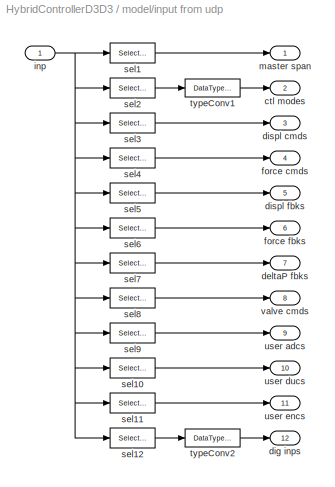
BLOCK [SubSystem] model/input from udp
  FunctionWithSeparateData = off
  MaskHideContents = off
  MinAlgLoopOccurrences = off
  Opaque = off
  Ports = [1, 12]
  PropExecContextOutsideSubsystem = off
  RTWSystemCode = Auto
  RequestExecContextInheritance = off
  SID = 605
BLOCK [Outport] model/input from udp/ctl modes
  IconDisplay = Port number
  OutDataType = sfix(16)
  OutScaling = 2^0
  Port = 2
  SID = 622
BLOCK [Outport] model/input from udp/deltaP fbks
  IconDisplay = Port number
  OutDataType = sfix(16)
  OutScaling = 2^0
  Port = 7
  SID = 627
BLOCK [Outport] model/input from udp/dig inps
  IconDisplay = Port number
  OutDataType = sfix(16)
  OutScaling = 2^0
  Port = 12
  SID = 632
BLOCK [Outport] model/input from udp/displ cmds
  IconDisplay = Port number
  OutDataType = sfix(16)
  OutScaling = 2^0
  Port = 3
  SID = 623
BLOCK [Outport] model/input from udp/displ fbks
  IconDisplay = Port number
  OutDataType = sfix(16)
  OutScaling = 2^0
  Port = 5
  SID = 625
BLOCK [Outport] model/input from udp/force cmds
  IconDisplay = Port number
  OutDataType = sfix(16)
  OutScaling = 2^0
  Port = 4
  SID = 624
BLOCK [Outport] model/input from udp/force fbks
  IconDisplay = Port number
  OutDataType = sfix(16)
  OutScaling = 2^0
  Port = 6
  SID = 626
BLOCK [Inport] model/input from udp/inp
  IconDisplay = Port number
  OutDataType = sfix(16)
  OutScaling = 2^0
  SID = 606
BLOCK [Outport] model/input from udp/master span
  IconDisplay = Port number
  OutDataType = sfix(16)
  OutScaling = 2^0
  SID = 621
BLOCK [Selector] model/input from udp/sel1
  IndexOptions = Index vector (dialog)
  Indices = [0]+1
  InputPortWidth = nUDPOut
  OutputSizes = 1
  Ports = [1, 1]
  SID = 607
BLOCK [Selector] model/input from udp/sel10
  IndexOptions = Index vector (dialog)
  Indices = [1:nDucU]+1+7*nAct+nAdcU
  InputPortWidth = nUDPOut
  OutputSizes = 1
  Ports = [1, 1]
  SID = 608
BLOCK [Selector] model/input from udp/sel11
  IndexOptions = Index vector (dialog)
  Indices = [1:nEncU]+1+7*nAct+nAdcU+nDucU
  InputPortWidth = nUDPOut
  OutputSizes = 1
  Ports = [1, 1]
  SID = 609
BLOCK [Selector] model/input from udp/sel12
  IndexOptions = Index vector (dialog)
  Indices = [1:nDinp]+1+7*nAct+nAdcU+nDucU+nEncU
  InputPortWidth = nUDPOut
  OutputSizes = 1
  Ports = [1, 1]
  SID = 610
BLOCK [Selector] model/input from udp/sel2
  IndexOptions = Index vector (dialog)
  Indices = [1:nAct]+1+0*nAct
  InputPortWidth = nUDPOut
  OutputSizes = 1
  Ports = [1, 1]
  SID = 611
BLOCK [Selector] model/input from udp/sel3
  IndexOptions = Index vector (dialog)
  Indices = [1:nAct]+1+1*nAct
  InputPortWidth = nUDPOut
  OutputSizes = 1
  Ports = [1, 1]
  SID = 612
BLOCK [Selector] model/input from udp/sel4
  IndexOptions = Index vector (dialog)
  Indices = [1:nAct]+1+2*nAct
  InputPortWidth = nUDPOut
  OutputSizes = 1
  Ports = [1, 1]
  SID = 613
BLOCK [Selector] model/input from udp/sel5
  IndexOptions = Index vector (dialog)
  Indices = [1:nAct]+1+3*nAct
  InputPortWidth = nUDPOut
  OutputSizes = 1
  Ports = [1, 1]
  SID = 614
BLOCK [Selector] model/input from udp/sel6
  IndexOptions = Index vector (dialog)
  Indices = [1:nAct]+1+4*nAct
  InputPortWidth = nUDPOut
  OutputSizes = 1
  Ports = [1, 1]
  SID = 615
BLOCK [Selector] model/input from udp/sel7
  IndexOptions = Index vector (dialog)
  Indices = [1:nAct]+1+5*nAct
  InputPortWidth = nUDPOut
  OutputSizes = 1
  Ports = [1, 1]
  SID = 616
BLOCK [Selector] model/input from udp/sel8
  IndexOptions = Index vector (dialog)
  Indices = [1:nAct]+1+6*nAct
  InputPortWidth = nUDPOut
  OutputSizes = 1
  Ports = [1, 1]
  SID = 617
BLOCK [Selector] model/input from udp/sel9
  IndexOptions = Index vector (dialog)
  Indices = [1:nAdcU]+1+7*nAct
  InputPortWidth = nUDPOut
  OutputSizes = 1
  Ports = [1, 1]
  SID = 618
BLOCK [DataTypeConversion] model/input from udp/typeConv1
  OutDataType = sfix(16)
  OutDataTypeMode = uint32
  OutDataTypeStr = uint32
  OutScaling = 2^0
  SID = 619
BLOCK [DataTypeConversion] model/input from udp/typeConv2
  OutDataType = sfix(16)
  OutDataTypeMode = uint32
  OutDataTypeStr = uint32
  OutScaling = 2^0
  SID = 620
BLOCK [Outport] model/input from udp/user adcs
  IconDisplay = Port number
  OutDataType = sfix(16)
  OutScaling = 2^0
  Port = 9
  SID = 629
BLOCK [Outport] model/input from udp/user ducs
  IconDisplay = Port number
  OutDataType = sfix(16)
  OutScaling = 2^0
  Port = 10
  SID = 630
BLOCK [Outport] model/input from udp/user encs
  IconDisplay = Port number
  OutDataType = sfix(16)
  OutScaling = 2^0
  Port = 11
  SID = 631
BLOCK [Outport] model/input from udp/valve cmds
  IconDisplay = Port number
  OutDataType = sfix(16)
  OutScaling = 2^0
  Port = 8
  SID = 628
BLOCK [Constant] model/master span
  OutDataType = sfix(16)
  OutScaling = 2^0
  SID = 633
  Value = 0
BLOCK [SubSystem] model/output to udp
  FunctionWithSeparateData = off
  MaskHideContents = off
  MinAlgLoopOccurrences = off
  Opaque = off
  Ports = [11, 1]
  PropExecContextOutsideSubsystem = off
  RTWSystemCode = Auto
  RequestExecContextInheritance = off
  SID = 634
BLOCK [Mux] model/output to udp/Mux
  DisplayOption = bar
  Inputs = 11
  Ports = [11, 1]
  SID = 646
BLOCK [Inport] model/output to udp/ctl modes
  IconDisplay = Port number
  OutDataType = sfix(16)
  OutScaling = 2^0
  Port = 2
  SID = 636
BLOCK [Inport] model/output to udp/deltaP fbks
  IconDisplay = Port number
  OutDataType = sfix(16)
  OutScaling = 2^0
  Port = 7
  SID = 641
BLOCK [Inport] model/output to udp/dig outs
  IconDisplay = Port number
  OutDataType = sfix(16)
  OutScaling = 2^0
  Port = 11
  SID = 645
BLOCK [Inport] model/output to udp/displ cmds
  IconDisplay = Port number
  OutDataType = sfix(16)
  OutScaling = 2^0
  Port = 3
  SID = 637
BLOCK [Inport] model/output to udp/displ fbks
  IconDisplay = Port number
  OutDataType = sfix(16)
  OutScaling = 2^0
  Port = 5
  SID = 639
BLOCK [Inport] model/output to udp/force cmds
  IconDisplay = Port number
  OutDataType = sfix(16)
  OutScaling = 2^0
  Port = 4
  SID = 638
BLOCK [Inport] model/output to udp/force fbks
  IconDisplay = Port number
  OutDataType = sfix(16)
  OutScaling = 2^0
  Port = 6
  SID = 640
BLOCK [Inport] model/output to udp/master span
  IconDisplay = Port number
  OutDataType = sfix(16)
  OutScaling = 2^0
  SID = 635
BLOCK [Outport] model/output to udp/out
  IconDisplay = Port number
  OutDataType = sfix(16)
  OutScaling = 2^0
  SID = 649
BLOCK [DataTypeConversion] model/output to udp/typeConv1
  OutDataType = sfix(16)
  OutDataTypeMode = double
  OutDataTypeStr = double
  OutScaling = 2^0
  SID = 647
BLOCK [DataTypeConversion] model/output to udp/typeConv2
  OutDataType = sfix(16)
  OutDataTypeMode = double
  OutDataTypeStr = double
  OutScaling = 2^0
  SID = 648
BLOCK [Inport] model/output to udp/user adcs
  IconDisplay = Port number
  OutDataType = sfix(16)
  OutScaling = 2^0
  Port = 8
  SID = 642
BLOCK [Inport] model/output to udp/user ducs
  IconDisplay = Port number
  OutDataType = sfix(16)
  OutScaling = 2^0
  Port = 9
  SID = 643
BLOCK [Inport] model/output to udp/user encs
  IconDisplay = Port number
  OutDataType = sfix(16)
  OutScaling = 2^0
  Port = 10
  SID = 644
BLOCK [SubSystem] model/simPC HC
  FunctionWithSeparateData = off
  MaskCallbackString = |||||
  MaskDescription = Hybrid Controller using C0-continuous cubic Lagrange interpolation for prediction and correction
  MaskDisplay = disp('simPC Target\\nHybrid Controller\\n(D3/D3)')
  MaskEnableString = on,on,on,on,on,on
  MaskHideContents = off
  MaskIconFrame = on
  MaskIconOpaque = on
  MaskIconRotate = none
  MaskIconUnits = autoscale
  MaskPortRotate = default
  MaskPromptString = Number of Actuators: nAct|Integration time step: dtInt|Simulation time step: dtSim|Controller time step: dtCon|Maximum number of substeps: N|Number of delay steps: iDelay
  MaskStyleString = edit,edit,edit,edit,edit,edit
  MaskToolTipString = on,on,on,on,on,on
  MaskTunableValueString = off,on,on,on,on,on
  MaskType = Hybrid Controller: D3/D3
  MaskValueString = 1|HybridCtrlParameters.dtInt|HybridCtrlParameters.dtSim|HybridCtrlParameters.dtCon|HybridCtrlParameters.N|HybridCtrlParameters.iDelay
  MaskVariables = nAct=@1;dtInt=@2;dtSim=@3;dtCon=@4;N=@5;iDelay=@6;
  MaskVisibilityString = on,on,on,on,on,on
  MinAlgLoopOccurrences = off
  Opaque = off
  Ports = [2, 1]
  PropExecContextOutsideSubsystem = off
  RTWSystemCode = Auto
  RequestExecContextInheritance = off
  SID = 650
BLOCK [Mux] model/simPC HC/Mux1
  DisplayOption = bar
  Inputs = 3
  Ports = [3, 1]
  SID = 653
BLOCK [SubSystem] model/simPC HC/Predictor-Corrector
  FunctionWithSeparateData = off
  MaskDisplay = plot(sf('Private','sfblk','xIcon'),sf('Private','sfblk','yIcon'));text(0.5,0,sf('Private', 'sfblk', 'tIcon'),'HorizontalAl','Center','VerticalAl','Bottom');
  MaskHideContents = off
  MaskIconFrame = off
  MaskIconOpaque = off
  MaskIconRotate = none
  MaskIconUnits = autoscale
  MaskPortRotate = default
  MaskSelfModifiable = on
  MaskType = Stateflow
  MinAlgLoopOccurrences = off
  Opaque = off
  PermitHierarchicalResolution = ExplicitOnly
  Ports = [2, 3]
  PropExecContextOutsideSubsystem = off
  RTWSystemCode = Auto
  RequestExecContextInheritance = off
  SID = 654
  TreatAsAtomicUnit = on
BLOCK [Demux] model/simPC HC/Predictor-Corrector/ Demux 
  Outputs = 1
  Ports = [1, 1]
  SID = 14
BLOCK [S-Function] model/simPC HC/Predictor-Corrector/ SFunction 
  EnableBusSupport = on
  FunctionName = sf_sfun
  Parameters = N,nAct
  PortCounts = [2 4]
  Ports = [2, 4]
  SID = 13
  Tag = Stateflow S-Function HybridControllerD3D3 2
BLOCK [Terminator] model/simPC HC/Predictor-Corrector/ Terminator 
  SID = 16
BLOCK [Outport] model/simPC HC/Predictor-Corrector/com
  IconDisplay = Port number
  OutDataType = sfix(16)
  OutScaling = 2^0
  SID = 6
BLOCK [Inport] model/simPC HC/Predictor-Corrector/dsp
  IconDisplay = Port number
  OutDataType = sfix(16)
  OutScaling = 2^0
  SID = 1
BLOCK [Inport] model/simPC HC/Predictor-Corrector/flag
  IconDisplay = Port number
  OutDataType = sfix(16)
  OutScaling = 2^0
  Port = 2
  SID = 2
BLOCK [Outport] model/simPC HC/Predictor-Corrector/i
  IconDisplay = Port number
  OutDataType = sfix(16)
  OutScaling = 2^0
  Port = 3
  SID = 8
BLOCK [Outport] model/simPC HC/Predictor-Corrector/state
  IconDisplay = Port number
  OutDataType = sfix(16)
  OutScaling = 2^0
  Port = 2
  SID = 7
BLOCK [S-Function] model/simPC HC/S-Function
  EnableBusSupport = off
  FunctionName = SFun_OPFConnect
  MaskDisplay = disp('OpenFresco\\nConnect');
  MaskEnableString = on
  MaskIconFrame = on
  MaskIconOpaque = on
  MaskIconRotate = none
  MaskIconUnits = autoscale
  MaskPortRotate = default
  MaskPromptString = IP Port Number of Server
  MaskStyleString = edit
  MaskToolTipString = on
  MaskTunableValueString = off
  MaskType = OpenFresco Connect
  MaskValueString = 8090
  MaskVariables = ipPort=@1;
  MaskVisibilityString = on
  Parameters = ipPort
  Ports = [4, 2]
  SID = 655
BLOCK [Scope] model/simPC HC/Scope1
  DataFormat = StructureWithTime
  Floating = off
  LimitDataPoints = off
  NumInputPorts = 1
  Ports = [1]
  SID = 656
  SampleTime = 0
  SaveName = ScopeData3
  TimeRange = 250
  YMax = 2.5
  YMin = -2
BLOCK [Scope] model/simPC HC/Scope2
  DataFormat = StructureWithTime
  Floating = off
  LimitDataPoints = off
  NumInputPorts = 1
  Ports = [1]
  SID = 657
  SampleTime = 0
  SaveName = ScopeData2
  TimeRange = 250
  YMax = 2
  YMin = 0
BLOCK [SubSystem] model/simPC HC/SubSystem0
  FunctionWithSeparateData = off
  MaskHideContents = off
  MinAlgLoopOccurrences = off
  Opaque = off
  Ports = [1, 1]
  PropExecContextOutsideSubsystem = off
  RTWSystemCode = Auto
  RequestExecContextInheritance = off
  SID = 658
BLOCK [Reference] model/simPC HC/SubSystem0/Detect Fall\nNonpositive  REF=simulink/Logic and Bit\nOperations/Detect Fall\nNonpositive
  FunctionWithSeparateData = off
  Ports = [1, 1]
  RTWMemSecDataConstants = Inherit from model
  RTWMemSecDataInternal = Inherit from model
  RTWMemSecDataParameters = Inherit from model
  RTWMemSecFuncExecute = Inherit from model
  RTWMemSecFuncInitTerm = Inherit from model
  SID = 660
  ShowPortLabels = FromPortIcon
  SourceBlock = simulink/Logic and Bit\nOperations/Detect Fall\nNonpositive
  SourceType = Detect Fall Nonpositive
  SystemSampleTime = -1
  vinit = 0
BLOCK [Reference] model/simPC HC/SubSystem0/Detect Rise\nPositive  REF=simulink/Logic and Bit\nOperations/Detect Rise\nPositive
  FunctionWithSeparateData = off
  Ports = [1, 1]
  RTWMemSecDataConstants = Inherit from model
  RTWMemSecDataInternal = Inherit from model
  RTWMemSecDataParameters = Inherit from model
  RTWMemSecFuncExecute = Inherit from model
  RTWMemSecFuncInitTerm = Inherit from model
  SID = 661
  ShowPortLabels = FromPortIcon
  SourceBlock = simulink/Logic and Bit\nOperations/Detect Rise\nPositive
  SourceType = Detect Rise Positive
  SystemSampleTime = -1
  vinit = 0
BLOCK [SubSystem] model/simPC HC/SubSystem0/If Action\nSubsystem0
  FunctionWithSeparateData = off
  MaskHideContents = off
  MinAlgLoopOccurrences = off
  Opaque = off
  Ports = [0, 0, 0, 0, 0, 0, 0, 1]
  PropExecContextOutsideSubsystem = off
  RTWSystemCode = Auto
  RequestExecContextInheritance = off
  SID = 662
  TreatAsAtomicUnit = on
BLOCK [ActionPort] model/simPC HC/SubSystem0/If Action\nSubsystem0/Action Port
  ActionType = then
  PropagateVarSize = During execution
  SID = 663
BLOCK [DataStoreWrite] model/simPC HC/SubSystem0/If Action\nSubsystem0/Data Store\nWrite0
  DataStoreName = sFlag
  SID = 664
  SampleTime = -1
BLOCK [DataStoreWrite] model/simPC HC/SubSystem0/If Action\nSubsystem0/Data Store\nWrite1
  DataStoreName = tFlag
  SID = 665
  SampleTime = -1
BLOCK [Constant] model/simPC HC/SubSystem0/If Action\nSubsystem0/atTargetFlag
  OutDataType = sfix(16)
  OutScaling = 2^0
  SID = 666
  SampleTime = -1
  Value = 0
BLOCK [Constant] model/simPC HC/SubSystem0/If Action\nSubsystem0/switchFlag
  OutDataType = sfix(16)
  OutScaling = 2^0
  SID = 667
  SampleTime = -1
BLOCK [SubSystem] model/simPC HC/SubSystem0/If Action\nSubsystem1
  FunctionWithSeparateData = off
  MaskHideContents = off
  MinAlgLoopOccurrences = off
  Opaque = off
  Ports = [0, 0, 0, 0, 0, 0, 0, 1]
  PropExecContextOutsideSubsystem = off
  RTWSystemCode = Auto
  RequestExecContextInheritance = off
  SID = 668
  TreatAsAtomicUnit = on
BLOCK [ActionPort] model/simPC HC/SubSystem0/If Action\nSubsystem1/Action Port
  ActionType = then
  PropagateVarSize = During execution
  SID = 669
BLOCK [DataStoreWrite] model/simPC HC/SubSystem0/If Action\nSubsystem1/Data Store\nWrite0
  DataStoreName = sFlag
  SID = 670
  SampleTime = -1
BLOCK [Constant] model/simPC HC/SubSystem0/If Action\nSubsystem1/switchFlag
  OutDataType = sfix(16)
  OutScaling = 2^0
  SID = 671
  SampleTime = -1
  Value = 0
BLOCK [If] model/simPC HC/SubSystem0/If0
  IfExpression = u1 == 1
  Ports = [1, 1]
  SID = 672
  ShowElse = off
BLOCK [If] model/simPC HC/SubSystem0/If1
  IfExpression = u1 == 1
  Ports = [1, 1]
  SID = 673
  ShowElse = off
BLOCK [Inport] model/simPC HC/SubSystem0/In
  IconDisplay = Port number
  OutDataType = sfix(16)
  OutScaling = 2^0
  SID = 659
BLOCK [Mux] model/simPC HC/SubSystem0/Mux1
  DisplayOption = bar
  Inputs = 3
  Ports = [3, 1]
  SID = 674
BLOCK [Outport] model/simPC HC/SubSystem0/Out
  IconDisplay = Port number
  OutDataType = sfix(16)
  OutScaling = 2^0
  SID = 679
BLOCK [Scope] model/simPC HC/SubSystem0/Scope3
  DataFormat = StructureWithTime
  Floating = off
  LimitDataPoints = off
  NumInputPorts = 1
  Ports = [1]
  SID = 675
  SampleTime = 0
  TimeRange = 250
  YMax = 1
  YMin = 0
BLOCK [DataStoreRead] model/simPC HC/SubSystem0/atTarget1
  DataStoreName = tFlag
  SID = 676
  SampleTime = -1
BLOCK [DataStoreRead] model/simPC HC/SubSystem0/switchPC1
  DataStoreName = sFlag
  SID = 677
  SampleTime = -1
BLOCK [DataTypeConversion] model/simPC HC/SubSystem0/typeConv
  OutDataType = sfix(16)
  OutDataTypeMode = double
  OutDataTypeStr = double
  OutScaling = 2^0
  SID = 678
BLOCK [SubSystem] model/simPC HC/SubSystem1
  FunctionWithSeparateData = off
  MaskHideContents = off
  MinAlgLoopOccurrences = off
  Opaque = off
  Ports = [3, 2]
  PropExecContextOutsideSubsystem = off
  RTWSystemCode = Auto
  RequestExecContextInheritance = off
  SID = 680
BLOCK [SubSystem] model/simPC HC/SubSystem1/SubSystem
  FunctionWithSeparateData = off
  MaskHideContents = off
  MinAlgLoopOccurrences = off
  Opaque = off
  Ports = [2, 2, 0, 1]
  PropExecContextOutsideSubsystem = off
  RTWSystemCode = Auto
  RequestExecContextInheritance = off
  SID = 685
  TreatAsAtomicUnit = on
BLOCK [DataStoreWrite] model/simPC HC/SubSystem1/SubSystem/Data Store\nWrite
  DataStoreName = tFlag
  SID = 689
  SampleTime = -1
BLOCK [TriggerPort] model/simPC HC/SubSystem1/SubSystem/Trigger
  Ports = []
  SID = 688
  StatesWhenEnabling = held
BLOCK [Constant] model/simPC HC/SubSystem1/SubSystem/atTargetFlag
  OutDataType = sfix(16)
  OutScaling = 2^0
  SID = 690
  SampleTime = -1
BLOCK [Inport] model/simPC HC/SubSystem1/SubSystem/measDsp In
  IconDisplay = Port number
  OutDataType = sfix(16)
  OutScaling = 2^0
  SID = 686
BLOCK [Outport] model/simPC HC/SubSystem1/SubSystem/measDsp Out
  IconDisplay = Port number
  InitialOutput = [0]
  OutDataType = sfix(16)
  OutScaling = 2^0
  SID = 691
BLOCK [Inport] model/simPC HC/SubSystem1/SubSystem/measFrc In
  IconDisplay = Port number
  OutDataType = sfix(16)
  OutScaling = 2^0
  Port = 2
  SID = 687
BLOCK [Outport] model/simPC HC/SubSystem1/SubSystem/measFrc Out
  IconDisplay = Port number
  InitialOutput = [0]
  OutDataType = sfix(16)
  OutScaling = 2^0
  Port = 2
  SID = 692
BLOCK [SubSystem] model/simPC HC/SubSystem1/Subsystem
  FunctionWithSeparateData = off
  MaskHideContents = off
  MinAlgLoopOccurrences = off
  Opaque = off
  Ports = [1, 1]
  PropExecContextOutsideSubsystem = off
  RTWSystemCode = Auto
  RequestExecContextInheritance = off
  SID = 1406
BLOCK [Sum] model/simPC HC/SubSystem1/Subsystem/Add
  InputSameDT = off
  OutDataType = fixdt(1, 16)
  OutDataTypeMode = Inherit via internal rule
  OutDataTypeStr = Inherit: Inherit via internal rule
  OutScaling = 2^-10
  Ports = [2, 1]
  SID = 1408
  SaturateOnIntegerOverflow = off
BLOCK [Constant] model/simPC HC/SubSystem1/Subsystem/Constant
  OutDataType = fixdt(1, 16)
  OutScaling = 2^0
  SID = 1409
  Value = iDelay
BLOCK [Constant] model/simPC HC/SubSystem1/Subsystem/Constant1
  OutDataType = fixdt(1, 16)
  OutScaling = 2^0
  SID = 1410
  Value = N
BLOCK [If] model/simPC HC/SubSystem1/Subsystem/If
  IfExpression = u1 == 0
  Ports = [1, 2]
  SID = 1411
BLOCK [SubSystem] model/simPC HC/SubSystem1/Subsystem/If Action\nSubsystem1
  FunctionWithSeparateData = off
  MaskHideContents = off
  MinAlgLoopOccurrences = off
  Opaque = off
  Ports = [2, 1, 0, 0, 0, 0, 0, 1]
  PropExecContextOutsideSubsystem = off
  RTWSystemCode = Auto
  RequestExecContextInheritance = off
  SID = 1412
  TreatAsAtomicUnit = on
BLOCK [ActionPort] model/simPC HC/SubSystem1/Subsystem/If Action\nSubsystem1/Action Port
  ActionType = then
  SID = 1415
BLOCK [Inport] model/simPC HC/SubSystem1/Subsystem/If Action\nSubsystem1/In1
  IconDisplay = Port number
  OutDataType = fixdt(1, 16)
  OutScaling = 2^0
  SID = 1413
BLOCK [Inport] model/simPC HC/SubSystem1/Subsystem/If Action\nSubsystem1/In2
  IconDisplay = Port number
  OutDataType = fixdt(1, 16)
  OutScaling = 2^0
  Port = 2
  SID = 1414
BLOCK [Outport] model/simPC HC/SubSystem1/Subsystem/If Action\nSubsystem1/Out1
  IconDisplay = Port number
  OutDataType = fixdt(1, 16)
  OutScaling = 2^0
  SID = 1417
BLOCK [RelationalOperator] model/simPC HC/SubSystem1/Subsystem/If Action\nSubsystem1/Relational\nOperator
  InputSameDT = off
  LogicDataType = fixdt(0, 8)
  LogicOutDataTypeMode = boolean
  Operator = ==
  OutDataTypeStr = boolean
  Ports = [2, 1]
  SID = 1416
BLOCK [SubSystem] model/simPC HC/SubSystem1/Subsystem/If Action\nSubsystem2
  FunctionWithSeparateData = off
  MaskHideContents = off
  MinAlgLoopOccurrences = off
  Opaque = off
  Ports = [2, 1, 0, 0, 0, 0, 0, 1]
  PropExecContextOutsideSubsystem = off
  RTWSystemCode = Auto
  RequestExecContextInheritance = off
  SID = 1418
  TreatAsAtomicUnit = on
BLOCK [ActionPort] model/simPC HC/SubSystem1/Subsystem/If Action\nSubsystem2/Action Port
  ActionType = else
  SID = 1421
BLOCK [Inport] model/simPC HC/SubSystem1/Subsystem/If Action\nSubsystem2/In1
  IconDisplay = Port number
  OutDataType = fixdt(1, 16)
  OutScaling = 2^0
  SID = 1419
BLOCK [Inport] model/simPC HC/SubSystem1/Subsystem/If Action\nSubsystem2/In2
  IconDisplay = Port number
  OutDataType = fixdt(1, 16)
  OutScaling = 2^0
  Port = 2
  SID = 1420
BLOCK [Outport] model/simPC HC/SubSystem1/Subsystem/If Action\nSubsystem2/Out1
  IconDisplay = Port number
  OutDataType = fixdt(1, 16)
  OutScaling = 2^0
  SID = 1423
BLOCK [RelationalOperator] model/simPC HC/SubSystem1/Subsystem/If Action\nSubsystem2/Relational\nOperator
  InputSameDT = off
  LogicDataType = fixdt(0, 8)
  LogicOutDataTypeMode = boolean
  Operator = ==
  OutDataTypeStr = boolean
  Ports = [2, 1]
  SID = 1422
BLOCK [Inport] model/simPC HC/SubSystem1/Subsystem/i
  IconDisplay = Port number
  SID = 1407
BLOCK [Outport] model/simPC HC/SubSystem1/Subsystem/trig
  IconDisplay = Port number
  SID = 1424
BLOCK [Inport] model/simPC HC/SubSystem1/counter
  IconDisplay = Port number
  OutDataType = sfix(16)
  OutScaling = 2^0
  SID = 681
BLOCK [Inport] model/simPC HC/SubSystem1/measDsp In
  IconDisplay = Port number
  OutDataType = sfix(16)
  OutScaling = 2^0
  Port = 2
  SID = 682
BLOCK [Outport] model/simPC HC/SubSystem1/measDsp Out
  IconDisplay = Port number
  OutDataType = sfix(16)
  OutScaling = 2^0
  SID = 693
BLOCK [Inport] model/simPC HC/SubSystem1/measFrc In
  IconDisplay = Port number
  OutDataType = sfix(16)
  OutScaling = 2^0
  Port = 3
  SID = 683
BLOCK [Outport] model/simPC HC/SubSystem1/measFrc Out
  IconDisplay = Port number
  OutDataType = sfix(16)
  OutScaling = 2^0
  Port = 2
  SID = 694
BLOCK [SubSystem] model/simPC HC/Subsystem
  FunctionWithSeparateData = off
  MaskDisplay = disp('I/O')
  MaskHideContents = off
  MaskIconFrame = on
  MaskIconOpaque = on
  MaskIconRotate = none
  MaskIconUnits = autoscale
  MaskPortRotate = default
  MinAlgLoopOccurrences = off
  Opaque = off
  Ports = [1, 1]
  PropExecContextOutsideSubsystem = off
  RTWSystemCode = Auto
  RequestExecContextInheritance = off
  SID = 1435
BLOCK [Mux] model/simPC HC/Subsystem/Dummy Aug
  DisplayOption = bar
  Inputs = [nAct 1]
  Ports = [2, 1]
  SID = 1437
BLOCK [Constant] model/simPC HC/Subsystem/Dummy Zero
  OutDataType = sfix(16)
  OutDataTypeMode = double
  OutDataTypeStr = double
  OutScaling = 2^0
  SID = 1438
  SampleTime = -1
  Value = 0
BLOCK [Inport] model/simPC HC/Subsystem/I
  IconDisplay = Port number
  PortDimensions = nAct
  SID = 1436
BLOCK [Outport] model/simPC HC/Subsystem/O
  IconDisplay = Port number
  PortDimensions = nAct+1
  SID = 1439
BLOCK [SubSystem] model/simPC HC/Subsystem1
  FunctionWithSeparateData = off
  MaskDisplay = disp('I/O')
  MaskHideContents = off
  MaskIconFrame = on
  MaskIconOpaque = on
  MaskIconRotate = none
  MaskIconUnits = autoscale
  MaskPortRotate = default
  MinAlgLoopOccurrences = off
  Opaque = off
  Ports = [1, 1]
  PropExecContextOutsideSubsystem = off
  RTWSystemCode = Auto
  RequestExecContextInheritance = off
  SID = 1450
BLOCK [Demux] model/simPC HC/Subsystem1/Dummy Trn
  DisplayOption = bar
  Outputs = [nAct 1]
  Ports = [1, 2]
  SID = 1452
BLOCK [Inport] model/simPC HC/Subsystem1/In
  IconDisplay = Port number
  PortDimensions = nAct+1
  SID = 1451
BLOCK [Outport] model/simPC HC/Subsystem1/Out
  IconDisplay = Port number
  PortDimensions = nAct
  SID = 1454
BLOCK [Terminator] model/simPC HC/Subsystem1/Terminator3
  SID = 1453
BLOCK [DataStoreRead] model/simPC HC/atTarget1
  DataStoreName = tFlag
  SID = 695
  SampleTime = -1
BLOCK [Inport] model/simPC HC/dspIn
  IconDisplay = Port number
  OutDataType = sfix(16)
  OutScaling = 2^0
  SID = 651
BLOCK [Outport] model/simPC HC/dspOut
  IconDisplay = Port number
  OutDataType = sfix(16)
  OutScaling = 2^0
  SID = 707
BLOCK [Inport] model/simPC HC/frcIn
  IconDisplay = Port number
  OutDataType = sfix(16)
  OutScaling = 2^0
  Port = 2
  SID = 652
BLOCK [Gain] model/simPC HC/gain1
  OutDataType = sfix(16)
  OutDataTypeMode = Inherit via internal rule
  OutDataTypeStr = Inherit: Inherit via internal rule
  OutScaling = 2^0
  ParamDataTypeStr = Inherit: Inherit via internal rule
  ParameterDataType = sfix(16)
  ParameterDataTypeMode = Inherit via internal rule
  ParameterScaling = 2^0
  SID = 696
  SaturateOnIntegerOverflow = off
BLOCK [Gain] model/simPC HC/gain2
  OutDataType = sfix(16)
  OutDataTypeMode = Inherit via internal rule
  OutDataTypeStr = Inherit: Inherit via internal rule
  OutScaling = 2^0
  ParamDataTypeStr = Inherit: Inherit via internal rule
  ParameterDataType = sfix(16)
  ParameterDataTypeMode = Inherit via internal rule
  ParameterScaling = 2^0
  SID = 697
  SaturateOnIntegerOverflow = off
BLOCK [DataStoreMemory] model/simPC HC/nMem
  DataStoreName = nFlag
  DataType = double
  OutDataType = sfix(16)
  OutDataTypeStr = double
  OutScaling = 2^0
  RTWStateStorageClass = Auto
  SID = 698
  SignalType = real
  VectorParams1D = on
BLOCK [DataStoreRead] model/simPC HC/newTarget
  DataStoreName = nFlag
  SID = 699
  SampleTime = -1
BLOCK [DataStoreWrite] model/simPC HC/newTarget\nWrite
  DataStoreName = nFlag
  SID = 700
  SampleTime = -1
BLOCK [DataStoreMemory] model/simPC HC/sMem
  DataStoreName = sFlag
  DataType = double
  OutDataType = sfix(16)
  OutDataTypeStr = double
  OutScaling = 2^0
  RTWStateStorageClass = Auto
  SID = 701
  SignalType = real
  VectorParams1D = on
BLOCK [DataStoreRead] model/simPC HC/switchPC1
  DataStoreName = sFlag
  SID = 702
  SampleTime = -1
BLOCK [DataStoreMemory] model/simPC HC/tMem
  DataStoreName = tFlag
  DataType = double
  OutDataType = sfix(16)
  OutDataTypeStr = double
  OutScaling = 2^0
  RTWStateStorageClass = Auto
  SID = 703
  SignalType = real
  VectorParams1D = on
BLOCK [DataStoreRead] model/simPC HC/targDsp
  DataStoreName = tDsp
  SID = 704
  SampleTime = -1
BLOCK [DataStoreWrite] model/simPC HC/targDsp\nWrite
  DataStoreName = tDsp
  SID = 705
  SampleTime = -1
BLOCK [DataStoreMemory] model/simPC HC/tdMem
  DataStoreName = tDsp
  DataType = double
  OutDataType = sfix(16)
  OutDataTypeStr = double
  OutScaling = 2^0
  RTWStateStorageClass = Auto
  SID = 706
  SignalType = real
  VectorParams1D = on
BLOCK [Terminator] model/term1
  SID = 708
BLOCK [Terminator] model/term10
  SID = 709
BLOCK [Terminator] model/term11
  SID = 710
BLOCK [Terminator] model/term12
  SID = 711
BLOCK [Terminator] model/term2
  SID = 712
BLOCK [Terminator] model/term3
  SID = 713
BLOCK [Terminator] model/term4
  SID = 714
BLOCK [Terminator] model/term5
  SID = 715
BLOCK [Terminator] model/term6
  SID = 716
BLOCK [Terminator] model/term7
  SID = 717
BLOCK [Terminator] model/term9
  SID = 718
BLOCK [Constant] model/user ADCs
  OutDataType = sfix(16)
  OutScaling = 2^0
  SID = 719
  Value = zeros(nAdcU, 1)
BLOCK [Constant] model/user DUCs
  OutDataType = sfix(16)
  OutScaling = 2^0
  SID = 720
  Value = zeros(nDucU, 1)
BLOCK [Constant] model/user ENCs
  OutDataType = sfix(16)
  OutScaling = 2^0
  SID = 721
  Value = zeros(nEncU, 1)
BLOCK [Inport] model/valveCmds
  IconDisplay = Port number
  OutDataType = sfix(16)
  OutScaling = 2^0
  SID = 3
ANNOTATION (root): UCB PC Simulation
ANNOTATION model: UCB PC Simulation
ANNOTATION model/ActuatorPayloadMdl/dynamic long channel #1/actuator//valve\n model: Auxiliary diagnostic output vector:\n1: valve opening\n2: C1 pressure\n3: C2 pressure\n4: delta pressure\n5: force\n6: velocity\n7: C1 flow\n8: C2 flow\n9: total flow\n10: kinematic flow\n11: compressibility flow\n12: leakage flow\n
ANNOTATION model/ActuatorPayloadMdl/dynamic long channel #1/actuator//valve\n model: Note: \"1\" and \"2\" denote actuator\ncylinders on either side of the\nactuator piston. With positive\nvalve drive, oil is ported into\ncylinder 1, resulting in positive\ndisplacement.
ANNOTATION model/ActuatorPayloadMdl/dynamic long channel #1/actuator//valve\n model: \nParameter vector:\n1: oil bulk modulus (force/displ^2)\n2: servovalve delay (sec)\n3: servovalve overlap\n4: rated pressure (force/displ^2)\n5: rated flow at rated pressure (displ^3/sec)\n6: nominal flow at rated pressure (displ^3/sec)\n7: actuator piston area 1 (displ^2)\n8: actuator piston area 2 (displ^2)\n9: actuator usable stroke 1 (displ)\n10: actuator usable stroke 2 (displ)\n11: actuator...<+399ch>
ANNOTATION model/ActuatorPayloadMdl/dynamic long channel #2/actuator//valve\n model: Auxiliary diagnostic output vector:\n1: valve opening\n2: C1 pressure\n3: C2 pressure\n4: delta pressure\n5: force\n6: velocity\n7: C1 flow\n8: C2 flow\n9: total flow\n10: kinematic flow\n11: compressibility flow\n12: leakage flow\n
ANNOTATION model/ActuatorPayloadMdl/dynamic long channel #2/actuator//valve\n model: Note: \"1\" and \"2\" denote actuator\ncylinders on either side of the\nactuator piston. With positive\nvalve drive, oil is ported into\ncylinder 1, resulting in positive\ndisplacement.
ANNOTATION model/ActuatorPayloadMdl/dynamic long channel #2/actuator//valve\n model: \nParameter vector:\n1: oil bulk modulus (force/displ^2)\n2: servovalve delay (sec)\n3: servovalve overlap\n4: rated pressure (force/displ^2)\n5: rated flow at rated pressure (displ^3/sec)\n6: nominal flow at rated pressure (displ^3/sec)\n7: actuator piston area 1 (displ^2)\n8: actuator piston area 2 (displ^2)\n9: actuator usable stroke 1 (displ)\n10: actuator usable stroke 2 (displ)\n11: actuator...<+399ch>
ANNOTATION model/ActuatorPayloadMdl/dynamic short channel #1/actuator//valve\n model: Auxiliary diagnostic output vector:\n1: valve opening\n2: C1 pressure\n3: C2 pressure\n4: delta pressure\n5: force\n6: velocity\n7: C1 flow\n8: C2 flow\n9: total flow\n10: kinematic flow\n11: compressibility flow\n12: leakage flow\n
ANNOTATION model/ActuatorPayloadMdl/dynamic short channel #1/actuator//valve\n model: Note: \"1\" and \"2\" denote actuator\ncylinders on either side of the\nactuator piston. With positive\nvalve drive, oil is ported into\ncylinder 1, resulting in positive\ndisplacement.
ANNOTATION model/ActuatorPayloadMdl/dynamic short channel #1/actuator//valve\n model: \nParameter vector:\n1: oil bulk modulus (force/displ^2)\n2: servovalve delay (sec)\n3: servovalve overlap\n4: rated pressure (force/displ^2)\n5: rated flow at rated pressure (displ^3/sec)\n6: nominal flow at rated pressure (displ^3/sec)\n7: actuator piston area 1 (displ^2)\n8: actuator piston area 2 (displ^2)\n9: actuator usable stroke 1 (displ)\n10: actuator usable stroke 2 (displ)\n11: actuator...<+399ch>
ANNOTATION model/ActuatorPayloadMdl/dynamic short channel #2/actuator//valve\n model: Auxiliary diagnostic output vector:\n1: valve opening\n2: C1 pressure\n3: C2 pressure\n4: delta pressure\n5: force\n6: velocity\n7: C1 flow\n8: C2 flow\n9: total flow\n10: kinematic flow\n11: compressibility flow\n12: leakage flow\n
ANNOTATION model/ActuatorPayloadMdl/dynamic short channel #2/actuator//valve\n model: Note: \"1\" and \"2\" denote actuator\ncylinders on either side of the\nactuator piston. With positive\nvalve drive, oil is ported into\ncylinder 1, resulting in positive\ndisplacement.
ANNOTATION model/ActuatorPayloadMdl/dynamic short channel #2/actuator//valve\n model: \nParameter vector:\n1: oil bulk modulus (force/displ^2)\n2: servovalve delay (sec)\n3: servovalve overlap\n4: rated pressure (force/displ^2)\n5: rated flow at rated pressure (displ^3/sec)\n6: nominal flow at rated pressure (displ^3/sec)\n7: actuator piston area 1 (displ^2)\n8: actuator piston area 2 (displ^2)\n9: actuator usable stroke 1 (displ)\n10: actuator usable stroke 2 (displ)\n11: actuator...<+399ch>
ANNOTATION model/ActuatorPayloadMdl/static channel #1/actuator//valve\n model: Auxiliary diagnostic output vector:\n1: valve opening\n2: C1 pressure\n3: C2 pressure\n4: delta pressure\n5: force\n6: velocity\n7: C1 flow\n8: C2 flow\n9: total flow\n10: kinematic flow\n11: compressibility flow\n12: leakage flow\n
ANNOTATION model/ActuatorPayloadMdl/static channel #1/actuator//valve\n model: Note: \"1\" and \"2\" denote actuator\ncylinders on either side of the\nactuator piston. With positive\nvalve drive, oil is ported into\ncylinder 1, resulting in positive\ndisplacement.
ANNOTATION model/ActuatorPayloadMdl/static channel #1/actuator//valve\n model: \nParameter vector:\n1: oil bulk modulus (force/displ^2)\n2: servovalve delay (sec)\n3: servovalve overlap\n4: rated pressure (force/displ^2)\n5: rated flow at rated pressure (displ^3/sec)\n6: nominal flow at rated pressure (displ^3/sec)\n7: actuator piston area 1 (displ^2)\n8: actuator piston area 2 (displ^2)\n9: actuator usable stroke 1 (displ)\n10: actuator usable stroke 2 (displ)\n11: actuator...<+399ch>
ANNOTATION model/ActuatorPayloadMdl/static channel #2/actuator//valve\n model: Auxiliary diagnostic output vector:\n1: valve opening\n2: C1 pressure\n3: C2 pressure\n4: delta pressure\n5: force\n6: velocity\n7: C1 flow\n8: C2 flow\n9: total flow\n10: kinematic flow\n11: compressibility flow\n12: leakage flow\n
ANNOTATION model/ActuatorPayloadMdl/static channel #2/actuator//valve\n model: Note: \"1\" and \"2\" denote actuator\ncylinders on either side of the\nactuator piston. With positive\nvalve drive, oil is ported into\ncylinder 1, resulting in positive\ndisplacement.
ANNOTATION model/ActuatorPayloadMdl/static channel #2/actuator//valve\n model: \nParameter vector:\n1: oil bulk modulus (force/displ^2)\n2: servovalve delay (sec)\n3: servovalve overlap\n4: rated pressure (force/displ^2)\n5: rated flow at rated pressure (displ^3/sec)\n6: nominal flow at rated pressure (displ^3/sec)\n7: actuator piston area 1 (displ^2)\n8: actuator piston area 2 (displ^2)\n9: actuator usable stroke 1 (displ)\n10: actuator usable stroke 2 (displ)\n11: actuator...<+399ch>
ANNOTATION model/ActuatorPayloadMdl/static channel #3/actuator//valve\n model: Auxiliary diagnostic output vector:\n1: valve opening\n2: C1 pressure\n3: C2 pressure\n4: delta pressure\n5: force\n6: velocity\n7: C1 flow\n8: C2 flow\n9: total flow\n10: kinematic flow\n11: compressibility flow\n12: leakage flow\n
ANNOTATION model/ActuatorPayloadMdl/static channel #3/actuator//valve\n model: Note: \"1\" and \"2\" denote actuator\ncylinders on either side of the\nactuator piston. With positive\nvalve drive, oil is ported into\ncylinder 1, resulting in positive\ndisplacement.
ANNOTATION model/ActuatorPayloadMdl/static channel #3/actuator//valve\n model: \nParameter vector:\n1: oil bulk modulus (force/displ^2)\n2: servovalve delay (sec)\n3: servovalve overlap\n4: rated pressure (force/displ^2)\n5: rated flow at rated pressure (displ^3/sec)\n6: nominal flow at rated pressure (displ^3/sec)\n7: actuator piston area 1 (displ^2)\n8: actuator piston area 2 (displ^2)\n9: actuator usable stroke 1 (displ)\n10: actuator usable stroke 2 (displ)\n11: actuator...<+399ch>
ANNOTATION model/ActuatorPayloadMdl/static channel #4/actuator//valve\n model: Auxiliary diagnostic output vector:\n1: valve opening\n2: C1 pressure\n3: C2 pressure\n4: delta pressure\n5: force\n6: velocity\n7: C1 flow\n8: C2 flow\n9: total flow\n10: kinematic flow\n11: compressibility flow\n12: leakage flow\n
ANNOTATION model/ActuatorPayloadMdl/static channel #4/actuator//valve\n model: Note: \"1\" and \"2\" denote actuator\ncylinders on either side of the\nactuator piston. With positive\nvalve drive, oil is ported into\ncylinder 1, resulting in positive\ndisplacement.
ANNOTATION model/ActuatorPayloadMdl/static channel #4/actuator//valve\n model: \nParameter vector:\n1: oil bulk modulus (force/displ^2)\n2: servovalve delay (sec)\n3: servovalve overlap\n4: rated pressure (force/displ^2)\n5: rated flow at rated pressure (displ^3/sec)\n6: nominal flow at rated pressure (displ^3/sec)\n7: actuator piston area 1 (displ^2)\n8: actuator piston area 2 (displ^2)\n9: actuator usable stroke 1 (displ)\n10: actuator usable stroke 2 (displ)\n11: actuator...<+399ch>
LINE controller:1 -> model:trigger
LINE controller:2 -> model:1
LINE model/ActuatorPayloadMdl/Demux:1 -> model/ActuatorPayloadMdl/dynamic short channel #1:1
LINE model/ActuatorPayloadMdl/Demux:2 -> model/ActuatorPayloadMdl/dynamic short channel #2:1
LINE model/ActuatorPayloadMdl/Demux:3 -> model/ActuatorPayloadMdl/dynamic long channel #1:1
LINE model/ActuatorPayloadMdl/Demux:4 -> model/ActuatorPayloadMdl/dynamic long channel #2:1
LINE model/ActuatorPayloadMdl/Demux:5 -> model/ActuatorPayloadMdl/static channel #1:1
LINE model/ActuatorPayloadMdl/Demux:6 -> model/ActuatorPayloadMdl/static channel #2:1
LINE model/ActuatorPayloadMdl/Demux:7 -> model/ActuatorPayloadMdl/static channel #3:1
LINE model/ActuatorPayloadMdl/Demux:8 -> model/ActuatorPayloadMdl/static channel #4:1
LINE model/ActuatorPayloadMdl/Mux1:1 -> model/ActuatorPayloadMdl/forceFbks:1
LINE model/ActuatorPayloadMdl/Mux2:1 -> model/ActuatorPayloadMdl/deltaPFbks:1
LINE model/ActuatorPayloadMdl/Mux:1 -> model/ActuatorPayloadMdl/displFbks:1
LINE model/ActuatorPayloadMdl/Sum:1 -> model/ActuatorPayloadMdl/accumulators:1
LINE model/ActuatorPayloadMdl/accumulators/Sum1:1 -> model/ActuatorPayloadMdl/accumulators/quotient:2
LINE model/ActuatorPayloadMdl/accumulators/Sum:1 -> model/ActuatorPayloadMdl/accumulators/flowCanon:1
NET model/ActuatorPayloadMdl/accumulators/bottle volume:1 -> model/ActuatorPayloadMdl/accumulators/Sum1:1, model/ActuatorPayloadMdl/accumulators/quotient:1
LINE model/ActuatorPayloadMdl/accumulators/flow:1 -> model/ActuatorPayloadMdl/accumulators/Sum:2
LINE model/ActuatorPayloadMdl/accumulators/flowCanon:1 -> model/ActuatorPayloadMdl/accumulators/integrator:1
LINE model/ActuatorPayloadMdl/accumulators/gas constant:1 -> model/ActuatorPayloadMdl/accumulators/power:2
LINE model/ActuatorPayloadMdl/accumulators/initial\ncondition:1 -> model/ActuatorPayloadMdl/accumulators/press:1
LINE model/ActuatorPayloadMdl/accumulators/integrator:1 -> model/ActuatorPayloadMdl/accumulators/Sum1:2
LINE model/ActuatorPayloadMdl/accumulators/power:1 -> model/ActuatorPayloadMdl/accumulators/precharge:1
LINE model/ActuatorPayloadMdl/accumulators/precharge:1 -> model/ActuatorPayloadMdl/accumulators/initial\ncondition:1
LINE model/ActuatorPayloadMdl/accumulators/pump flow:1 -> model/ActuatorPayloadMdl/accumulators/Sum:1
LINE model/ActuatorPayloadMdl/accumulators/quotient:1 -> model/ActuatorPayloadMdl/accumulators/power:1
NET model/ActuatorPayloadMdl/accumulators:1 -> model/ActuatorPayloadMdl/dynamic long channel #1:2, model/ActuatorPayloadMdl/dynamic long channel #2:2, model/ActuatorPayloadMdl/dynamic short channel #1:2, model/ActuatorPayloadMdl/dynamic short channel #2:2, model/ActuatorPayloadMdl/static channel #1:2, model/ActuatorPayloadMdl/static channel #2:2, model/ActuatorPayloadMdl/static channel #3:2, model/ActuatorPayloadMdl/static channel #4:2
LINE model/ActuatorPayloadMdl/dynamic long channel #1/actuator//valve\n model/abs:1 -> model/ActuatorPayloadMdl/dynamic long channel #1/actuator//valve\n model/flow:1
LINE model/ActuatorPayloadMdl/dynamic long channel #1/actuator//valve\n model/actuator:1 -> model/ActuatorPayloadMdl/dynamic long channel #1/actuator//valve\n model/force:1
LINE model/ActuatorPayloadMdl/dynamic long channel #1/actuator//valve\n model/actuator:2 -> model/ActuatorPayloadMdl/dynamic long channel #1/actuator//valve\n model/total flow sel:1
LINE model/ActuatorPayloadMdl/dynamic long channel #1/actuator//valve\n model/cmd:1 -> model/ActuatorPayloadMdl/dynamic long channel #1/actuator//valve\n model/actuator:1
LINE model/ActuatorPayloadMdl/dynamic long channel #1/actuator//valve\n model/displ:1 -> model/ActuatorPayloadMdl/dynamic long channel #1/actuator//valve\n model/actuator:2
LINE model/ActuatorPayloadMdl/dynamic long channel #1/actuator//valve\n model/rtn press:1 -> model/ActuatorPayloadMdl/dynamic long channel #1/actuator//valve\n model/actuator:5
LINE model/ActuatorPayloadMdl/dynamic long channel #1/actuator//valve\n model/spl press:1 -> model/ActuatorPayloadMdl/dynamic long channel #1/actuator//valve\n model/actuator:4
LINE model/ActuatorPayloadMdl/dynamic long channel #1/actuator//valve\n model/total flow sel:1 -> model/ActuatorPayloadMdl/dynamic long channel #1/actuator//valve\n model/abs:1
LINE model/ActuatorPayloadMdl/dynamic long channel #1/actuator//valve\n model/veloc:1 -> model/ActuatorPayloadMdl/dynamic long channel #1/actuator//valve\n model/actuator:3
NET model/ActuatorPayloadMdl/dynamic long channel #1/actuator//valve\n model:1 -> model/ActuatorPayloadMdl/dynamic long channel #1/dpforce:1, model/ActuatorPayloadMdl/dynamic long channel #1/force:1, model/ActuatorPayloadMdl/dynamic long channel #1/payload:1
LINE model/ActuatorPayloadMdl/dynamic long channel #1/actuator//valve\n model:2 -> model/ActuatorPayloadMdl/dynamic long channel #1/flow:1
LINE model/ActuatorPayloadMdl/dynamic long channel #1/payload/Sum:1 -> model/ActuatorPayloadMdl/dynamic long channel #1/payload/div:1
LINE model/ActuatorPayloadMdl/dynamic long channel #1/payload/damper:1 -> model/ActuatorPayloadMdl/dynamic long channel #1/payload/Sum:4
LINE model/ActuatorPayloadMdl/dynamic long channel #1/payload/div:1 -> model/ActuatorPayloadMdl/dynamic long channel #1/payload/double integrator:1
NET model/ActuatorPayloadMdl/dynamic long channel #1/payload/double integrator/accel:1 -> model/ActuatorPayloadMdl/dynamic long channel #1/payload/double integrator/acc:1, model/ActuatorPayloadMdl/dynamic long channel #1/payload/double integrator/veloc gen:1
NET model/ActuatorPayloadMdl/dynamic long channel #1/payload/double integrator/displ gen:1 -> model/ActuatorPayloadMdl/dynamic long channel #1/payload/double integrator/displ:1, model/ActuatorPayloadMdl/dynamic long channel #1/payload/double integrator/veloc gen:2
LINE model/ActuatorPayloadMdl/dynamic long channel #1/payload/double integrator/displ gen:2 -> model/ActuatorPayloadMdl/dynamic long channel #1/payload/double integrator/veloc gen:3
LINE model/ActuatorPayloadMdl/dynamic long channel #1/payload/double integrator/veloc gen/Constant1:1 -> model/ActuatorPayloadMdl/dynamic long channel #1/payload/double integrator/veloc gen/Relational\nOperator2:2
LINE model/ActuatorPayloadMdl/dynamic long channel #1/payload/double integrator/veloc gen/Constant2:1 -> model/ActuatorPayloadMdl/dynamic long channel #1/payload/double integrator/veloc gen/Switch:1
LINE model/ActuatorPayloadMdl/dynamic long channel #1/payload/double integrator/veloc gen/Constant3:1 -> model/ActuatorPayloadMdl/dynamic long channel #1/payload/double integrator/veloc gen/Relational\nOperator1:2
LINE model/ActuatorPayloadMdl/dynamic long channel #1/payload/double integrator/veloc gen/Constant4:1 -> model/ActuatorPayloadMdl/dynamic long channel #1/payload/double integrator/veloc gen/Relational\nOperator3:2
LINE model/ActuatorPayloadMdl/dynamic long channel #1/payload/double integrator/veloc gen/Constant:1 -> model/ActuatorPayloadMdl/dynamic long channel #1/payload/double integrator/veloc gen/Relational\nOperator:2
LINE model/ActuatorPayloadMdl/dynamic long channel #1/payload/double integrator/veloc gen/Logical\nOperator1:1 -> model/ActuatorPayloadMdl/dynamic long channel #1/payload/double integrator/veloc gen/Logical\nOperator2:2
LINE model/ActuatorPayloadMdl/dynamic long channel #1/payload/double integrator/veloc gen/Logical\nOperator2:1 -> model/ActuatorPayloadMdl/dynamic long channel #1/payload/double integrator/veloc gen/Switch:2
LINE model/ActuatorPayloadMdl/dynamic long channel #1/payload/double integrator/veloc gen/Logical\nOperator:1 -> model/ActuatorPayloadMdl/dynamic long channel #1/payload/double integrator/veloc gen/Logical\nOperator2:1
LINE model/ActuatorPayloadMdl/dynamic long channel #1/payload/double integrator/veloc gen/Relational\nOperator1:1 -> model/ActuatorPayloadMdl/dynamic long channel #1/payload/double integrator/veloc gen/Logical\nOperator:1
LINE model/ActuatorPayloadMdl/dynamic long channel #1/payload/double integrator/veloc gen/Relational\nOperator2:1 -> model/ActuatorPayloadMdl/dynamic long channel #1/payload/double integrator/veloc gen/Logical\nOperator1:2
LINE model/ActuatorPayloadMdl/dynamic long channel #1/payload/double integrator/veloc gen/Relational\nOperator3:1 -> model/ActuatorPayloadMdl/dynamic long channel #1/payload/double integrator/veloc gen/Logical\nOperator1:1
LINE model/ActuatorPayloadMdl/dynamic long channel #1/payload/double integrator/veloc gen/Relational\nOperator:1 -> model/ActuatorPayloadMdl/dynamic long channel #1/payload/double integrator/veloc gen/Logical\nOperator:2
LINE model/ActuatorPayloadMdl/dynamic long channel #1/payload/double integrator/veloc gen/Switch:1 -> model/ActuatorPayloadMdl/dynamic long channel #1/payload/double integrator/veloc gen/integ1:1
NET model/ActuatorPayloadMdl/dynamic long channel #1/payload/double integrator/veloc gen/accel:1 -> model/ActuatorPayloadMdl/dynamic long channel #1/payload/double integrator/veloc gen/Relational\nOperator1:1, model/ActuatorPayloadMdl/dynamic long channel #1/payload/double integrator/veloc gen/Relational\nOperator3:1, model/ActuatorPayloadMdl/dynamic long channel #1/payload/double integrator/veloc gen/Switch:3
LINE model/ActuatorPayloadMdl/dynamic long channel #1/payload/double integrator/veloc gen/displ:1 -> model/ActuatorPayloadMdl/dynamic long channel #1/payload/double integrator/veloc gen/unit dly 1:1
LINE model/ActuatorPayloadMdl/dynamic long channel #1/payload/double integrator/veloc gen/integ1:1 -> model/ActuatorPayloadMdl/dynamic long channel #1/payload/double integrator/veloc gen/veloc:1
LINE model/ActuatorPayloadMdl/dynamic long channel #1/payload/double integrator/veloc gen/reset:1 -> model/ActuatorPayloadMdl/dynamic long channel #1/payload/double integrator/veloc gen/unit dly 2:1
NET model/ActuatorPayloadMdl/dynamic long channel #1/payload/double integrator/veloc gen/unit dly 1:1 -> model/ActuatorPayloadMdl/dynamic long channel #1/payload/double integrator/veloc gen/Relational\nOperator2:1, model/ActuatorPayloadMdl/dynamic long channel #1/payload/double integrator/veloc gen/Relational\nOperator:1
LINE model/ActuatorPayloadMdl/dynamic long channel #1/payload/double integrator/veloc gen/unit dly 2:1 -> model/ActuatorPayloadMdl/dynamic long channel #1/payload/double integrator/veloc gen/integ1:2
NET model/ActuatorPayloadMdl/dynamic long channel #1/payload/double integrator/veloc gen:1 -> model/ActuatorPayloadMdl/dynamic long channel #1/payload/double integrator/displ gen:1, model/ActuatorPayloadMdl/dynamic long channel #1/payload/double integrator/veloc:1
NET model/ActuatorPayloadMdl/dynamic long channel #1/payload/double integrator:1 -> model/ActuatorPayloadMdl/dynamic long channel #1/payload/displ:1, model/ActuatorPayloadMdl/dynamic long channel #1/payload/unit dly:1
NET model/ActuatorPayloadMdl/dynamic long channel #1/payload/double integrator:2 -> model/ActuatorPayloadMdl/dynamic long channel #1/payload/friction:1, model/ActuatorPayloadMdl/dynamic long channel #1/payload/unit dly1:1, model/ActuatorPayloadMdl/dynamic long channel #1/payload/veloc units:1
LINE model/ActuatorPayloadMdl/dynamic long channel #1/payload/double integrator:3 -> model/ActuatorPayloadMdl/dynamic long channel #1/payload/term1:1
LINE model/ActuatorPayloadMdl/dynamic long channel #1/payload/force:1 -> model/ActuatorPayloadMdl/dynamic long channel #1/payload/Sum:1
LINE model/ActuatorPayloadMdl/dynamic long channel #1/payload/friction/1-beta:1 -> model/ActuatorPayloadMdl/dynamic long channel #1/payload/friction/Sum:2
LINE model/ActuatorPayloadMdl/dynamic long channel #1/payload/friction/Sign:1 -> model/ActuatorPayloadMdl/dynamic long channel #1/payload/friction/1-beta:1
LINE model/ActuatorPayloadMdl/dynamic long channel #1/payload/friction/Sum1:1 -> model/ActuatorPayloadMdl/dynamic long channel #1/payload/friction/prod2:1
LINE model/ActuatorPayloadMdl/dynamic long channel #1/payload/friction/Sum:1 -> model/ActuatorPayloadMdl/dynamic long channel #1/payload/friction/prod3:3
LINE model/ActuatorPayloadMdl/dynamic long channel #1/payload/friction/beta:1 -> model/ActuatorPayloadMdl/dynamic long channel #1/payload/friction/Sum:1
NET model/ActuatorPayloadMdl/dynamic long channel #1/payload/friction/integrator:1 -> model/ActuatorPayloadMdl/dynamic long channel #1/payload/friction/prod1:2, model/ActuatorPayloadMdl/dynamic long channel #1/payload/friction/prod3:1, model/ActuatorPayloadMdl/dynamic long channel #1/payload/friction/prod3:2, model/ActuatorPayloadMdl/dynamic long channel #1/payload/friction/prod4:1
LINE model/ActuatorPayloadMdl/dynamic long channel #1/payload/friction/one:1 -> model/ActuatorPayloadMdl/dynamic long channel #1/payload/friction/Sum1:1
LINE model/ActuatorPayloadMdl/dynamic long channel #1/payload/friction/prod1:1 -> model/ActuatorPayloadMdl/dynamic long channel #1/payload/friction/force:1
LINE model/ActuatorPayloadMdl/dynamic long channel #1/payload/friction/prod2:1 -> model/ActuatorPayloadMdl/dynamic long channel #1/payload/friction/y inv:1
LINE model/ActuatorPayloadMdl/dynamic long channel #1/payload/friction/prod3:1 -> model/ActuatorPayloadMdl/dynamic long channel #1/payload/friction/Sum1:2
LINE model/ActuatorPayloadMdl/dynamic long channel #1/payload/friction/prod4:1 -> model/ActuatorPayloadMdl/dynamic long channel #1/payload/friction/Sign:1
LINE model/ActuatorPayloadMdl/dynamic long channel #1/payload/friction/sliding\nfriction:1 -> model/ActuatorPayloadMdl/dynamic long channel #1/payload/friction/prod1:1
NET model/ActuatorPayloadMdl/dynamic long channel #1/payload/friction/veloc:1 -> model/ActuatorPayloadMdl/dynamic long channel #1/payload/friction/prod2:2, model/ActuatorPayloadMdl/dynamic long channel #1/payload/friction/prod4:2
LINE model/ActuatorPayloadMdl/dynamic long channel #1/payload/friction/y inv:1 -> model/ActuatorPayloadMdl/dynamic long channel #1/payload/friction/integrator:1
LINE model/ActuatorPayloadMdl/dynamic long channel #1/payload/friction:1 -> model/ActuatorPayloadMdl/dynamic long channel #1/payload/Sum:2
LINE model/ActuatorPayloadMdl/dynamic long channel #1/payload/from\nspecimen:1 -> model/ActuatorPayloadMdl/dynamic long channel #1/payload/Sum:3
LINE model/ActuatorPayloadMdl/dynamic long channel #1/payload/mass:1 -> model/ActuatorPayloadMdl/dynamic long channel #1/payload/div:2
LINE model/ActuatorPayloadMdl/dynamic long channel #1/payload/static\nforce:1 -> model/ActuatorPayloadMdl/dynamic long channel #1/payload/Sum:5
LINE model/ActuatorPayloadMdl/dynamic long channel #1/payload/unit dly1:1 -> model/ActuatorPayloadMdl/dynamic long channel #1/payload/damper:1
LINE model/ActuatorPayloadMdl/dynamic long channel #1/payload/unit dly:1 -> model/ActuatorPayloadMdl/dynamic long channel #1/payload/to\nspecimen:1
LINE model/ActuatorPayloadMdl/dynamic long channel #1/payload/veloc units:1 -> model/ActuatorPayloadMdl/dynamic long channel #1/payload/veloc:1
NET model/ActuatorPayloadMdl/dynamic long channel #1/payload:1 -> model/ActuatorPayloadMdl/dynamic long channel #1/actuator//valve\n model:2, model/ActuatorPayloadMdl/dynamic long channel #1/displ:1
LINE model/ActuatorPayloadMdl/dynamic long channel #1/payload:2 -> model/ActuatorPayloadMdl/dynamic long channel #1/actuator//valve\n model:3
LINE model/ActuatorPayloadMdl/dynamic long channel #1/return\npressure:1 -> model/ActuatorPayloadMdl/dynamic long channel #1/actuator//valve\n model:5
LINE model/ActuatorPayloadMdl/dynamic long channel #1/spl press:1 -> model/ActuatorPayloadMdl/dynamic long channel #1/actuator//valve\n model:4
LINE model/ActuatorPayloadMdl/dynamic long channel #1/valve cmd:1 -> model/ActuatorPayloadMdl/dynamic long channel #1/actuator//valve\n model:1
LINE model/ActuatorPayloadMdl/dynamic long channel #1:1 -> model/ActuatorPayloadMdl/Mux:3
LINE model/ActuatorPayloadMdl/dynamic long channel #1:2 -> model/ActuatorPayloadMdl/Mux1:3
LINE model/ActuatorPayloadMdl/dynamic long channel #1:3 -> model/ActuatorPayloadMdl/Mux2:3
LINE model/ActuatorPayloadMdl/dynamic long channel #1:4 -> model/ActuatorPayloadMdl/Sum:3
LINE model/ActuatorPayloadMdl/dynamic long channel #2/actuator//valve\n model/abs:1 -> model/ActuatorPayloadMdl/dynamic long channel #2/actuator//valve\n model/flow:1
LINE model/ActuatorPayloadMdl/dynamic long channel #2/actuator//valve\n model/actuator:1 -> model/ActuatorPayloadMdl/dynamic long channel #2/actuator//valve\n model/force:1
LINE model/ActuatorPayloadMdl/dynamic long channel #2/actuator//valve\n model/actuator:2 -> model/ActuatorPayloadMdl/dynamic long channel #2/actuator//valve\n model/total flow sel:1
LINE model/ActuatorPayloadMdl/dynamic long channel #2/actuator//valve\n model/cmd:1 -> model/ActuatorPayloadMdl/dynamic long channel #2/actuator//valve\n model/actuator:1
LINE model/ActuatorPayloadMdl/dynamic long channel #2/actuator//valve\n model/displ:1 -> model/ActuatorPayloadMdl/dynamic long channel #2/actuator//valve\n model/actuator:2
LINE model/ActuatorPayloadMdl/dynamic long channel #2/actuator//valve\n model/rtn press:1 -> model/ActuatorPayloadMdl/dynamic long channel #2/actuator//valve\n model/actuator:5
LINE model/ActuatorPayloadMdl/dynamic long channel #2/actuator//valve\n model/spl press:1 -> model/ActuatorPayloadMdl/dynamic long channel #2/actuator//valve\n model/actuator:4
LINE model/ActuatorPayloadMdl/dynamic long channel #2/actuator//valve\n model/total flow sel:1 -> model/ActuatorPayloadMdl/dynamic long channel #2/actuator//valve\n model/abs:1
LINE model/ActuatorPayloadMdl/dynamic long channel #2/actuator//valve\n model/veloc:1 -> model/ActuatorPayloadMdl/dynamic long channel #2/actuator//valve\n model/actuator:3
NET model/ActuatorPayloadMdl/dynamic long channel #2/actuator//valve\n model:1 -> model/ActuatorPayloadMdl/dynamic long channel #2/dpforce:1, model/ActuatorPayloadMdl/dynamic long channel #2/force:1, model/ActuatorPayloadMdl/dynamic long channel #2/payload:1
LINE model/ActuatorPayloadMdl/dynamic long channel #2/actuator//valve\n model:2 -> model/ActuatorPayloadMdl/dynamic long channel #2/flow:1
LINE model/ActuatorPayloadMdl/dynamic long channel #2/payload/Sum:1 -> model/ActuatorPayloadMdl/dynamic long channel #2/payload/div:1
LINE model/ActuatorPayloadMdl/dynamic long channel #2/payload/damper:1 -> model/ActuatorPayloadMdl/dynamic long channel #2/payload/Sum:4
LINE model/ActuatorPayloadMdl/dynamic long channel #2/payload/div:1 -> model/ActuatorPayloadMdl/dynamic long channel #2/payload/double integrator:1
NET model/ActuatorPayloadMdl/dynamic long channel #2/payload/double integrator/accel:1 -> model/ActuatorPayloadMdl/dynamic long channel #2/payload/double integrator/acc:1, model/ActuatorPayloadMdl/dynamic long channel #2/payload/double integrator/veloc gen:1
NET model/ActuatorPayloadMdl/dynamic long channel #2/payload/double integrator/displ gen:1 -> model/ActuatorPayloadMdl/dynamic long channel #2/payload/double integrator/displ:1, model/ActuatorPayloadMdl/dynamic long channel #2/payload/double integrator/veloc gen:2
LINE model/ActuatorPayloadMdl/dynamic long channel #2/payload/double integrator/displ gen:2 -> model/ActuatorPayloadMdl/dynamic long channel #2/payload/double integrator/veloc gen:3
LINE model/ActuatorPayloadMdl/dynamic long channel #2/payload/double integrator/veloc gen/Constant1:1 -> model/ActuatorPayloadMdl/dynamic long channel #2/payload/double integrator/veloc gen/Relational\nOperator2:2
LINE model/ActuatorPayloadMdl/dynamic long channel #2/payload/double integrator/veloc gen/Constant2:1 -> model/ActuatorPayloadMdl/dynamic long channel #2/payload/double integrator/veloc gen/Switch:1
LINE model/ActuatorPayloadMdl/dynamic long channel #2/payload/double integrator/veloc gen/Constant3:1 -> model/ActuatorPayloadMdl/dynamic long channel #2/payload/double integrator/veloc gen/Relational\nOperator1:2
LINE model/ActuatorPayloadMdl/dynamic long channel #2/payload/double integrator/veloc gen/Constant4:1 -> model/ActuatorPayloadMdl/dynamic long channel #2/payload/double integrator/veloc gen/Relational\nOperator3:2
LINE model/ActuatorPayloadMdl/dynamic long channel #2/payload/double integrator/veloc gen/Constant:1 -> model/ActuatorPayloadMdl/dynamic long channel #2/payload/double integrator/veloc gen/Relational\nOperator:2
LINE model/ActuatorPayloadMdl/dynamic long channel #2/payload/double integrator/veloc gen/Logical\nOperator1:1 -> model/ActuatorPayloadMdl/dynamic long channel #2/payload/double integrator/veloc gen/Logical\nOperator2:2
LINE model/ActuatorPayloadMdl/dynamic long channel #2/payload/double integrator/veloc gen/Logical\nOperator2:1 -> model/ActuatorPayloadMdl/dynamic long channel #2/payload/double integrator/veloc gen/Switch:2
LINE model/ActuatorPayloadMdl/dynamic long channel #2/payload/double integrator/veloc gen/Logical\nOperator:1 -> model/ActuatorPayloadMdl/dynamic long channel #2/payload/double integrator/veloc gen/Logical\nOperator2:1
LINE model/ActuatorPayloadMdl/dynamic long channel #2/payload/double integrator/veloc gen/Relational\nOperator1:1 -> model/ActuatorPayloadMdl/dynamic long channel #2/payload/double integrator/veloc gen/Logical\nOperator:1
LINE model/ActuatorPayloadMdl/dynamic long channel #2/payload/double integrator/veloc gen/Relational\nOperator2:1 -> model/ActuatorPayloadMdl/dynamic long channel #2/payload/double integrator/veloc gen/Logical\nOperator1:2
LINE model/ActuatorPayloadMdl/dynamic long channel #2/payload/double integrator/veloc gen/Relational\nOperator3:1 -> model/ActuatorPayloadMdl/dynamic long channel #2/payload/double integrator/veloc gen/Logical\nOperator1:1
LINE model/ActuatorPayloadMdl/dynamic long channel #2/payload/double integrator/veloc gen/Relational\nOperator:1 -> model/ActuatorPayloadMdl/dynamic long channel #2/payload/double integrator/veloc gen/Logical\nOperator:2
LINE model/ActuatorPayloadMdl/dynamic long channel #2/payload/double integrator/veloc gen/Switch:1 -> model/ActuatorPayloadMdl/dynamic long channel #2/payload/double integrator/veloc gen/integ1:1
NET model/ActuatorPayloadMdl/dynamic long channel #2/payload/double integrator/veloc gen/accel:1 -> model/ActuatorPayloadMdl/dynamic long channel #2/payload/double integrator/veloc gen/Relational\nOperator1:1, model/ActuatorPayloadMdl/dynamic long channel #2/payload/double integrator/veloc gen/Relational\nOperator3:1, model/ActuatorPayloadMdl/dynamic long channel #2/payload/double integrator/veloc gen/Switch:3
LINE model/ActuatorPayloadMdl/dynamic long channel #2/payload/double integrator/veloc gen/displ:1 -> model/ActuatorPayloadMdl/dynamic long channel #2/payload/double integrator/veloc gen/unit dly 1:1
LINE model/ActuatorPayloadMdl/dynamic long channel #2/payload/double integrator/veloc gen/integ1:1 -> model/ActuatorPayloadMdl/dynamic long channel #2/payload/double integrator/veloc gen/veloc:1
LINE model/ActuatorPayloadMdl/dynamic long channel #2/payload/double integrator/veloc gen/reset:1 -> model/ActuatorPayloadMdl/dynamic long channel #2/payload/double integrator/veloc gen/unit dly 2:1
NET model/ActuatorPayloadMdl/dynamic long channel #2/payload/double integrator/veloc gen/unit dly 1:1 -> model/ActuatorPayloadMdl/dynamic long channel #2/payload/double integrator/veloc gen/Relational\nOperator2:1, model/ActuatorPayloadMdl/dynamic long channel #2/payload/double integrator/veloc gen/Relational\nOperator:1
LINE model/ActuatorPayloadMdl/dynamic long channel #2/payload/double integrator/veloc gen/unit dly 2:1 -> model/ActuatorPayloadMdl/dynamic long channel #2/payload/double integrator/veloc gen/integ1:2
NET model/ActuatorPayloadMdl/dynamic long channel #2/payload/double integrator/veloc gen:1 -> model/ActuatorPayloadMdl/dynamic long channel #2/payload/double integrator/displ gen:1, model/ActuatorPayloadMdl/dynamic long channel #2/payload/double integrator/veloc:1
NET model/ActuatorPayloadMdl/dynamic long channel #2/payload/double integrator:1 -> model/ActuatorPayloadMdl/dynamic long channel #2/payload/displ:1, model/ActuatorPayloadMdl/dynamic long channel #2/payload/unit dly:1
NET model/ActuatorPayloadMdl/dynamic long channel #2/payload/double integrator:2 -> model/ActuatorPayloadMdl/dynamic long channel #2/payload/friction:1, model/ActuatorPayloadMdl/dynamic long channel #2/payload/unit dly1:1, model/ActuatorPayloadMdl/dynamic long channel #2/payload/veloc units:1
LINE model/ActuatorPayloadMdl/dynamic long channel #2/payload/double integrator:3 -> model/ActuatorPayloadMdl/dynamic long channel #2/payload/term1:1
LINE model/ActuatorPayloadMdl/dynamic long channel #2/payload/force:1 -> model/ActuatorPayloadMdl/dynamic long channel #2/payload/Sum:1
LINE model/ActuatorPayloadMdl/dynamic long channel #2/payload/friction/1-beta:1 -> model/ActuatorPayloadMdl/dynamic long channel #2/payload/friction/Sum:2
LINE model/ActuatorPayloadMdl/dynamic long channel #2/payload/friction/Sign:1 -> model/ActuatorPayloadMdl/dynamic long channel #2/payload/friction/1-beta:1
LINE model/ActuatorPayloadMdl/dynamic long channel #2/payload/friction/Sum1:1 -> model/ActuatorPayloadMdl/dynamic long channel #2/payload/friction/prod2:1
LINE model/ActuatorPayloadMdl/dynamic long channel #2/payload/friction/Sum:1 -> model/ActuatorPayloadMdl/dynamic long channel #2/payload/friction/prod3:3
LINE model/ActuatorPayloadMdl/dynamic long channel #2/payload/friction/beta:1 -> model/ActuatorPayloadMdl/dynamic long channel #2/payload/friction/Sum:1
NET model/ActuatorPayloadMdl/dynamic long channel #2/payload/friction/integrator:1 -> model/ActuatorPayloadMdl/dynamic long channel #2/payload/friction/prod1:2, model/ActuatorPayloadMdl/dynamic long channel #2/payload/friction/prod3:1, model/ActuatorPayloadMdl/dynamic long channel #2/payload/friction/prod3:2, model/ActuatorPayloadMdl/dynamic long channel #2/payload/friction/prod4:1
LINE model/ActuatorPayloadMdl/dynamic long channel #2/payload/friction/one:1 -> model/ActuatorPayloadMdl/dynamic long channel #2/payload/friction/Sum1:1
LINE model/ActuatorPayloadMdl/dynamic long channel #2/payload/friction/prod1:1 -> model/ActuatorPayloadMdl/dynamic long channel #2/payload/friction/force:1
LINE model/ActuatorPayloadMdl/dynamic long channel #2/payload/friction/prod2:1 -> model/ActuatorPayloadMdl/dynamic long channel #2/payload/friction/y inv:1
LINE model/ActuatorPayloadMdl/dynamic long channel #2/payload/friction/prod3:1 -> model/ActuatorPayloadMdl/dynamic long channel #2/payload/friction/Sum1:2
LINE model/ActuatorPayloadMdl/dynamic long channel #2/payload/friction/prod4:1 -> model/ActuatorPayloadMdl/dynamic long channel #2/payload/friction/Sign:1
LINE model/ActuatorPayloadMdl/dynamic long channel #2/payload/friction/sliding\nfriction:1 -> model/ActuatorPayloadMdl/dynamic long channel #2/payload/friction/prod1:1
NET model/ActuatorPayloadMdl/dynamic long channel #2/payload/friction/veloc:1 -> model/ActuatorPayloadMdl/dynamic long channel #2/payload/friction/prod2:2, model/ActuatorPayloadMdl/dynamic long channel #2/payload/friction/prod4:2
LINE model/ActuatorPayloadMdl/dynamic long channel #2/payload/friction/y inv:1 -> model/ActuatorPayloadMdl/dynamic long channel #2/payload/friction/integrator:1
LINE model/ActuatorPayloadMdl/dynamic long channel #2/payload/friction:1 -> model/ActuatorPayloadMdl/dynamic long channel #2/payload/Sum:2
LINE model/ActuatorPayloadMdl/dynamic long channel #2/payload/from\nspecimen:1 -> model/ActuatorPayloadMdl/dynamic long channel #2/payload/Sum:3
LINE model/ActuatorPayloadMdl/dynamic long channel #2/payload/mass:1 -> model/ActuatorPayloadMdl/dynamic long channel #2/payload/div:2
LINE model/ActuatorPayloadMdl/dynamic long channel #2/payload/static\nforce:1 -> model/ActuatorPayloadMdl/dynamic long channel #2/payload/Sum:5
LINE model/ActuatorPayloadMdl/dynamic long channel #2/payload/unit dly1:1 -> model/ActuatorPayloadMdl/dynamic long channel #2/payload/damper:1
LINE model/ActuatorPayloadMdl/dynamic long channel #2/payload/unit dly:1 -> model/ActuatorPayloadMdl/dynamic long channel #2/payload/to\nspecimen:1
LINE model/ActuatorPayloadMdl/dynamic long channel #2/payload/veloc units:1 -> model/ActuatorPayloadMdl/dynamic long channel #2/payload/veloc:1
NET model/ActuatorPayloadMdl/dynamic long channel #2/payload:1 -> model/ActuatorPayloadMdl/dynamic long channel #2/actuator//valve\n model:2, model/ActuatorPayloadMdl/dynamic long channel #2/displ:1
LINE model/ActuatorPayloadMdl/dynamic long channel #2/payload:2 -> model/ActuatorPayloadMdl/dynamic long channel #2/actuator//valve\n model:3
LINE model/ActuatorPayloadMdl/dynamic long channel #2/return\npressure:1 -> model/ActuatorPayloadMdl/dynamic long channel #2/actuator//valve\n model:5
LINE model/ActuatorPayloadMdl/dynamic long channel #2/spl press:1 -> model/ActuatorPayloadMdl/dynamic long channel #2/actuator//valve\n model:4
LINE model/ActuatorPayloadMdl/dynamic long channel #2/valve cmd:1 -> model/ActuatorPayloadMdl/dynamic long channel #2/actuator//valve\n model:1
LINE model/ActuatorPayloadMdl/dynamic long channel #2:1 -> model/ActuatorPayloadMdl/Mux:4
LINE model/ActuatorPayloadMdl/dynamic long channel #2:2 -> model/ActuatorPayloadMdl/Mux1:4
LINE model/ActuatorPayloadMdl/dynamic long channel #2:3 -> model/ActuatorPayloadMdl/Mux2:4
LINE model/ActuatorPayloadMdl/dynamic long channel #2:4 -> model/ActuatorPayloadMdl/Sum:4
LINE model/ActuatorPayloadMdl/dynamic short channel #1/actuator//valve\n model/abs:1 -> model/ActuatorPayloadMdl/dynamic short channel #1/actuator//valve\n model/flow:1
LINE model/ActuatorPayloadMdl/dynamic short channel #1/actuator//valve\n model/actuator:1 -> model/ActuatorPayloadMdl/dynamic short channel #1/actuator//valve\n model/force:1
LINE model/ActuatorPayloadMdl/dynamic short channel #1/actuator//valve\n model/actuator:2 -> model/ActuatorPayloadMdl/dynamic short channel #1/actuator//valve\n model/total flow sel:1
LINE model/ActuatorPayloadMdl/dynamic short channel #1/actuator//valve\n model/cmd:1 -> model/ActuatorPayloadMdl/dynamic short channel #1/actuator//valve\n model/actuator:1
LINE model/ActuatorPayloadMdl/dynamic short channel #1/actuator//valve\n model/displ:1 -> model/ActuatorPayloadMdl/dynamic short channel #1/actuator//valve\n model/actuator:2
LINE model/ActuatorPayloadMdl/dynamic short channel #1/actuator//valve\n model/rtn press:1 -> model/ActuatorPayloadMdl/dynamic short channel #1/actuator//valve\n model/actuator:5
LINE model/ActuatorPayloadMdl/dynamic short channel #1/actuator//valve\n model/spl press:1 -> model/ActuatorPayloadMdl/dynamic short channel #1/actuator//valve\n model/actuator:4
LINE model/ActuatorPayloadMdl/dynamic short channel #1/actuator//valve\n model/total flow sel:1 -> model/ActuatorPayloadMdl/dynamic short channel #1/actuator//valve\n model/abs:1
LINE model/ActuatorPayloadMdl/dynamic short channel #1/actuator//valve\n model/veloc:1 -> model/ActuatorPayloadMdl/dynamic short channel #1/actuator//valve\n model/actuator:3
NET model/ActuatorPayloadMdl/dynamic short channel #1/actuator//valve\n model:1 -> model/ActuatorPayloadMdl/dynamic short channel #1/dpforce:1, model/ActuatorPayloadMdl/dynamic short channel #1/force:1, model/ActuatorPayloadMdl/dynamic short channel #1/payload:1
LINE model/ActuatorPayloadMdl/dynamic short channel #1/actuator//valve\n model:2 -> model/ActuatorPayloadMdl/dynamic short channel #1/flow:1
LINE model/ActuatorPayloadMdl/dynamic short channel #1/payload/Sum:1 -> model/ActuatorPayloadMdl/dynamic short channel #1/payload/div:1
LINE model/ActuatorPayloadMdl/dynamic short channel #1/payload/damper:1 -> model/ActuatorPayloadMdl/dynamic short channel #1/payload/Sum:4
LINE model/ActuatorPayloadMdl/dynamic short channel #1/payload/div:1 -> model/ActuatorPayloadMdl/dynamic short channel #1/payload/double integrator:1
NET model/ActuatorPayloadMdl/dynamic short channel #1/payload/double integrator/accel:1 -> model/ActuatorPayloadMdl/dynamic short channel #1/payload/double integrator/acc:1, model/ActuatorPayloadMdl/dynamic short channel #1/payload/double integrator/veloc gen:1
NET model/ActuatorPayloadMdl/dynamic short channel #1/payload/double integrator/displ gen:1 -> model/ActuatorPayloadMdl/dynamic short channel #1/payload/double integrator/displ:1, model/ActuatorPayloadMdl/dynamic short channel #1/payload/double integrator/veloc gen:2
LINE model/ActuatorPayloadMdl/dynamic short channel #1/payload/double integrator/displ gen:2 -> model/ActuatorPayloadMdl/dynamic short channel #1/payload/double integrator/veloc gen:3
LINE model/ActuatorPayloadMdl/dynamic short channel #1/payload/double integrator/veloc gen/Constant1:1 -> model/ActuatorPayloadMdl/dynamic short channel #1/payload/double integrator/veloc gen/Relational\nOperator2:2
LINE model/ActuatorPayloadMdl/dynamic short channel #1/payload/double integrator/veloc gen/Constant2:1 -> model/ActuatorPayloadMdl/dynamic short channel #1/payload/double integrator/veloc gen/Switch:1
LINE model/ActuatorPayloadMdl/dynamic short channel #1/payload/double integrator/veloc gen/Constant3:1 -> model/ActuatorPayloadMdl/dynamic short channel #1/payload/double integrator/veloc gen/Relational\nOperator1:2
LINE model/ActuatorPayloadMdl/dynamic short channel #1/payload/double integrator/veloc gen/Constant4:1 -> model/ActuatorPayloadMdl/dynamic short channel #1/payload/double integrator/veloc gen/Relational\nOperator3:2
LINE model/ActuatorPayloadMdl/dynamic short channel #1/payload/double integrator/veloc gen/Constant:1 -> model/ActuatorPayloadMdl/dynamic short channel #1/payload/double integrator/veloc gen/Relational\nOperator:2
LINE model/ActuatorPayloadMdl/dynamic short channel #1/payload/double integrator/veloc gen/Logical\nOperator1:1 -> model/ActuatorPayloadMdl/dynamic short channel #1/payload/double integrator/veloc gen/Logical\nOperator2:2
LINE model/ActuatorPayloadMdl/dynamic short channel #1/payload/double integrator/veloc gen/Logical\nOperator2:1 -> model/ActuatorPayloadMdl/dynamic short channel #1/payload/double integrator/veloc gen/Switch:2
LINE model/ActuatorPayloadMdl/dynamic short channel #1/payload/double integrator/veloc gen/Logical\nOperator:1 -> model/ActuatorPayloadMdl/dynamic short channel #1/payload/double integrator/veloc gen/Logical\nOperator2:1
LINE model/ActuatorPayloadMdl/dynamic short channel #1/payload/double integrator/veloc gen/Relational\nOperator1:1 -> model/ActuatorPayloadMdl/dynamic short channel #1/payload/double integrator/veloc gen/Logical\nOperator:1
LINE model/ActuatorPayloadMdl/dynamic short channel #1/payload/double integrator/veloc gen/Relational\nOperator2:1 -> model/ActuatorPayloadMdl/dynamic short channel #1/payload/double integrator/veloc gen/Logical\nOperator1:2
LINE model/ActuatorPayloadMdl/dynamic short channel #1/payload/double integrator/veloc gen/Relational\nOperator3:1 -> model/ActuatorPayloadMdl/dynamic short channel #1/payload/double integrator/veloc gen/Logical\nOperator1:1
LINE model/ActuatorPayloadMdl/dynamic short channel #1/payload/double integrator/veloc gen/Relational\nOperator:1 -> model/ActuatorPayloadMdl/dynamic short channel #1/payload/double integrator/veloc gen/Logical\nOperator:2
LINE model/ActuatorPayloadMdl/dynamic short channel #1/payload/double integrator/veloc gen/Switch:1 -> model/ActuatorPayloadMdl/dynamic short channel #1/payload/double integrator/veloc gen/integ1:1
NET model/ActuatorPayloadMdl/dynamic short channel #1/payload/double integrator/veloc gen/accel:1 -> model/ActuatorPayloadMdl/dynamic short channel #1/payload/double integrator/veloc gen/Relational\nOperator1:1, model/ActuatorPayloadMdl/dynamic short channel #1/payload/double integrator/veloc gen/Relational\nOperator3:1, model/ActuatorPayloadMdl/dynamic short channel #1/payload/double integrator/veloc gen/Switch:3
LINE model/ActuatorPayloadMdl/dynamic short channel #1/payload/double integrator/veloc gen/displ:1 -> model/ActuatorPayloadMdl/dynamic short channel #1/payload/double integrator/veloc gen/unit dly 1:1
LINE model/ActuatorPayloadMdl/dynamic short channel #1/payload/double integrator/veloc gen/integ1:1 -> model/ActuatorPayloadMdl/dynamic short channel #1/payload/double integrator/veloc gen/veloc:1
LINE model/ActuatorPayloadMdl/dynamic short channel #1/payload/double integrator/veloc gen/reset:1 -> model/ActuatorPayloadMdl/dynamic short channel #1/payload/double integrator/veloc gen/unit dly 2:1
NET model/ActuatorPayloadMdl/dynamic short channel #1/payload/double integrator/veloc gen/unit dly 1:1 -> model/ActuatorPayloadMdl/dynamic short channel #1/payload/double integrator/veloc gen/Relational\nOperator2:1, model/ActuatorPayloadMdl/dynamic short channel #1/payload/double integrator/veloc gen/Relational\nOperator:1
LINE model/ActuatorPayloadMdl/dynamic short channel #1/payload/double integrator/veloc gen/unit dly 2:1 -> model/ActuatorPayloadMdl/dynamic short channel #1/payload/double integrator/veloc gen/integ1:2
NET model/ActuatorPayloadMdl/dynamic short channel #1/payload/double integrator/veloc gen:1 -> model/ActuatorPayloadMdl/dynamic short channel #1/payload/double integrator/displ gen:1, model/ActuatorPayloadMdl/dynamic short channel #1/payload/double integrator/veloc:1
NET model/ActuatorPayloadMdl/dynamic short channel #1/payload/double integrator:1 -> model/ActuatorPayloadMdl/dynamic short channel #1/payload/displ:1, model/ActuatorPayloadMdl/dynamic short channel #1/payload/unit dly:1
NET model/ActuatorPayloadMdl/dynamic short channel #1/payload/double integrator:2 -> model/ActuatorPayloadMdl/dynamic short channel #1/payload/friction:1, model/ActuatorPayloadMdl/dynamic short channel #1/payload/unit dly1:1, model/ActuatorPayloadMdl/dynamic short channel #1/payload/veloc units:1
LINE model/ActuatorPayloadMdl/dynamic short channel #1/payload/double integrator:3 -> model/ActuatorPayloadMdl/dynamic short channel #1/payload/term1:1
LINE model/ActuatorPayloadMdl/dynamic short channel #1/payload/force:1 -> model/ActuatorPayloadMdl/dynamic short channel #1/payload/Sum:1
LINE model/ActuatorPayloadMdl/dynamic short channel #1/payload/friction/1-beta:1 -> model/ActuatorPayloadMdl/dynamic short channel #1/payload/friction/Sum:2
LINE model/ActuatorPayloadMdl/dynamic short channel #1/payload/friction/Sign:1 -> model/ActuatorPayloadMdl/dynamic short channel #1/payload/friction/1-beta:1
LINE model/ActuatorPayloadMdl/dynamic short channel #1/payload/friction/Sum1:1 -> model/ActuatorPayloadMdl/dynamic short channel #1/payload/friction/prod2:1
LINE model/ActuatorPayloadMdl/dynamic short channel #1/payload/friction/Sum:1 -> model/ActuatorPayloadMdl/dynamic short channel #1/payload/friction/prod3:3
LINE model/ActuatorPayloadMdl/dynamic short channel #1/payload/friction/beta:1 -> model/ActuatorPayloadMdl/dynamic short channel #1/payload/friction/Sum:1
NET model/ActuatorPayloadMdl/dynamic short channel #1/payload/friction/integrator:1 -> model/ActuatorPayloadMdl/dynamic short channel #1/payload/friction/prod1:2, model/ActuatorPayloadMdl/dynamic short channel #1/payload/friction/prod3:1, model/ActuatorPayloadMdl/dynamic short channel #1/payload/friction/prod3:2, model/ActuatorPayloadMdl/dynamic short channel #1/payload/friction/prod4:1
LINE model/ActuatorPayloadMdl/dynamic short channel #1/payload/friction/one:1 -> model/ActuatorPayloadMdl/dynamic short channel #1/payload/friction/Sum1:1
LINE model/ActuatorPayloadMdl/dynamic short channel #1/payload/friction/prod1:1 -> model/ActuatorPayloadMdl/dynamic short channel #1/payload/friction/force:1
LINE model/ActuatorPayloadMdl/dynamic short channel #1/payload/friction/prod2:1 -> model/ActuatorPayloadMdl/dynamic short channel #1/payload/friction/y inv:1
LINE model/ActuatorPayloadMdl/dynamic short channel #1/payload/friction/prod3:1 -> model/ActuatorPayloadMdl/dynamic short channel #1/payload/friction/Sum1:2
LINE model/ActuatorPayloadMdl/dynamic short channel #1/payload/friction/prod4:1 -> model/ActuatorPayloadMdl/dynamic short channel #1/payload/friction/Sign:1
LINE model/ActuatorPayloadMdl/dynamic short channel #1/payload/friction/sliding\nfriction:1 -> model/ActuatorPayloadMdl/dynamic short channel #1/payload/friction/prod1:1
NET model/ActuatorPayloadMdl/dynamic short channel #1/payload/friction/veloc:1 -> model/ActuatorPayloadMdl/dynamic short channel #1/payload/friction/prod2:2, model/ActuatorPayloadMdl/dynamic short channel #1/payload/friction/prod4:2
LINE model/ActuatorPayloadMdl/dynamic short channel #1/payload/friction/y inv:1 -> model/ActuatorPayloadMdl/dynamic short channel #1/payload/friction/integrator:1
LINE model/ActuatorPayloadMdl/dynamic short channel #1/payload/friction:1 -> model/ActuatorPayloadMdl/dynamic short channel #1/payload/Sum:2
LINE model/ActuatorPayloadMdl/dynamic short channel #1/payload/from\nspecimen:1 -> model/ActuatorPayloadMdl/dynamic short channel #1/payload/Sum:3
LINE model/ActuatorPayloadMdl/dynamic short channel #1/payload/mass:1 -> model/ActuatorPayloadMdl/dynamic short channel #1/payload/div:2
LINE model/ActuatorPayloadMdl/dynamic short channel #1/payload/static\nforce:1 -> model/ActuatorPayloadMdl/dynamic short channel #1/payload/Sum:5
LINE model/ActuatorPayloadMdl/dynamic short channel #1/payload/unit dly1:1 -> model/ActuatorPayloadMdl/dynamic short channel #1/payload/damper:1
LINE model/ActuatorPayloadMdl/dynamic short channel #1/payload/unit dly:1 -> model/ActuatorPayloadMdl/dynamic short channel #1/payload/to\nspecimen:1
LINE model/ActuatorPayloadMdl/dynamic short channel #1/payload/veloc units:1 -> model/ActuatorPayloadMdl/dynamic short channel #1/payload/veloc:1
NET model/ActuatorPayloadMdl/dynamic short channel #1/payload:1 -> model/ActuatorPayloadMdl/dynamic short channel #1/actuator//valve\n model:2, model/ActuatorPayloadMdl/dynamic short channel #1/displ:1
LINE model/ActuatorPayloadMdl/dynamic short channel #1/payload:2 -> model/ActuatorPayloadMdl/dynamic short channel #1/actuator//valve\n model:3
LINE model/ActuatorPayloadMdl/dynamic short channel #1/return\npressure:1 -> model/ActuatorPayloadMdl/dynamic short channel #1/actuator//valve\n model:5
LINE model/ActuatorPayloadMdl/dynamic short channel #1/spl press:1 -> model/ActuatorPayloadMdl/dynamic short channel #1/actuator//valve\n model:4
LINE model/ActuatorPayloadMdl/dynamic short channel #1/valve cmd:1 -> model/ActuatorPayloadMdl/dynamic short channel #1/actuator//valve\n model:1
LINE model/ActuatorPayloadMdl/dynamic short channel #1:1 -> model/ActuatorPayloadMdl/Mux:1
LINE model/ActuatorPayloadMdl/dynamic short channel #1:2 -> model/ActuatorPayloadMdl/Mux1:1
LINE model/ActuatorPayloadMdl/dynamic short channel #1:3 -> model/ActuatorPayloadMdl/Mux2:1
LINE model/ActuatorPayloadMdl/dynamic short channel #1:4 -> model/ActuatorPayloadMdl/Sum:1
LINE model/ActuatorPayloadMdl/dynamic short channel #2/actuator//valve\n model/abs:1 -> model/ActuatorPayloadMdl/dynamic short channel #2/actuator//valve\n model/flow:1
LINE model/ActuatorPayloadMdl/dynamic short channel #2/actuator//valve\n model/actuator:1 -> model/ActuatorPayloadMdl/dynamic short channel #2/actuator//valve\n model/force:1
LINE model/ActuatorPayloadMdl/dynamic short channel #2/actuator//valve\n model/actuator:2 -> model/ActuatorPayloadMdl/dynamic short channel #2/actuator//valve\n model/total flow sel:1
LINE model/ActuatorPayloadMdl/dynamic short channel #2/actuator//valve\n model/cmd:1 -> model/ActuatorPayloadMdl/dynamic short channel #2/actuator//valve\n model/actuator:1
LINE model/ActuatorPayloadMdl/dynamic short channel #2/actuator//valve\n model/displ:1 -> model/ActuatorPayloadMdl/dynamic short channel #2/actuator//valve\n model/actuator:2
LINE model/ActuatorPayloadMdl/dynamic short channel #2/actuator//valve\n model/rtn press:1 -> model/ActuatorPayloadMdl/dynamic short channel #2/actuator//valve\n model/actuator:5
LINE model/ActuatorPayloadMdl/dynamic short channel #2/actuator//valve\n model/spl press:1 -> model/ActuatorPayloadMdl/dynamic short channel #2/actuator//valve\n model/actuator:4
LINE model/ActuatorPayloadMdl/dynamic short channel #2/actuator//valve\n model/total flow sel:1 -> model/ActuatorPayloadMdl/dynamic short channel #2/actuator//valve\n model/abs:1
LINE model/ActuatorPayloadMdl/dynamic short channel #2/actuator//valve\n model/veloc:1 -> model/ActuatorPayloadMdl/dynamic short channel #2/actuator//valve\n model/actuator:3
NET model/ActuatorPayloadMdl/dynamic short channel #2/actuator//valve\n model:1 -> model/ActuatorPayloadMdl/dynamic short channel #2/dpforce:1, model/ActuatorPayloadMdl/dynamic short channel #2/force:1, model/ActuatorPayloadMdl/dynamic short channel #2/payload:1
LINE model/ActuatorPayloadMdl/dynamic short channel #2/actuator//valve\n model:2 -> model/ActuatorPayloadMdl/dynamic short channel #2/flow:1
LINE model/ActuatorPayloadMdl/dynamic short channel #2/payload/Sum:1 -> model/ActuatorPayloadMdl/dynamic short channel #2/payload/div:1
LINE model/ActuatorPayloadMdl/dynamic short channel #2/payload/damper:1 -> model/ActuatorPayloadMdl/dynamic short channel #2/payload/Sum:4
LINE model/ActuatorPayloadMdl/dynamic short channel #2/payload/div:1 -> model/ActuatorPayloadMdl/dynamic short channel #2/payload/double integrator:1
NET model/ActuatorPayloadMdl/dynamic short channel #2/payload/double integrator/accel:1 -> model/ActuatorPayloadMdl/dynamic short channel #2/payload/double integrator/acc:1, model/ActuatorPayloadMdl/dynamic short channel #2/payload/double integrator/veloc gen:1
NET model/ActuatorPayloadMdl/dynamic short channel #2/payload/double integrator/displ gen:1 -> model/ActuatorPayloadMdl/dynamic short channel #2/payload/double integrator/displ:1, model/ActuatorPayloadMdl/dynamic short channel #2/payload/double integrator/veloc gen:2
LINE model/ActuatorPayloadMdl/dynamic short channel #2/payload/double integrator/displ gen:2 -> model/ActuatorPayloadMdl/dynamic short channel #2/payload/double integrator/veloc gen:3
LINE model/ActuatorPayloadMdl/dynamic short channel #2/payload/double integrator/veloc gen/Constant1:1 -> model/ActuatorPayloadMdl/dynamic short channel #2/payload/double integrator/veloc gen/Relational\nOperator2:2
LINE model/ActuatorPayloadMdl/dynamic short channel #2/payload/double integrator/veloc gen/Constant2:1 -> model/ActuatorPayloadMdl/dynamic short channel #2/payload/double integrator/veloc gen/Switch:1
LINE model/ActuatorPayloadMdl/dynamic short channel #2/payload/double integrator/veloc gen/Constant3:1 -> model/ActuatorPayloadMdl/dynamic short channel #2/payload/double integrator/veloc gen/Relational\nOperator1:2
LINE model/ActuatorPayloadMdl/dynamic short channel #2/payload/double integrator/veloc gen/Constant4:1 -> model/ActuatorPayloadMdl/dynamic short channel #2/payload/double integrator/veloc gen/Relational\nOperator3:2
LINE model/ActuatorPayloadMdl/dynamic short channel #2/payload/double integrator/veloc gen/Constant:1 -> model/ActuatorPayloadMdl/dynamic short channel #2/payload/double integrator/veloc gen/Relational\nOperator:2
LINE model/ActuatorPayloadMdl/dynamic short channel #2/payload/double integrator/veloc gen/Logical\nOperator1:1 -> model/ActuatorPayloadMdl/dynamic short channel #2/payload/double integrator/veloc gen/Logical\nOperator2:2
LINE model/ActuatorPayloadMdl/dynamic short channel #2/payload/double integrator/veloc gen/Logical\nOperator2:1 -> model/ActuatorPayloadMdl/dynamic short channel #2/payload/double integrator/veloc gen/Switch:2
LINE model/ActuatorPayloadMdl/dynamic short channel #2/payload/double integrator/veloc gen/Logical\nOperator:1 -> model/ActuatorPayloadMdl/dynamic short channel #2/payload/double integrator/veloc gen/Logical\nOperator2:1
LINE model/ActuatorPayloadMdl/dynamic short channel #2/payload/double integrator/veloc gen/Relational\nOperator1:1 -> model/ActuatorPayloadMdl/dynamic short channel #2/payload/double integrator/veloc gen/Logical\nOperator:1
LINE model/ActuatorPayloadMdl/dynamic short channel #2/payload/double integrator/veloc gen/Relational\nOperator2:1 -> model/ActuatorPayloadMdl/dynamic short channel #2/payload/double integrator/veloc gen/Logical\nOperator1:2
LINE model/ActuatorPayloadMdl/dynamic short channel #2/payload/double integrator/veloc gen/Relational\nOperator3:1 -> model/ActuatorPayloadMdl/dynamic short channel #2/payload/double integrator/veloc gen/Logical\nOperator1:1
LINE model/ActuatorPayloadMdl/dynamic short channel #2/payload/double integrator/veloc gen/Relational\nOperator:1 -> model/ActuatorPayloadMdl/dynamic short channel #2/payload/double integrator/veloc gen/Logical\nOperator:2
LINE model/ActuatorPayloadMdl/dynamic short channel #2/payload/double integrator/veloc gen/Switch:1 -> model/ActuatorPayloadMdl/dynamic short channel #2/payload/double integrator/veloc gen/integ1:1
NET model/ActuatorPayloadMdl/dynamic short channel #2/payload/double integrator/veloc gen/accel:1 -> model/ActuatorPayloadMdl/dynamic short channel #2/payload/double integrator/veloc gen/Relational\nOperator1:1, model/ActuatorPayloadMdl/dynamic short channel #2/payload/double integrator/veloc gen/Relational\nOperator3:1, model/ActuatorPayloadMdl/dynamic short channel #2/payload/double integrator/veloc gen/Switch:3
LINE model/ActuatorPayloadMdl/dynamic short channel #2/payload/double integrator/veloc gen/displ:1 -> model/ActuatorPayloadMdl/dynamic short channel #2/payload/double integrator/veloc gen/unit dly 1:1
LINE model/ActuatorPayloadMdl/dynamic short channel #2/payload/double integrator/veloc gen/integ1:1 -> model/ActuatorPayloadMdl/dynamic short channel #2/payload/double integrator/veloc gen/veloc:1
LINE model/ActuatorPayloadMdl/dynamic short channel #2/payload/double integrator/veloc gen/reset:1 -> model/ActuatorPayloadMdl/dynamic short channel #2/payload/double integrator/veloc gen/unit dly 2:1
NET model/ActuatorPayloadMdl/dynamic short channel #2/payload/double integrator/veloc gen/unit dly 1:1 -> model/ActuatorPayloadMdl/dynamic short channel #2/payload/double integrator/veloc gen/Relational\nOperator2:1, model/ActuatorPayloadMdl/dynamic short channel #2/payload/double integrator/veloc gen/Relational\nOperator:1
LINE model/ActuatorPayloadMdl/dynamic short channel #2/payload/double integrator/veloc gen/unit dly 2:1 -> model/ActuatorPayloadMdl/dynamic short channel #2/payload/double integrator/veloc gen/integ1:2
NET model/ActuatorPayloadMdl/dynamic short channel #2/payload/double integrator/veloc gen:1 -> model/ActuatorPayloadMdl/dynamic short channel #2/payload/double integrator/displ gen:1, model/ActuatorPayloadMdl/dynamic short channel #2/payload/double integrator/veloc:1
NET model/ActuatorPayloadMdl/dynamic short channel #2/payload/double integrator:1 -> model/ActuatorPayloadMdl/dynamic short channel #2/payload/displ:1, model/ActuatorPayloadMdl/dynamic short channel #2/payload/unit dly:1
NET model/ActuatorPayloadMdl/dynamic short channel #2/payload/double integrator:2 -> model/ActuatorPayloadMdl/dynamic short channel #2/payload/friction:1, model/ActuatorPayloadMdl/dynamic short channel #2/payload/unit dly1:1, model/ActuatorPayloadMdl/dynamic short channel #2/payload/veloc units:1
LINE model/ActuatorPayloadMdl/dynamic short channel #2/payload/double integrator:3 -> model/ActuatorPayloadMdl/dynamic short channel #2/payload/term1:1
LINE model/ActuatorPayloadMdl/dynamic short channel #2/payload/force:1 -> model/ActuatorPayloadMdl/dynamic short channel #2/payload/Sum:1
LINE model/ActuatorPayloadMdl/dynamic short channel #2/payload/friction/1-beta:1 -> model/ActuatorPayloadMdl/dynamic short channel #2/payload/friction/Sum:2
LINE model/ActuatorPayloadMdl/dynamic short channel #2/payload/friction/Sign:1 -> model/ActuatorPayloadMdl/dynamic short channel #2/payload/friction/1-beta:1
LINE model/ActuatorPayloadMdl/dynamic short channel #2/payload/friction/Sum1:1 -> model/ActuatorPayloadMdl/dynamic short channel #2/payload/friction/prod2:1
LINE model/ActuatorPayloadMdl/dynamic short channel #2/payload/friction/Sum:1 -> model/ActuatorPayloadMdl/dynamic short channel #2/payload/friction/prod3:3
LINE model/ActuatorPayloadMdl/dynamic short channel #2/payload/friction/beta:1 -> model/ActuatorPayloadMdl/dynamic short channel #2/payload/friction/Sum:1
NET model/ActuatorPayloadMdl/dynamic short channel #2/payload/friction/integrator:1 -> model/ActuatorPayloadMdl/dynamic short channel #2/payload/friction/prod1:2, model/ActuatorPayloadMdl/dynamic short channel #2/payload/friction/prod3:1, model/ActuatorPayloadMdl/dynamic short channel #2/payload/friction/prod3:2, model/ActuatorPayloadMdl/dynamic short channel #2/payload/friction/prod4:1
LINE model/ActuatorPayloadMdl/dynamic short channel #2/payload/friction/one:1 -> model/ActuatorPayloadMdl/dynamic short channel #2/payload/friction/Sum1:1
LINE model/ActuatorPayloadMdl/dynamic short channel #2/payload/friction/prod1:1 -> model/ActuatorPayloadMdl/dynamic short channel #2/payload/friction/force:1
LINE model/ActuatorPayloadMdl/dynamic short channel #2/payload/friction/prod2:1 -> model/ActuatorPayloadMdl/dynamic short channel #2/payload/friction/y inv:1
LINE model/ActuatorPayloadMdl/dynamic short channel #2/payload/friction/prod3:1 -> model/ActuatorPayloadMdl/dynamic short channel #2/payload/friction/Sum1:2
LINE model/ActuatorPayloadMdl/dynamic short channel #2/payload/friction/prod4:1 -> model/ActuatorPayloadMdl/dynamic short channel #2/payload/friction/Sign:1
LINE model/ActuatorPayloadMdl/dynamic short channel #2/payload/friction/sliding\nfriction:1 -> model/ActuatorPayloadMdl/dynamic short channel #2/payload/friction/prod1:1
NET model/ActuatorPayloadMdl/dynamic short channel #2/payload/friction/veloc:1 -> model/ActuatorPayloadMdl/dynamic short channel #2/payload/friction/prod2:2, model/ActuatorPayloadMdl/dynamic short channel #2/payload/friction/prod4:2
LINE model/ActuatorPayloadMdl/dynamic short channel #2/payload/friction/y inv:1 -> model/ActuatorPayloadMdl/dynamic short channel #2/payload/friction/integrator:1
LINE model/ActuatorPayloadMdl/dynamic short channel #2/payload/friction:1 -> model/ActuatorPayloadMdl/dynamic short channel #2/payload/Sum:2
LINE model/ActuatorPayloadMdl/dynamic short channel #2/payload/from\nspecimen:1 -> model/ActuatorPayloadMdl/dynamic short channel #2/payload/Sum:3
LINE model/ActuatorPayloadMdl/dynamic short channel #2/payload/mass:1 -> model/ActuatorPayloadMdl/dynamic short channel #2/payload/div:2
LINE model/ActuatorPayloadMdl/dynamic short channel #2/payload/static\nforce:1 -> model/ActuatorPayloadMdl/dynamic short channel #2/payload/Sum:5
LINE model/ActuatorPayloadMdl/dynamic short channel #2/payload/unit dly1:1 -> model/ActuatorPayloadMdl/dynamic short channel #2/payload/damper:1
LINE model/ActuatorPayloadMdl/dynamic short channel #2/payload/unit dly:1 -> model/ActuatorPayloadMdl/dynamic short channel #2/payload/to\nspecimen:1
LINE model/ActuatorPayloadMdl/dynamic short channel #2/payload/veloc units:1 -> model/ActuatorPayloadMdl/dynamic short channel #2/payload/veloc:1
NET model/ActuatorPayloadMdl/dynamic short channel #2/payload:1 -> model/ActuatorPayloadMdl/dynamic short channel #2/actuator//valve\n model:2, model/ActuatorPayloadMdl/dynamic short channel #2/displ:1
LINE model/ActuatorPayloadMdl/dynamic short channel #2/payload:2 -> model/ActuatorPayloadMdl/dynamic short channel #2/actuator//valve\n model:3
LINE model/ActuatorPayloadMdl/dynamic short channel #2/return\npressure:1 -> model/ActuatorPayloadMdl/dynamic short channel #2/actuator//valve\n model:5
LINE model/ActuatorPayloadMdl/dynamic short channel #2/spl press:1 -> model/ActuatorPayloadMdl/dynamic short channel #2/actuator//valve\n model:4
LINE model/ActuatorPayloadMdl/dynamic short channel #2/valve cmd:1 -> model/ActuatorPayloadMdl/dynamic short channel #2/actuator//valve\n model:1
LINE model/ActuatorPayloadMdl/dynamic short channel #2:1 -> model/ActuatorPayloadMdl/Mux:2
LINE model/ActuatorPayloadMdl/dynamic short channel #2:2 -> model/ActuatorPayloadMdl/Mux1:2
LINE model/ActuatorPayloadMdl/dynamic short channel #2:3 -> model/ActuatorPayloadMdl/Mux2:2
LINE model/ActuatorPayloadMdl/dynamic short channel #2:4 -> model/ActuatorPayloadMdl/Sum:2
LINE model/ActuatorPayloadMdl/static channel #1/actuator//valve\n model/abs:1 -> model/ActuatorPayloadMdl/static channel #1/actuator//valve\n model/flow:1
LINE model/ActuatorPayloadMdl/static channel #1/actuator//valve\n model/actuator:1 -> model/ActuatorPayloadMdl/static channel #1/actuator//valve\n model/force:1
LINE model/ActuatorPayloadMdl/static channel #1/actuator//valve\n model/actuator:2 -> model/ActuatorPayloadMdl/static channel #1/actuator//valve\n model/total flow sel:1
LINE model/ActuatorPayloadMdl/static channel #1/actuator//valve\n model/cmd:1 -> model/ActuatorPayloadMdl/static channel #1/actuator//valve\n model/actuator:1
LINE model/ActuatorPayloadMdl/static channel #1/actuator//valve\n model/displ:1 -> model/ActuatorPayloadMdl/static channel #1/actuator//valve\n model/actuator:2
LINE model/ActuatorPayloadMdl/static channel #1/actuator//valve\n model/rtn press:1 -> model/ActuatorPayloadMdl/static channel #1/actuator//valve\n model/actuator:5
LINE model/ActuatorPayloadMdl/static channel #1/actuator//valve\n model/spl press:1 -> model/ActuatorPayloadMdl/static channel #1/actuator//valve\n model/actuator:4
LINE model/ActuatorPayloadMdl/static channel #1/actuator//valve\n model/total flow sel:1 -> model/ActuatorPayloadMdl/static channel #1/actuator//valve\n model/abs:1
LINE model/ActuatorPayloadMdl/static channel #1/actuator//valve\n model/veloc:1 -> model/ActuatorPayloadMdl/static channel #1/actuator//valve\n model/actuator:3
NET model/ActuatorPayloadMdl/static channel #1/actuator//valve\n model:1 -> model/ActuatorPayloadMdl/static channel #1/dpforce:1, model/ActuatorPayloadMdl/static channel #1/force:1, model/ActuatorPayloadMdl/static channel #1/payload:1
LINE model/ActuatorPayloadMdl/static channel #1/actuator//valve\n model:2 -> model/ActuatorPayloadMdl/static channel #1/flow:1
LINE model/ActuatorPayloadMdl/static channel #1/payload/Sum:1 -> model/ActuatorPayloadMdl/static channel #1/payload/div:1
LINE model/ActuatorPayloadMdl/static channel #1/payload/damper:1 -> model/ActuatorPayloadMdl/static channel #1/payload/Sum:4
LINE model/ActuatorPayloadMdl/static channel #1/payload/div:1 -> model/ActuatorPayloadMdl/static channel #1/payload/double integrator:1
NET model/ActuatorPayloadMdl/static channel #1/payload/double integrator/accel:1 -> model/ActuatorPayloadMdl/static channel #1/payload/double integrator/acc:1, model/ActuatorPayloadMdl/static channel #1/payload/double integrator/veloc gen:1
NET model/ActuatorPayloadMdl/static channel #1/payload/double integrator/displ gen:1 -> model/ActuatorPayloadMdl/static channel #1/payload/double integrator/displ:1, model/ActuatorPayloadMdl/static channel #1/payload/double integrator/veloc gen:2
LINE model/ActuatorPayloadMdl/static channel #1/payload/double integrator/displ gen:2 -> model/ActuatorPayloadMdl/static channel #1/payload/double integrator/veloc gen:3
LINE model/ActuatorPayloadMdl/static channel #1/payload/double integrator/veloc gen/Constant1:1 -> model/ActuatorPayloadMdl/static channel #1/payload/double integrator/veloc gen/Relational\nOperator2:2
LINE model/ActuatorPayloadMdl/static channel #1/payload/double integrator/veloc gen/Constant2:1 -> model/ActuatorPayloadMdl/static channel #1/payload/double integrator/veloc gen/Switch:1
LINE model/ActuatorPayloadMdl/static channel #1/payload/double integrator/veloc gen/Constant3:1 -> model/ActuatorPayloadMdl/static channel #1/payload/double integrator/veloc gen/Relational\nOperator1:2
LINE model/ActuatorPayloadMdl/static channel #1/payload/double integrator/veloc gen/Constant4:1 -> model/ActuatorPayloadMdl/static channel #1/payload/double integrator/veloc gen/Relational\nOperator3:2
LINE model/ActuatorPayloadMdl/static channel #1/payload/double integrator/veloc gen/Constant:1 -> model/ActuatorPayloadMdl/static channel #1/payload/double integrator/veloc gen/Relational\nOperator:2
LINE model/ActuatorPayloadMdl/static channel #1/payload/double integrator/veloc gen/Logical\nOperator1:1 -> model/ActuatorPayloadMdl/static channel #1/payload/double integrator/veloc gen/Logical\nOperator2:2
LINE model/ActuatorPayloadMdl/static channel #1/payload/double integrator/veloc gen/Logical\nOperator2:1 -> model/ActuatorPayloadMdl/static channel #1/payload/double integrator/veloc gen/Switch:2
LINE model/ActuatorPayloadMdl/static channel #1/payload/double integrator/veloc gen/Logical\nOperator:1 -> model/ActuatorPayloadMdl/static channel #1/payload/double integrator/veloc gen/Logical\nOperator2:1
LINE model/ActuatorPayloadMdl/static channel #1/payload/double integrator/veloc gen/Relational\nOperator1:1 -> model/ActuatorPayloadMdl/static channel #1/payload/double integrator/veloc gen/Logical\nOperator:1
LINE model/ActuatorPayloadMdl/static channel #1/payload/double integrator/veloc gen/Relational\nOperator2:1 -> model/ActuatorPayloadMdl/static channel #1/payload/double integrator/veloc gen/Logical\nOperator1:2
LINE model/ActuatorPayloadMdl/static channel #1/payload/double integrator/veloc gen/Relational\nOperator3:1 -> model/ActuatorPayloadMdl/static channel #1/payload/double integrator/veloc gen/Logical\nOperator1:1
LINE model/ActuatorPayloadMdl/static channel #1/payload/double integrator/veloc gen/Relational\nOperator:1 -> model/ActuatorPayloadMdl/static channel #1/payload/double integrator/veloc gen/Logical\nOperator:2
LINE model/ActuatorPayloadMdl/static channel #1/payload/double integrator/veloc gen/Switch:1 -> model/ActuatorPayloadMdl/static channel #1/payload/double integrator/veloc gen/integ1:1
NET model/ActuatorPayloadMdl/static channel #1/payload/double integrator/veloc gen/accel:1 -> model/ActuatorPayloadMdl/static channel #1/payload/double integrator/veloc gen/Relational\nOperator1:1, model/ActuatorPayloadMdl/static channel #1/payload/double integrator/veloc gen/Relational\nOperator3:1, model/ActuatorPayloadMdl/static channel #1/payload/double integrator/veloc gen/Switch:3
LINE model/ActuatorPayloadMdl/static channel #1/payload/double integrator/veloc gen/displ:1 -> model/ActuatorPayloadMdl/static channel #1/payload/double integrator/veloc gen/unit dly 1:1
LINE model/ActuatorPayloadMdl/static channel #1/payload/double integrator/veloc gen/integ1:1 -> model/ActuatorPayloadMdl/static channel #1/payload/double integrator/veloc gen/veloc:1
LINE model/ActuatorPayloadMdl/static channel #1/payload/double integrator/veloc gen/reset:1 -> model/ActuatorPayloadMdl/static channel #1/payload/double integrator/veloc gen/unit dly 2:1
NET model/ActuatorPayloadMdl/static channel #1/payload/double integrator/veloc gen/unit dly 1:1 -> model/ActuatorPayloadMdl/static channel #1/payload/double integrator/veloc gen/Relational\nOperator2:1, model/ActuatorPayloadMdl/static channel #1/payload/double integrator/veloc gen/Relational\nOperator:1
LINE model/ActuatorPayloadMdl/static channel #1/payload/double integrator/veloc gen/unit dly 2:1 -> model/ActuatorPayloadMdl/static channel #1/payload/double integrator/veloc gen/integ1:2
NET model/ActuatorPayloadMdl/static channel #1/payload/double integrator/veloc gen:1 -> model/ActuatorPayloadMdl/static channel #1/payload/double integrator/displ gen:1, model/ActuatorPayloadMdl/static channel #1/payload/double integrator/veloc:1
NET model/ActuatorPayloadMdl/static channel #1/payload/double integrator:1 -> model/ActuatorPayloadMdl/static channel #1/payload/displ:1, model/ActuatorPayloadMdl/static channel #1/payload/unit dly:1
NET model/ActuatorPayloadMdl/static channel #1/payload/double integrator:2 -> model/ActuatorPayloadMdl/static channel #1/payload/friction:1, model/ActuatorPayloadMdl/static channel #1/payload/unit dly1:1, model/ActuatorPayloadMdl/static channel #1/payload/veloc units:1
LINE model/ActuatorPayloadMdl/static channel #1/payload/double integrator:3 -> model/ActuatorPayloadMdl/static channel #1/payload/term1:1
LINE model/ActuatorPayloadMdl/static channel #1/payload/force:1 -> model/ActuatorPayloadMdl/static channel #1/payload/Sum:1
LINE model/ActuatorPayloadMdl/static channel #1/payload/friction/1-beta:1 -> model/ActuatorPayloadMdl/static channel #1/payload/friction/Sum:2
LINE model/ActuatorPayloadMdl/static channel #1/payload/friction/Sign:1 -> model/ActuatorPayloadMdl/static channel #1/payload/friction/1-beta:1
LINE model/ActuatorPayloadMdl/static channel #1/payload/friction/Sum1:1 -> model/ActuatorPayloadMdl/static channel #1/payload/friction/prod2:1
LINE model/ActuatorPayloadMdl/static channel #1/payload/friction/Sum:1 -> model/ActuatorPayloadMdl/static channel #1/payload/friction/prod3:3
LINE model/ActuatorPayloadMdl/static channel #1/payload/friction/beta:1 -> model/ActuatorPayloadMdl/static channel #1/payload/friction/Sum:1
NET model/ActuatorPayloadMdl/static channel #1/payload/friction/integrator:1 -> model/ActuatorPayloadMdl/static channel #1/payload/friction/prod1:2, model/ActuatorPayloadMdl/static channel #1/payload/friction/prod3:1, model/ActuatorPayloadMdl/static channel #1/payload/friction/prod3:2, model/ActuatorPayloadMdl/static channel #1/payload/friction/prod4:1
LINE model/ActuatorPayloadMdl/static channel #1/payload/friction/one:1 -> model/ActuatorPayloadMdl/static channel #1/payload/friction/Sum1:1
LINE model/ActuatorPayloadMdl/static channel #1/payload/friction/prod1:1 -> model/ActuatorPayloadMdl/static channel #1/payload/friction/force:1
LINE model/ActuatorPayloadMdl/static channel #1/payload/friction/prod2:1 -> model/ActuatorPayloadMdl/static channel #1/payload/friction/y inv:1
LINE model/ActuatorPayloadMdl/static channel #1/payload/friction/prod3:1 -> model/ActuatorPayloadMdl/static channel #1/payload/friction/Sum1:2
LINE model/ActuatorPayloadMdl/static channel #1/payload/friction/prod4:1 -> model/ActuatorPayloadMdl/static channel #1/payload/friction/Sign:1
LINE model/ActuatorPayloadMdl/static channel #1/payload/friction/sliding\nfriction:1 -> model/ActuatorPayloadMdl/static channel #1/payload/friction/prod1:1
NET model/ActuatorPayloadMdl/static channel #1/payload/friction/veloc:1 -> model/ActuatorPayloadMdl/static channel #1/payload/friction/prod2:2, model/ActuatorPayloadMdl/static channel #1/payload/friction/prod4:2
LINE model/ActuatorPayloadMdl/static channel #1/payload/friction/y inv:1 -> model/ActuatorPayloadMdl/static channel #1/payload/friction/integrator:1
LINE model/ActuatorPayloadMdl/static channel #1/payload/friction:1 -> model/ActuatorPayloadMdl/static channel #1/payload/Sum:2
LINE model/ActuatorPayloadMdl/static channel #1/payload/from\nspecimen:1 -> model/ActuatorPayloadMdl/static channel #1/payload/Sum:3
LINE model/ActuatorPayloadMdl/static channel #1/payload/mass:1 -> model/ActuatorPayloadMdl/static channel #1/payload/div:2
LINE model/ActuatorPayloadMdl/static channel #1/payload/static\nforce:1 -> model/ActuatorPayloadMdl/static channel #1/payload/Sum:5
LINE model/ActuatorPayloadMdl/static channel #1/payload/unit dly1:1 -> model/ActuatorPayloadMdl/static channel #1/payload/damper:1
LINE model/ActuatorPayloadMdl/static channel #1/payload/unit dly:1 -> model/ActuatorPayloadMdl/static channel #1/payload/to\nspecimen:1
LINE model/ActuatorPayloadMdl/static channel #1/payload/veloc units:1 -> model/ActuatorPayloadMdl/static channel #1/payload/veloc:1
NET model/ActuatorPayloadMdl/static channel #1/payload:1 -> model/ActuatorPayloadMdl/static channel #1/actuator//valve\n model:2, model/ActuatorPayloadMdl/static channel #1/displ:1
LINE model/ActuatorPayloadMdl/static channel #1/payload:2 -> model/ActuatorPayloadMdl/static channel #1/actuator//valve\n model:3
LINE model/ActuatorPayloadMdl/static channel #1/return\npressure:1 -> model/ActuatorPayloadMdl/static channel #1/actuator//valve\n model:5
LINE model/ActuatorPayloadMdl/static channel #1/spl press:1 -> model/ActuatorPayloadMdl/static channel #1/actuator//valve\n model:4
LINE model/ActuatorPayloadMdl/static channel #1/valve cmd:1 -> model/ActuatorPayloadMdl/static channel #1/actuator//valve\n model:1
LINE model/ActuatorPayloadMdl/static channel #1:1 -> model/ActuatorPayloadMdl/Mux:5
LINE model/ActuatorPayloadMdl/static channel #1:2 -> model/ActuatorPayloadMdl/Mux1:5
LINE model/ActuatorPayloadMdl/static channel #1:3 -> model/ActuatorPayloadMdl/Mux2:5
LINE model/ActuatorPayloadMdl/static channel #1:4 -> model/ActuatorPayloadMdl/Sum:5
LINE model/ActuatorPayloadMdl/static channel #2/actuator//valve\n model/abs:1 -> model/ActuatorPayloadMdl/static channel #2/actuator//valve\n model/flow:1
LINE model/ActuatorPayloadMdl/static channel #2/actuator//valve\n model/actuator:1 -> model/ActuatorPayloadMdl/static channel #2/actuator//valve\n model/force:1
LINE model/ActuatorPayloadMdl/static channel #2/actuator//valve\n model/actuator:2 -> model/ActuatorPayloadMdl/static channel #2/actuator//valve\n model/total flow sel:1
LINE model/ActuatorPayloadMdl/static channel #2/actuator//valve\n model/cmd:1 -> model/ActuatorPayloadMdl/static channel #2/actuator//valve\n model/actuator:1
LINE model/ActuatorPayloadMdl/static channel #2/actuator//valve\n model/displ:1 -> model/ActuatorPayloadMdl/static channel #2/actuator//valve\n model/actuator:2
LINE model/ActuatorPayloadMdl/static channel #2/actuator//valve\n model/rtn press:1 -> model/ActuatorPayloadMdl/static channel #2/actuator//valve\n model/actuator:5
LINE model/ActuatorPayloadMdl/static channel #2/actuator//valve\n model/spl press:1 -> model/ActuatorPayloadMdl/static channel #2/actuator//valve\n model/actuator:4
LINE model/ActuatorPayloadMdl/static channel #2/actuator//valve\n model/total flow sel:1 -> model/ActuatorPayloadMdl/static channel #2/actuator//valve\n model/abs:1
LINE model/ActuatorPayloadMdl/static channel #2/actuator//valve\n model/veloc:1 -> model/ActuatorPayloadMdl/static channel #2/actuator//valve\n model/actuator:3
NET model/ActuatorPayloadMdl/static channel #2/actuator//valve\n model:1 -> model/ActuatorPayloadMdl/static channel #2/dpforce:1, model/ActuatorPayloadMdl/static channel #2/force:1, model/ActuatorPayloadMdl/static channel #2/payload:1
LINE model/ActuatorPayloadMdl/static channel #2/actuator//valve\n model:2 -> model/ActuatorPayloadMdl/static channel #2/flow:1
LINE model/ActuatorPayloadMdl/static channel #2/payload/Sum:1 -> model/ActuatorPayloadMdl/static channel #2/payload/div:1
LINE model/ActuatorPayloadMdl/static channel #2/payload/damper:1 -> model/ActuatorPayloadMdl/static channel #2/payload/Sum:4
LINE model/ActuatorPayloadMdl/static channel #2/payload/div:1 -> model/ActuatorPayloadMdl/static channel #2/payload/double integrator:1
NET model/ActuatorPayloadMdl/static channel #2/payload/double integrator/accel:1 -> model/ActuatorPayloadMdl/static channel #2/payload/double integrator/acc:1, model/ActuatorPayloadMdl/static channel #2/payload/double integrator/veloc gen:1
NET model/ActuatorPayloadMdl/static channel #2/payload/double integrator/displ gen:1 -> model/ActuatorPayloadMdl/static channel #2/payload/double integrator/displ:1, model/ActuatorPayloadMdl/static channel #2/payload/double integrator/veloc gen:2
LINE model/ActuatorPayloadMdl/static channel #2/payload/double integrator/displ gen:2 -> model/ActuatorPayloadMdl/static channel #2/payload/double integrator/veloc gen:3
LINE model/ActuatorPayloadMdl/static channel #2/payload/double integrator/veloc gen/Constant1:1 -> model/ActuatorPayloadMdl/static channel #2/payload/double integrator/veloc gen/Relational\nOperator2:2
LINE model/ActuatorPayloadMdl/static channel #2/payload/double integrator/veloc gen/Constant2:1 -> model/ActuatorPayloadMdl/static channel #2/payload/double integrator/veloc gen/Switch:1
LINE model/ActuatorPayloadMdl/static channel #2/payload/double integrator/veloc gen/Constant3:1 -> model/ActuatorPayloadMdl/static channel #2/payload/double integrator/veloc gen/Relational\nOperator1:2
LINE model/ActuatorPayloadMdl/static channel #2/payload/double integrator/veloc gen/Constant4:1 -> model/ActuatorPayloadMdl/static channel #2/payload/double integrator/veloc gen/Relational\nOperator3:2
LINE model/ActuatorPayloadMdl/static channel #2/payload/double integrator/veloc gen/Constant:1 -> model/ActuatorPayloadMdl/static channel #2/payload/double integrator/veloc gen/Relational\nOperator:2
LINE model/ActuatorPayloadMdl/static channel #2/payload/double integrator/veloc gen/Logical\nOperator1:1 -> model/ActuatorPayloadMdl/static channel #2/payload/double integrator/veloc gen/Logical\nOperator2:2
LINE model/ActuatorPayloadMdl/static channel #2/payload/double integrator/veloc gen/Logical\nOperator2:1 -> model/ActuatorPayloadMdl/static channel #2/payload/double integrator/veloc gen/Switch:2
LINE model/ActuatorPayloadMdl/static channel #2/payload/double integrator/veloc gen/Logical\nOperator:1 -> model/ActuatorPayloadMdl/static channel #2/payload/double integrator/veloc gen/Logical\nOperator2:1
LINE model/ActuatorPayloadMdl/static channel #2/payload/double integrator/veloc gen/Relational\nOperator1:1 -> model/ActuatorPayloadMdl/static channel #2/payload/double integrator/veloc gen/Logical\nOperator:1
LINE model/ActuatorPayloadMdl/static channel #2/payload/double integrator/veloc gen/Relational\nOperator2:1 -> model/ActuatorPayloadMdl/static channel #2/payload/double integrator/veloc gen/Logical\nOperator1:2
LINE model/ActuatorPayloadMdl/static channel #2/payload/double integrator/veloc gen/Relational\nOperator3:1 -> model/ActuatorPayloadMdl/static channel #2/payload/double integrator/veloc gen/Logical\nOperator1:1
LINE model/ActuatorPayloadMdl/static channel #2/payload/double integrator/veloc gen/Relational\nOperator:1 -> model/ActuatorPayloadMdl/static channel #2/payload/double integrator/veloc gen/Logical\nOperator:2
LINE model/ActuatorPayloadMdl/static channel #2/payload/double integrator/veloc gen/Switch:1 -> model/ActuatorPayloadMdl/static channel #2/payload/double integrator/veloc gen/integ1:1
NET model/ActuatorPayloadMdl/static channel #2/payload/double integrator/veloc gen/accel:1 -> model/ActuatorPayloadMdl/static channel #2/payload/double integrator/veloc gen/Relational\nOperator1:1, model/ActuatorPayloadMdl/static channel #2/payload/double integrator/veloc gen/Relational\nOperator3:1, model/ActuatorPayloadMdl/static channel #2/payload/double integrator/veloc gen/Switch:3
LINE model/ActuatorPayloadMdl/static channel #2/payload/double integrator/veloc gen/displ:1 -> model/ActuatorPayloadMdl/static channel #2/payload/double integrator/veloc gen/unit dly 1:1
LINE model/ActuatorPayloadMdl/static channel #2/payload/double integrator/veloc gen/integ1:1 -> model/ActuatorPayloadMdl/static channel #2/payload/double integrator/veloc gen/veloc:1
LINE model/ActuatorPayloadMdl/static channel #2/payload/double integrator/veloc gen/reset:1 -> model/ActuatorPayloadMdl/static channel #2/payload/double integrator/veloc gen/unit dly 2:1
NET model/ActuatorPayloadMdl/static channel #2/payload/double integrator/veloc gen/unit dly 1:1 -> model/ActuatorPayloadMdl/static channel #2/payload/double integrator/veloc gen/Relational\nOperator2:1, model/ActuatorPayloadMdl/static channel #2/payload/double integrator/veloc gen/Relational\nOperator:1
LINE model/ActuatorPayloadMdl/static channel #2/payload/double integrator/veloc gen/unit dly 2:1 -> model/ActuatorPayloadMdl/static channel #2/payload/double integrator/veloc gen/integ1:2
NET model/ActuatorPayloadMdl/static channel #2/payload/double integrator/veloc gen:1 -> model/ActuatorPayloadMdl/static channel #2/payload/double integrator/displ gen:1, model/ActuatorPayloadMdl/static channel #2/payload/double integrator/veloc:1
NET model/ActuatorPayloadMdl/static channel #2/payload/double integrator:1 -> model/ActuatorPayloadMdl/static channel #2/payload/displ:1, model/ActuatorPayloadMdl/static channel #2/payload/unit dly:1
NET model/ActuatorPayloadMdl/static channel #2/payload/double integrator:2 -> model/ActuatorPayloadMdl/static channel #2/payload/friction:1, model/ActuatorPayloadMdl/static channel #2/payload/unit dly1:1, model/ActuatorPayloadMdl/static channel #2/payload/veloc units:1
LINE model/ActuatorPayloadMdl/static channel #2/payload/double integrator:3 -> model/ActuatorPayloadMdl/static channel #2/payload/term1:1
LINE model/ActuatorPayloadMdl/static channel #2/payload/force:1 -> model/ActuatorPayloadMdl/static channel #2/payload/Sum:1
LINE model/ActuatorPayloadMdl/static channel #2/payload/friction/1-beta:1 -> model/ActuatorPayloadMdl/static channel #2/payload/friction/Sum:2
LINE model/ActuatorPayloadMdl/static channel #2/payload/friction/Sign:1 -> model/ActuatorPayloadMdl/static channel #2/payload/friction/1-beta:1
LINE model/ActuatorPayloadMdl/static channel #2/payload/friction/Sum1:1 -> model/ActuatorPayloadMdl/static channel #2/payload/friction/prod2:1
LINE model/ActuatorPayloadMdl/static channel #2/payload/friction/Sum:1 -> model/ActuatorPayloadMdl/static channel #2/payload/friction/prod3:3
LINE model/ActuatorPayloadMdl/static channel #2/payload/friction/beta:1 -> model/ActuatorPayloadMdl/static channel #2/payload/friction/Sum:1
NET model/ActuatorPayloadMdl/static channel #2/payload/friction/integrator:1 -> model/ActuatorPayloadMdl/static channel #2/payload/friction/prod1:2, model/ActuatorPayloadMdl/static channel #2/payload/friction/prod3:1, model/ActuatorPayloadMdl/static channel #2/payload/friction/prod3:2, model/ActuatorPayloadMdl/static channel #2/payload/friction/prod4:1
LINE model/ActuatorPayloadMdl/static channel #2/payload/friction/one:1 -> model/ActuatorPayloadMdl/static channel #2/payload/friction/Sum1:1
LINE model/ActuatorPayloadMdl/static channel #2/payload/friction/prod1:1 -> model/ActuatorPayloadMdl/static channel #2/payload/friction/force:1
LINE model/ActuatorPayloadMdl/static channel #2/payload/friction/prod2:1 -> model/ActuatorPayloadMdl/static channel #2/payload/friction/y inv:1
LINE model/ActuatorPayloadMdl/static channel #2/payload/friction/prod3:1 -> model/ActuatorPayloadMdl/static channel #2/payload/friction/Sum1:2
LINE model/ActuatorPayloadMdl/static channel #2/payload/friction/prod4:1 -> model/ActuatorPayloadMdl/static channel #2/payload/friction/Sign:1
LINE model/ActuatorPayloadMdl/static channel #2/payload/friction/sliding\nfriction:1 -> model/ActuatorPayloadMdl/static channel #2/payload/friction/prod1:1
NET model/ActuatorPayloadMdl/static channel #2/payload/friction/veloc:1 -> model/ActuatorPayloadMdl/static channel #2/payload/friction/prod2:2, model/ActuatorPayloadMdl/static channel #2/payload/friction/prod4:2
LINE model/ActuatorPayloadMdl/static channel #2/payload/friction/y inv:1 -> model/ActuatorPayloadMdl/static channel #2/payload/friction/integrator:1
LINE model/ActuatorPayloadMdl/static channel #2/payload/friction:1 -> model/ActuatorPayloadMdl/static channel #2/payload/Sum:2
LINE model/ActuatorPayloadMdl/static channel #2/payload/from\nspecimen:1 -> model/ActuatorPayloadMdl/static channel #2/payload/Sum:3
LINE model/ActuatorPayloadMdl/static channel #2/payload/mass:1 -> model/ActuatorPayloadMdl/static channel #2/payload/div:2
LINE model/ActuatorPayloadMdl/static channel #2/payload/static\nforce:1 -> model/ActuatorPayloadMdl/static channel #2/payload/Sum:5
LINE model/ActuatorPayloadMdl/static channel #2/payload/unit dly1:1 -> model/ActuatorPayloadMdl/static channel #2/payload/damper:1
LINE model/ActuatorPayloadMdl/static channel #2/payload/unit dly:1 -> model/ActuatorPayloadMdl/static channel #2/payload/to\nspecimen:1
LINE model/ActuatorPayloadMdl/static channel #2/payload/veloc units:1 -> model/ActuatorPayloadMdl/static channel #2/payload/veloc:1
NET model/ActuatorPayloadMdl/static channel #2/payload:1 -> model/ActuatorPayloadMdl/static channel #2/actuator//valve\n model:2, model/ActuatorPayloadMdl/static channel #2/displ:1
LINE model/ActuatorPayloadMdl/static channel #2/payload:2 -> model/ActuatorPayloadMdl/static channel #2/actuator//valve\n model:3
LINE model/ActuatorPayloadMdl/static channel #2/return\npressure:1 -> model/ActuatorPayloadMdl/static channel #2/actuator//valve\n model:5
LINE model/ActuatorPayloadMdl/static channel #2/spl press:1 -> model/ActuatorPayloadMdl/static channel #2/actuator//valve\n model:4
LINE model/ActuatorPayloadMdl/static channel #2/valve cmd:1 -> model/ActuatorPayloadMdl/static channel #2/actuator//valve\n model:1
LINE model/ActuatorPayloadMdl/static channel #2:1 -> model/ActuatorPayloadMdl/Mux:6
LINE model/ActuatorPayloadMdl/static channel #2:2 -> model/ActuatorPayloadMdl/Mux1:6
LINE model/ActuatorPayloadMdl/static channel #2:3 -> model/ActuatorPayloadMdl/Mux2:6
LINE model/ActuatorPayloadMdl/static channel #2:4 -> model/ActuatorPayloadMdl/Sum:6
LINE model/ActuatorPayloadMdl/static channel #3/actuator//valve\n model/abs:1 -> model/ActuatorPayloadMdl/static channel #3/actuator//valve\n model/flow:1
LINE model/ActuatorPayloadMdl/static channel #3/actuator//valve\n model/actuator:1 -> model/ActuatorPayloadMdl/static channel #3/actuator//valve\n model/force:1
LINE model/ActuatorPayloadMdl/static channel #3/actuator//valve\n model/actuator:2 -> model/ActuatorPayloadMdl/static channel #3/actuator//valve\n model/total flow sel:1
LINE model/ActuatorPayloadMdl/static channel #3/actuator//valve\n model/cmd:1 -> model/ActuatorPayloadMdl/static channel #3/actuator//valve\n model/actuator:1
LINE model/ActuatorPayloadMdl/static channel #3/actuator//valve\n model/displ:1 -> model/ActuatorPayloadMdl/static channel #3/actuator//valve\n model/actuator:2
LINE model/ActuatorPayloadMdl/static channel #3/actuator//valve\n model/rtn press:1 -> model/ActuatorPayloadMdl/static channel #3/actuator//valve\n model/actuator:5
LINE model/ActuatorPayloadMdl/static channel #3/actuator//valve\n model/spl press:1 -> model/ActuatorPayloadMdl/static channel #3/actuator//valve\n model/actuator:4
LINE model/ActuatorPayloadMdl/static channel #3/actuator//valve\n model/total flow sel:1 -> model/ActuatorPayloadMdl/static channel #3/actuator//valve\n model/abs:1
LINE model/ActuatorPayloadMdl/static channel #3/actuator//valve\n model/veloc:1 -> model/ActuatorPayloadMdl/static channel #3/actuator//valve\n model/actuator:3
NET model/ActuatorPayloadMdl/static channel #3/actuator//valve\n model:1 -> model/ActuatorPayloadMdl/static channel #3/dpforce:1, model/ActuatorPayloadMdl/static channel #3/force:1, model/ActuatorPayloadMdl/static channel #3/payload:1
LINE model/ActuatorPayloadMdl/static channel #3/actuator//valve\n model:2 -> model/ActuatorPayloadMdl/static channel #3/flow:1
LINE model/ActuatorPayloadMdl/static channel #3/payload/Sum:1 -> model/ActuatorPayloadMdl/static channel #3/payload/div:1
LINE model/ActuatorPayloadMdl/static channel #3/payload/damper:1 -> model/ActuatorPayloadMdl/static channel #3/payload/Sum:4
LINE model/ActuatorPayloadMdl/static channel #3/payload/div:1 -> model/ActuatorPayloadMdl/static channel #3/payload/double integrator:1
NET model/ActuatorPayloadMdl/static channel #3/payload/double integrator/accel:1 -> model/ActuatorPayloadMdl/static channel #3/payload/double integrator/acc:1, model/ActuatorPayloadMdl/static channel #3/payload/double integrator/veloc gen:1
NET model/ActuatorPayloadMdl/static channel #3/payload/double integrator/displ gen:1 -> model/ActuatorPayloadMdl/static channel #3/payload/double integrator/displ:1, model/ActuatorPayloadMdl/static channel #3/payload/double integrator/veloc gen:2
LINE model/ActuatorPayloadMdl/static channel #3/payload/double integrator/displ gen:2 -> model/ActuatorPayloadMdl/static channel #3/payload/double integrator/veloc gen:3
LINE model/ActuatorPayloadMdl/static channel #3/payload/double integrator/veloc gen/Constant1:1 -> model/ActuatorPayloadMdl/static channel #3/payload/double integrator/veloc gen/Relational\nOperator2:2
LINE model/ActuatorPayloadMdl/static channel #3/payload/double integrator/veloc gen/Constant2:1 -> model/ActuatorPayloadMdl/static channel #3/payload/double integrator/veloc gen/Switch:1
LINE model/ActuatorPayloadMdl/static channel #3/payload/double integrator/veloc gen/Constant3:1 -> model/ActuatorPayloadMdl/static channel #3/payload/double integrator/veloc gen/Relational\nOperator1:2
LINE model/ActuatorPayloadMdl/static channel #3/payload/double integrator/veloc gen/Constant4:1 -> model/ActuatorPayloadMdl/static channel #3/payload/double integrator/veloc gen/Relational\nOperator3:2
LINE model/ActuatorPayloadMdl/static channel #3/payload/double integrator/veloc gen/Constant:1 -> model/ActuatorPayloadMdl/static channel #3/payload/double integrator/veloc gen/Relational\nOperator:2
LINE model/ActuatorPayloadMdl/static channel #3/payload/double integrator/veloc gen/Logical\nOperator1:1 -> model/ActuatorPayloadMdl/static channel #3/payload/double integrator/veloc gen/Logical\nOperator2:2
LINE model/ActuatorPayloadMdl/static channel #3/payload/double integrator/veloc gen/Logical\nOperator2:1 -> model/ActuatorPayloadMdl/static channel #3/payload/double integrator/veloc gen/Switch:2
LINE model/ActuatorPayloadMdl/static channel #3/payload/double integrator/veloc gen/Logical\nOperator:1 -> model/ActuatorPayloadMdl/static channel #3/payload/double integrator/veloc gen/Logical\nOperator2:1
LINE model/ActuatorPayloadMdl/static channel #3/payload/double integrator/veloc gen/Relational\nOperator1:1 -> model/ActuatorPayloadMdl/static channel #3/payload/double integrator/veloc gen/Logical\nOperator:1
LINE model/ActuatorPayloadMdl/static channel #3/payload/double integrator/veloc gen/Relational\nOperator2:1 -> model/ActuatorPayloadMdl/static channel #3/payload/double integrator/veloc gen/Logical\nOperator1:2
LINE model/ActuatorPayloadMdl/static channel #3/payload/double integrator/veloc gen/Relational\nOperator3:1 -> model/ActuatorPayloadMdl/static channel #3/payload/double integrator/veloc gen/Logical\nOperator1:1
LINE model/ActuatorPayloadMdl/static channel #3/payload/double integrator/veloc gen/Relational\nOperator:1 -> model/ActuatorPayloadMdl/static channel #3/payload/double integrator/veloc gen/Logical\nOperator:2
LINE model/ActuatorPayloadMdl/static channel #3/payload/double integrator/veloc gen/Switch:1 -> model/ActuatorPayloadMdl/static channel #3/payload/double integrator/veloc gen/integ1:1
NET model/ActuatorPayloadMdl/static channel #3/payload/double integrator/veloc gen/accel:1 -> model/ActuatorPayloadMdl/static channel #3/payload/double integrator/veloc gen/Relational\nOperator1:1, model/ActuatorPayloadMdl/static channel #3/payload/double integrator/veloc gen/Relational\nOperator3:1, model/ActuatorPayloadMdl/static channel #3/payload/double integrator/veloc gen/Switch:3
LINE model/ActuatorPayloadMdl/static channel #3/payload/double integrator/veloc gen/displ:1 -> model/ActuatorPayloadMdl/static channel #3/payload/double integrator/veloc gen/unit dly 1:1
LINE model/ActuatorPayloadMdl/static channel #3/payload/double integrator/veloc gen/integ1:1 -> model/ActuatorPayloadMdl/static channel #3/payload/double integrator/veloc gen/veloc:1
LINE model/ActuatorPayloadMdl/static channel #3/payload/double integrator/veloc gen/reset:1 -> model/ActuatorPayloadMdl/static channel #3/payload/double integrator/veloc gen/unit dly 2:1
NET model/ActuatorPayloadMdl/static channel #3/payload/double integrator/veloc gen/unit dly 1:1 -> model/ActuatorPayloadMdl/static channel #3/payload/double integrator/veloc gen/Relational\nOperator2:1, model/ActuatorPayloadMdl/static channel #3/payload/double integrator/veloc gen/Relational\nOperator:1
LINE model/ActuatorPayloadMdl/static channel #3/payload/double integrator/veloc gen/unit dly 2:1 -> model/ActuatorPayloadMdl/static channel #3/payload/double integrator/veloc gen/integ1:2
NET model/ActuatorPayloadMdl/static channel #3/payload/double integrator/veloc gen:1 -> model/ActuatorPayloadMdl/static channel #3/payload/double integrator/displ gen:1, model/ActuatorPayloadMdl/static channel #3/payload/double integrator/veloc:1
NET model/ActuatorPayloadMdl/static channel #3/payload/double integrator:1 -> model/ActuatorPayloadMdl/static channel #3/payload/displ:1, model/ActuatorPayloadMdl/static channel #3/payload/unit dly:1
NET model/ActuatorPayloadMdl/static channel #3/payload/double integrator:2 -> model/ActuatorPayloadMdl/static channel #3/payload/friction:1, model/ActuatorPayloadMdl/static channel #3/payload/unit dly1:1, model/ActuatorPayloadMdl/static channel #3/payload/veloc units:1
LINE model/ActuatorPayloadMdl/static channel #3/payload/double integrator:3 -> model/ActuatorPayloadMdl/static channel #3/payload/term1:1
LINE model/ActuatorPayloadMdl/static channel #3/payload/force:1 -> model/ActuatorPayloadMdl/static channel #3/payload/Sum:1
LINE model/ActuatorPayloadMdl/static channel #3/payload/friction/1-beta:1 -> model/ActuatorPayloadMdl/static channel #3/payload/friction/Sum:2
LINE model/ActuatorPayloadMdl/static channel #3/payload/friction/Sign:1 -> model/ActuatorPayloadMdl/static channel #3/payload/friction/1-beta:1
LINE model/ActuatorPayloadMdl/static channel #3/payload/friction/Sum1:1 -> model/ActuatorPayloadMdl/static channel #3/payload/friction/prod2:1
LINE model/ActuatorPayloadMdl/static channel #3/payload/friction/Sum:1 -> model/ActuatorPayloadMdl/static channel #3/payload/friction/prod3:3
LINE model/ActuatorPayloadMdl/static channel #3/payload/friction/beta:1 -> model/ActuatorPayloadMdl/static channel #3/payload/friction/Sum:1
NET model/ActuatorPayloadMdl/static channel #3/payload/friction/integrator:1 -> model/ActuatorPayloadMdl/static channel #3/payload/friction/prod1:2, model/ActuatorPayloadMdl/static channel #3/payload/friction/prod3:1, model/ActuatorPayloadMdl/static channel #3/payload/friction/prod3:2, model/ActuatorPayloadMdl/static channel #3/payload/friction/prod4:1
LINE model/ActuatorPayloadMdl/static channel #3/payload/friction/one:1 -> model/ActuatorPayloadMdl/static channel #3/payload/friction/Sum1:1
LINE model/ActuatorPayloadMdl/static channel #3/payload/friction/prod1:1 -> model/ActuatorPayloadMdl/static channel #3/payload/friction/force:1
LINE model/ActuatorPayloadMdl/static channel #3/payload/friction/prod2:1 -> model/ActuatorPayloadMdl/static channel #3/payload/friction/y inv:1
LINE model/ActuatorPayloadMdl/static channel #3/payload/friction/prod3:1 -> model/ActuatorPayloadMdl/static channel #3/payload/friction/Sum1:2
LINE model/ActuatorPayloadMdl/static channel #3/payload/friction/prod4:1 -> model/ActuatorPayloadMdl/static channel #3/payload/friction/Sign:1
LINE model/ActuatorPayloadMdl/static channel #3/payload/friction/sliding\nfriction:1 -> model/ActuatorPayloadMdl/static channel #3/payload/friction/prod1:1
NET model/ActuatorPayloadMdl/static channel #3/payload/friction/veloc:1 -> model/ActuatorPayloadMdl/static channel #3/payload/friction/prod2:2, model/ActuatorPayloadMdl/static channel #3/payload/friction/prod4:2
LINE model/ActuatorPayloadMdl/static channel #3/payload/friction/y inv:1 -> model/ActuatorPayloadMdl/static channel #3/payload/friction/integrator:1
LINE model/ActuatorPayloadMdl/static channel #3/payload/friction:1 -> model/ActuatorPayloadMdl/static channel #3/payload/Sum:2
LINE model/ActuatorPayloadMdl/static channel #3/payload/from\nspecimen:1 -> model/ActuatorPayloadMdl/static channel #3/payload/Sum:3
LINE model/ActuatorPayloadMdl/static channel #3/payload/mass:1 -> model/ActuatorPayloadMdl/static channel #3/payload/div:2
LINE model/ActuatorPayloadMdl/static channel #3/payload/static\nforce:1 -> model/ActuatorPayloadMdl/static channel #3/payload/Sum:5
LINE model/ActuatorPayloadMdl/static channel #3/payload/unit dly1:1 -> model/ActuatorPayloadMdl/static channel #3/payload/damper:1
LINE model/ActuatorPayloadMdl/static channel #3/payload/unit dly:1 -> model/ActuatorPayloadMdl/static channel #3/payload/to\nspecimen:1
LINE model/ActuatorPayloadMdl/static channel #3/payload/veloc units:1 -> model/ActuatorPayloadMdl/static channel #3/payload/veloc:1
NET model/ActuatorPayloadMdl/static channel #3/payload:1 -> model/ActuatorPayloadMdl/static channel #3/actuator//valve\n model:2, model/ActuatorPayloadMdl/static channel #3/displ:1
LINE model/ActuatorPayloadMdl/static channel #3/payload:2 -> model/ActuatorPayloadMdl/static channel #3/actuator//valve\n model:3
LINE model/ActuatorPayloadMdl/static channel #3/return\npressure:1 -> model/ActuatorPayloadMdl/static channel #3/actuator//valve\n model:5
LINE model/ActuatorPayloadMdl/static channel #3/spl press:1 -> model/ActuatorPayloadMdl/static channel #3/actuator//valve\n model:4
LINE model/ActuatorPayloadMdl/static channel #3/valve cmd:1 -> model/ActuatorPayloadMdl/static channel #3/actuator//valve\n model:1
LINE model/ActuatorPayloadMdl/static channel #3:1 -> model/ActuatorPayloadMdl/Mux:7
LINE model/ActuatorPayloadMdl/static channel #3:2 -> model/ActuatorPayloadMdl/Mux1:7
LINE model/ActuatorPayloadMdl/static channel #3:3 -> model/ActuatorPayloadMdl/Mux2:7
LINE model/ActuatorPayloadMdl/static channel #3:4 -> model/ActuatorPayloadMdl/Sum:7
LINE model/ActuatorPayloadMdl/static channel #4/actuator//valve\n model/abs:1 -> model/ActuatorPayloadMdl/static channel #4/actuator//valve\n model/flow:1
LINE model/ActuatorPayloadMdl/static channel #4/actuator//valve\n model/actuator:1 -> model/ActuatorPayloadMdl/static channel #4/actuator//valve\n model/force:1
LINE model/ActuatorPayloadMdl/static channel #4/actuator//valve\n model/actuator:2 -> model/ActuatorPayloadMdl/static channel #4/actuator//valve\n model/total flow sel:1
LINE model/ActuatorPayloadMdl/static channel #4/actuator//valve\n model/cmd:1 -> model/ActuatorPayloadMdl/static channel #4/actuator//valve\n model/actuator:1
LINE model/ActuatorPayloadMdl/static channel #4/actuator//valve\n model/displ:1 -> model/ActuatorPayloadMdl/static channel #4/actuator//valve\n model/actuator:2
LINE model/ActuatorPayloadMdl/static channel #4/actuator//valve\n model/rtn press:1 -> model/ActuatorPayloadMdl/static channel #4/actuator//valve\n model/actuator:5
LINE model/ActuatorPayloadMdl/static channel #4/actuator//valve\n model/spl press:1 -> model/ActuatorPayloadMdl/static channel #4/actuator//valve\n model/actuator:4
LINE model/ActuatorPayloadMdl/static channel #4/actuator//valve\n model/total flow sel:1 -> model/ActuatorPayloadMdl/static channel #4/actuator//valve\n model/abs:1
LINE model/ActuatorPayloadMdl/static channel #4/actuator//valve\n model/veloc:1 -> model/ActuatorPayloadMdl/static channel #4/actuator//valve\n model/actuator:3
NET model/ActuatorPayloadMdl/static channel #4/actuator//valve\n model:1 -> model/ActuatorPayloadMdl/static channel #4/dpforce:1, model/ActuatorPayloadMdl/static channel #4/force:1, model/ActuatorPayloadMdl/static channel #4/payload:1
LINE model/ActuatorPayloadMdl/static channel #4/actuator//valve\n model:2 -> model/ActuatorPayloadMdl/static channel #4/flow:1
LINE model/ActuatorPayloadMdl/static channel #4/payload/Sum:1 -> model/ActuatorPayloadMdl/static channel #4/payload/div:1
LINE model/ActuatorPayloadMdl/static channel #4/payload/damper:1 -> model/ActuatorPayloadMdl/static channel #4/payload/Sum:4
LINE model/ActuatorPayloadMdl/static channel #4/payload/div:1 -> model/ActuatorPayloadMdl/static channel #4/payload/double integrator:1
NET model/ActuatorPayloadMdl/static channel #4/payload/double integrator/accel:1 -> model/ActuatorPayloadMdl/static channel #4/payload/double integrator/acc:1, model/ActuatorPayloadMdl/static channel #4/payload/double integrator/veloc gen:1
NET model/ActuatorPayloadMdl/static channel #4/payload/double integrator/displ gen:1 -> model/ActuatorPayloadMdl/static channel #4/payload/double integrator/displ:1, model/ActuatorPayloadMdl/static channel #4/payload/double integrator/veloc gen:2
LINE model/ActuatorPayloadMdl/static channel #4/payload/double integrator/displ gen:2 -> model/ActuatorPayloadMdl/static channel #4/payload/double integrator/veloc gen:3
LINE model/ActuatorPayloadMdl/static channel #4/payload/double integrator/veloc gen/Constant1:1 -> model/ActuatorPayloadMdl/static channel #4/payload/double integrator/veloc gen/Relational\nOperator2:2
LINE model/ActuatorPayloadMdl/static channel #4/payload/double integrator/veloc gen/Constant2:1 -> model/ActuatorPayloadMdl/static channel #4/payload/double integrator/veloc gen/Switch:1
LINE model/ActuatorPayloadMdl/static channel #4/payload/double integrator/veloc gen/Constant3:1 -> model/ActuatorPayloadMdl/static channel #4/payload/double integrator/veloc gen/Relational\nOperator1:2
LINE model/ActuatorPayloadMdl/static channel #4/payload/double integrator/veloc gen/Constant4:1 -> model/ActuatorPayloadMdl/static channel #4/payload/double integrator/veloc gen/Relational\nOperator3:2
LINE model/ActuatorPayloadMdl/static channel #4/payload/double integrator/veloc gen/Constant:1 -> model/ActuatorPayloadMdl/static channel #4/payload/double integrator/veloc gen/Relational\nOperator:2
LINE model/ActuatorPayloadMdl/static channel #4/payload/double integrator/veloc gen/Logical\nOperator1:1 -> model/ActuatorPayloadMdl/static channel #4/payload/double integrator/veloc gen/Logical\nOperator2:2
LINE model/ActuatorPayloadMdl/static channel #4/payload/double integrator/veloc gen/Logical\nOperator2:1 -> model/ActuatorPayloadMdl/static channel #4/payload/double integrator/veloc gen/Switch:2
LINE model/ActuatorPayloadMdl/static channel #4/payload/double integrator/veloc gen/Logical\nOperator:1 -> model/ActuatorPayloadMdl/static channel #4/payload/double integrator/veloc gen/Logical\nOperator2:1
LINE model/ActuatorPayloadMdl/static channel #4/payload/double integrator/veloc gen/Relational\nOperator1:1 -> model/ActuatorPayloadMdl/static channel #4/payload/double integrator/veloc gen/Logical\nOperator:1
LINE model/ActuatorPayloadMdl/static channel #4/payload/double integrator/veloc gen/Relational\nOperator2:1 -> model/ActuatorPayloadMdl/static channel #4/payload/double integrator/veloc gen/Logical\nOperator1:2
LINE model/ActuatorPayloadMdl/static channel #4/payload/double integrator/veloc gen/Relational\nOperator3:1 -> model/ActuatorPayloadMdl/static channel #4/payload/double integrator/veloc gen/Logical\nOperator1:1
LINE model/ActuatorPayloadMdl/static channel #4/payload/double integrator/veloc gen/Relational\nOperator:1 -> model/ActuatorPayloadMdl/static channel #4/payload/double integrator/veloc gen/Logical\nOperator:2
LINE model/ActuatorPayloadMdl/static channel #4/payload/double integrator/veloc gen/Switch:1 -> model/ActuatorPayloadMdl/static channel #4/payload/double integrator/veloc gen/integ1:1
NET model/ActuatorPayloadMdl/static channel #4/payload/double integrator/veloc gen/accel:1 -> model/ActuatorPayloadMdl/static channel #4/payload/double integrator/veloc gen/Relational\nOperator1:1, model/ActuatorPayloadMdl/static channel #4/payload/double integrator/veloc gen/Relational\nOperator3:1, model/ActuatorPayloadMdl/static channel #4/payload/double integrator/veloc gen/Switch:3
LINE model/ActuatorPayloadMdl/static channel #4/payload/double integrator/veloc gen/displ:1 -> model/ActuatorPayloadMdl/static channel #4/payload/double integrator/veloc gen/unit dly 1:1
LINE model/ActuatorPayloadMdl/static channel #4/payload/double integrator/veloc gen/integ1:1 -> model/ActuatorPayloadMdl/static channel #4/payload/double integrator/veloc gen/veloc:1
LINE model/ActuatorPayloadMdl/static channel #4/payload/double integrator/veloc gen/reset:1 -> model/ActuatorPayloadMdl/static channel #4/payload/double integrator/veloc gen/unit dly 2:1
NET model/ActuatorPayloadMdl/static channel #4/payload/double integrator/veloc gen/unit dly 1:1 -> model/ActuatorPayloadMdl/static channel #4/payload/double integrator/veloc gen/Relational\nOperator2:1, model/ActuatorPayloadMdl/static channel #4/payload/double integrator/veloc gen/Relational\nOperator:1
LINE model/ActuatorPayloadMdl/static channel #4/payload/double integrator/veloc gen/unit dly 2:1 -> model/ActuatorPayloadMdl/static channel #4/payload/double integrator/veloc gen/integ1:2
NET model/ActuatorPayloadMdl/static channel #4/payload/double integrator/veloc gen:1 -> model/ActuatorPayloadMdl/static channel #4/payload/double integrator/displ gen:1, model/ActuatorPayloadMdl/static channel #4/payload/double integrator/veloc:1
NET model/ActuatorPayloadMdl/static channel #4/payload/double integrator:1 -> model/ActuatorPayloadMdl/static channel #4/payload/displ:1, model/ActuatorPayloadMdl/static channel #4/payload/unit dly:1
NET model/ActuatorPayloadMdl/static channel #4/payload/double integrator:2 -> model/ActuatorPayloadMdl/static channel #4/payload/friction:1, model/ActuatorPayloadMdl/static channel #4/payload/unit dly1:1, model/ActuatorPayloadMdl/static channel #4/payload/veloc units:1
LINE model/ActuatorPayloadMdl/static channel #4/payload/double integrator:3 -> model/ActuatorPayloadMdl/static channel #4/payload/term1:1
LINE model/ActuatorPayloadMdl/static channel #4/payload/force:1 -> model/ActuatorPayloadMdl/static channel #4/payload/Sum:1
LINE model/ActuatorPayloadMdl/static channel #4/payload/friction/1-beta:1 -> model/ActuatorPayloadMdl/static channel #4/payload/friction/Sum:2
LINE model/ActuatorPayloadMdl/static channel #4/payload/friction/Sign:1 -> model/ActuatorPayloadMdl/static channel #4/payload/friction/1-beta:1
LINE model/ActuatorPayloadMdl/static channel #4/payload/friction/Sum1:1 -> model/ActuatorPayloadMdl/static channel #4/payload/friction/prod2:1
LINE model/ActuatorPayloadMdl/static channel #4/payload/friction/Sum:1 -> model/ActuatorPayloadMdl/static channel #4/payload/friction/prod3:3
LINE model/ActuatorPayloadMdl/static channel #4/payload/friction/beta:1 -> model/ActuatorPayloadMdl/static channel #4/payload/friction/Sum:1
NET model/ActuatorPayloadMdl/static channel #4/payload/friction/integrator:1 -> model/ActuatorPayloadMdl/static channel #4/payload/friction/prod1:2, model/ActuatorPayloadMdl/static channel #4/payload/friction/prod3:1, model/ActuatorPayloadMdl/static channel #4/payload/friction/prod3:2, model/ActuatorPayloadMdl/static channel #4/payload/friction/prod4:1
LINE model/ActuatorPayloadMdl/static channel #4/payload/friction/one:1 -> model/ActuatorPayloadMdl/static channel #4/payload/friction/Sum1:1
LINE model/ActuatorPayloadMdl/static channel #4/payload/friction/prod1:1 -> model/ActuatorPayloadMdl/static channel #4/payload/friction/force:1
LINE model/ActuatorPayloadMdl/static channel #4/payload/friction/prod2:1 -> model/ActuatorPayloadMdl/static channel #4/payload/friction/y inv:1
LINE model/ActuatorPayloadMdl/static channel #4/payload/friction/prod3:1 -> model/ActuatorPayloadMdl/static channel #4/payload/friction/Sum1:2
LINE model/ActuatorPayloadMdl/static channel #4/payload/friction/prod4:1 -> model/ActuatorPayloadMdl/static channel #4/payload/friction/Sign:1
LINE model/ActuatorPayloadMdl/static channel #4/payload/friction/sliding\nfriction:1 -> model/ActuatorPayloadMdl/static channel #4/payload/friction/prod1:1
NET model/ActuatorPayloadMdl/static channel #4/payload/friction/veloc:1 -> model/ActuatorPayloadMdl/static channel #4/payload/friction/prod2:2, model/ActuatorPayloadMdl/static channel #4/payload/friction/prod4:2
LINE model/ActuatorPayloadMdl/static channel #4/payload/friction/y inv:1 -> model/ActuatorPayloadMdl/static channel #4/payload/friction/integrator:1
LINE model/ActuatorPayloadMdl/static channel #4/payload/friction:1 -> model/ActuatorPayloadMdl/static channel #4/payload/Sum:2
LINE model/ActuatorPayloadMdl/static channel #4/payload/from\nspecimen:1 -> model/ActuatorPayloadMdl/static channel #4/payload/Sum:3
LINE model/ActuatorPayloadMdl/static channel #4/payload/mass:1 -> model/ActuatorPayloadMdl/static channel #4/payload/div:2
LINE model/ActuatorPayloadMdl/static channel #4/payload/static\nforce:1 -> model/ActuatorPayloadMdl/static channel #4/payload/Sum:5
LINE model/ActuatorPayloadMdl/static channel #4/payload/unit dly1:1 -> model/ActuatorPayloadMdl/static channel #4/payload/damper:1
LINE model/ActuatorPayloadMdl/static channel #4/payload/unit dly:1 -> model/ActuatorPayloadMdl/static channel #4/payload/to\nspecimen:1
LINE model/ActuatorPayloadMdl/static channel #4/payload/veloc units:1 -> model/ActuatorPayloadMdl/static channel #4/payload/veloc:1
NET model/ActuatorPayloadMdl/static channel #4/payload:1 -> model/ActuatorPayloadMdl/static channel #4/actuator//valve\n model:2, model/ActuatorPayloadMdl/static channel #4/displ:1
LINE model/ActuatorPayloadMdl/static channel #4/payload:2 -> model/ActuatorPayloadMdl/static channel #4/actuator//valve\n model:3
LINE model/ActuatorPayloadMdl/static channel #4/return\npressure:1 -> model/ActuatorPayloadMdl/static channel #4/actuator//valve\n model:5
LINE model/ActuatorPayloadMdl/static channel #4/spl press:1 -> model/ActuatorPayloadMdl/static channel #4/actuator//valve\n model:4
LINE model/ActuatorPayloadMdl/static channel #4/valve cmd:1 -> model/ActuatorPayloadMdl/static channel #4/actuator//valve\n model:1
LINE model/ActuatorPayloadMdl/static channel #4:1 -> model/ActuatorPayloadMdl/Mux:8
LINE model/ActuatorPayloadMdl/static channel #4:2 -> model/ActuatorPayloadMdl/Mux1:8
LINE model/ActuatorPayloadMdl/static channel #4:3 -> model/ActuatorPayloadMdl/Mux2:8
LINE model/ActuatorPayloadMdl/static channel #4:4 -> model/ActuatorPayloadMdl/Sum:8
LINE model/ActuatorPayloadMdl/valveCmds:1 -> model/ActuatorPayloadMdl/Demux:1
NET model/ActuatorPayloadMdl:1 -> model/extract:1, model/output to udp:5
NET model/ActuatorPayloadMdl:2 -> model/extract1:1, model/output to udp:6
LINE model/ActuatorPayloadMdl:3 -> model/output to udp:7
LINE model/SpecimenMdl/Specimen #1:1 -> model/SpecimenMdl/assemble2:1
NET model/SpecimenMdl/Specimen #1:2 -> model/SpecimenMdl/Scope3:1, model/SpecimenMdl/assemble1:1
LINE model/SpecimenMdl/assemble1/Assignment:1 -> model/SpecimenMdl/assemble1/Out1:1
LINE model/SpecimenMdl/assemble1/Constant:1 -> model/SpecimenMdl/assemble1/Assignment:2
LINE model/SpecimenMdl/assemble1/In1:1 -> model/SpecimenMdl/assemble1/Assignment:1
LINE model/SpecimenMdl/assemble1:1 -> model/SpecimenMdl/to\nLoadCells:1
LINE model/SpecimenMdl/assemble2/Assignment:1 -> model/SpecimenMdl/assemble2/Out1:1
LINE model/SpecimenMdl/assemble2/Constant:1 -> model/SpecimenMdl/assemble2/Assignment:2
LINE model/SpecimenMdl/assemble2/In1:1 -> model/SpecimenMdl/assemble2/Assignment:1
LINE model/SpecimenMdl/assemble2:1 -> model/SpecimenMdl/Terminator:1
LINE model/SpecimenMdl/extract2/In1:1 -> model/SpecimenMdl/extract2/Selector:1
LINE model/SpecimenMdl/extract2/Selector:1 -> model/SpecimenMdl/extract2/Out1:1
LINE model/SpecimenMdl/extract2:1 -> model/SpecimenMdl/Specimen #1:1
LINE model/SpecimenMdl/from\nActuators/Bus\nCreator:1 -> model/SpecimenMdl/from\nActuators/ctrlDisp:1
LINE model/SpecimenMdl/from\nActuators/From1:1 -> model/SpecimenMdl/from\nActuators/Bus\nCreator:2
LINE model/SpecimenMdl/from\nActuators/From2:1 -> model/SpecimenMdl/from\nActuators/Bus\nCreator:3
LINE model/SpecimenMdl/from\nActuators/From3:1 -> model/SpecimenMdl/from\nActuators/Bus\nCreator:4
LINE model/SpecimenMdl/from\nActuators/From4:1 -> model/SpecimenMdl/from\nActuators/Bus\nCreator:5
LINE model/SpecimenMdl/from\nActuators/From5:1 -> model/SpecimenMdl/from\nActuators/Bus\nCreator:6
LINE model/SpecimenMdl/from\nActuators/From6:1 -> model/SpecimenMdl/from\nActuators/Bus\nCreator:7
LINE model/SpecimenMdl/from\nActuators/From7:1 -> model/SpecimenMdl/from\nActuators/Bus\nCreator:8
LINE model/SpecimenMdl/from\nActuators/From:1 -> model/SpecimenMdl/from\nActuators/Bus\nCreator:1
LINE model/SpecimenMdl/from\nActuators:1 -> model/SpecimenMdl/extract2:1
LINE model/SpecimenMdl/to\nLoadCells/Demux:1 -> model/SpecimenMdl/to\nLoadCells/To:1
LINE model/SpecimenMdl/to\nLoadCells/Demux:2 -> model/SpecimenMdl/to\nLoadCells/To1:1
LINE model/SpecimenMdl/to\nLoadCells/Demux:3 -> model/SpecimenMdl/to\nLoadCells/To2:1
LINE model/SpecimenMdl/to\nLoadCells/Demux:4 -> model/SpecimenMdl/to\nLoadCells/To3:1
LINE model/SpecimenMdl/to\nLoadCells/Demux:5 -> model/SpecimenMdl/to\nLoadCells/To4:1
LINE model/SpecimenMdl/to\nLoadCells/Demux:6 -> model/SpecimenMdl/to\nLoadCells/To5:1
LINE model/SpecimenMdl/to\nLoadCells/Demux:7 -> model/SpecimenMdl/to\nLoadCells/To6:1
LINE model/SpecimenMdl/to\nLoadCells/Demux:8 -> model/SpecimenMdl/to\nLoadCells/To7:1
LINE model/SpecimenMdl/to\nLoadCells/daqForce:1 -> model/SpecimenMdl/to\nLoadCells/Demux:1
LINE model/assemble/Assignment:1 -> model/assemble/Out1:1
LINE model/assemble/Constant:1 -> model/assemble/Assignment:2
LINE model/assemble/In1:1 -> model/assemble/Assignment:1
LINE model/assemble:1 -> model/output to udp:3
LINE model/ctl modes:1 -> model/output to udp:2
LINE model/dig outs:1 -> model/output to udp:11
LINE model/extract/In1:1 -> model/extract/Selector:1
LINE model/extract/Selector:1 -> model/extract/Out1:1
LINE model/extract1/In1:1 -> model/extract1/Selector:1
LINE model/extract1/Selector:1 -> model/extract1/Out1:1
LINE model/extract1:1 -> model/simPC HC:2
LINE model/extract:1 -> model/simPC HC:1
LINE model/force cmds:1 -> model/output to udp:4
NET model/input from udp/inp:1 -> model/input from udp/sel10:1, model/input from udp/sel11:1, model/input from udp/sel12:1, model/input from udp/sel1:1, model/input from udp/sel2:1, model/input from udp/sel3:1, model/input from udp/sel4:1, model/input from udp/sel5:1, model/input from udp/sel6:1, model/input from udp/sel7:1, model/input from udp/sel8:1, model/input from udp/sel9:1
LINE model/input from udp/sel10:1 -> model/input from udp/user ducs:1
LINE model/input from udp/sel11:1 -> model/input from udp/user encs:1
LINE model/input from udp/sel12:1 -> model/input from udp/typeConv2:1
LINE model/input from udp/sel1:1 -> model/input from udp/master span:1
LINE model/input from udp/sel2:1 -> model/input from udp/typeConv1:1
LINE model/input from udp/sel3:1 -> model/input from udp/displ cmds:1
LINE model/input from udp/sel4:1 -> model/input from udp/force cmds:1
LINE model/input from udp/sel5:1 -> model/input from udp/displ fbks:1
LINE model/input from udp/sel6:1 -> model/input from udp/force fbks:1
LINE model/input from udp/sel7:1 -> model/input from udp/deltaP fbks:1
LINE model/input from udp/sel8:1 -> model/input from udp/valve cmds:1
LINE model/input from udp/sel9:1 -> model/input from udp/user adcs:1
LINE model/input from udp/typeConv1:1 -> model/input from udp/ctl modes:1
LINE model/input from udp/typeConv2:1 -> model/input from udp/dig inps:1
LINE model/input from udp:1 -> model/term1:1
LINE model/input from udp:10 -> model/term10:1
LINE model/input from udp:11 -> model/term11:1
LINE model/input from udp:12 -> model/term12:1
LINE model/input from udp:2 -> model/term2:1
LINE model/input from udp:3 -> model/term3:1
LINE model/input from udp:4 -> model/term4:1
LINE model/input from udp:5 -> model/term5:1
LINE model/input from udp:6 -> model/term6:1
LINE model/input from udp:7 -> model/term7:1
LINE model/input from udp:8 -> model/ActuatorPayloadMdl:1
LINE model/input from udp:9 -> model/term9:1
LINE model/master span:1 -> model/output to udp:1
LINE model/output to udp/Mux:1 -> model/output to udp/out:1
LINE model/output to udp/ctl modes:1 -> model/output to udp/typeConv1:1
LINE model/output to udp/deltaP fbks:1 -> model/output to udp/Mux:7
LINE model/output to udp/dig outs:1 -> model/output to udp/typeConv2:1
LINE model/output to udp/displ cmds:1 -> model/output to udp/Mux:3
LINE model/output to udp/displ fbks:1 -> model/output to udp/Mux:5
LINE model/output to udp/force cmds:1 -> model/output to udp/Mux:4
LINE model/output to udp/force fbks:1 -> model/output to udp/Mux:6
LINE model/output to udp/master span:1 -> model/output to udp/Mux:1
LINE model/output to udp/typeConv1:1 -> model/output to udp/Mux:2
LINE model/output to udp/typeConv2:1 -> model/output to udp/Mux:11
LINE model/output to udp/user adcs:1 -> model/output to udp/Mux:8
LINE model/output to udp/user ducs:1 -> model/output to udp/Mux:9
LINE model/output to udp/user encs:1 -> model/output to udp/Mux:10
LINE model/output to udp:1 -> model/feedback:1
LINE model/simPC HC/Mux1:1 -> model/simPC HC/Scope1:1
LINE model/simPC HC/Predictor-Corrector/ Demux :1 -> model/simPC HC/Predictor-Corrector/ Terminator :1
LINE model/simPC HC/Predictor-Corrector/ SFunction :1 -> model/simPC HC/Predictor-Corrector/ Demux :1
LINE model/simPC HC/Predictor-Corrector/ SFunction :2 -> model/simPC HC/Predictor-Corrector/com:1
LINE model/simPC HC/Predictor-Corrector/ SFunction :3 -> model/simPC HC/Predictor-Corrector/state:1
LINE model/simPC HC/Predictor-Corrector/ SFunction :4 -> model/simPC HC/Predictor-Corrector/i:1
LINE model/simPC HC/Predictor-Corrector/dsp:1 -> model/simPC HC/Predictor-Corrector/ SFunction :1
LINE model/simPC HC/Predictor-Corrector/flag:1 -> model/simPC HC/Predictor-Corrector/ SFunction :2
LINE model/simPC HC/Predictor-Corrector:1 -> model/simPC HC/Subsystem1:1
LINE model/simPC HC/Predictor-Corrector:2 -> model/simPC HC/Scope2:1
LINE model/simPC HC/Predictor-Corrector:3 -> model/simPC HC/SubSystem1:1
LINE model/simPC HC/S-Function:1 -> model/simPC HC/newTarget\nWrite:1
LINE model/simPC HC/S-Function:2 -> model/simPC HC/targDsp\nWrite:1
LINE model/simPC HC/SubSystem0/Detect Fall\nNonpositive:1 -> model/simPC HC/SubSystem0/If1:1
NET model/simPC HC/SubSystem0/Detect Rise\nPositive:1 -> model/simPC HC/SubSystem0/If0:1, model/simPC HC/SubSystem0/typeConv:1
LINE model/simPC HC/SubSystem0/If Action\nSubsystem0/atTargetFlag:1 -> model/simPC HC/SubSystem0/If Action\nSubsystem0/Data Store\nWrite1:1
LINE model/simPC HC/SubSystem0/If Action\nSubsystem0/switchFlag:1 -> model/simPC HC/SubSystem0/If Action\nSubsystem0/Data Store\nWrite0:1
LINE model/simPC HC/SubSystem0/If Action\nSubsystem1/switchFlag:1 -> model/simPC HC/SubSystem0/If Action\nSubsystem1/Data Store\nWrite0:1
LINE model/simPC HC/SubSystem0/If0:1 -> model/simPC HC/SubSystem0/If Action\nSubsystem0:ifaction
LINE model/simPC HC/SubSystem0/If1:1 -> model/simPC HC/SubSystem0/If Action\nSubsystem1:ifaction
NET model/simPC HC/SubSystem0/In:1 -> model/simPC HC/SubSystem0/Detect Fall\nNonpositive:1, model/simPC HC/SubSystem0/Detect Rise\nPositive:1, model/simPC HC/SubSystem0/Mux1:1
LINE model/simPC HC/SubSystem0/Mux1:1 -> model/simPC HC/SubSystem0/Scope3:1
LINE model/simPC HC/SubSystem0/atTarget1:1 -> model/simPC HC/SubSystem0/Mux1:3
LINE model/simPC HC/SubSystem0/switchPC1:1 -> model/simPC HC/SubSystem0/Mux1:2
LINE model/simPC HC/SubSystem0/typeConv:1 -> model/simPC HC/SubSystem0/Out:1
LINE model/simPC HC/SubSystem0:1 -> model/simPC HC/Predictor-Corrector:2
LINE model/simPC HC/SubSystem1/SubSystem/atTargetFlag:1 -> model/simPC HC/SubSystem1/SubSystem/Data Store\nWrite:1
LINE model/simPC HC/SubSystem1/SubSystem/measDsp In:1 -> model/simPC HC/SubSystem1/SubSystem/measDsp Out:1
LINE model/simPC HC/SubSystem1/SubSystem/measFrc In:1 -> model/simPC HC/SubSystem1/SubSystem/measFrc Out:1
LINE model/simPC HC/SubSystem1/SubSystem:1 -> model/simPC HC/SubSystem1/measDsp Out:1
LINE model/simPC HC/SubSystem1/SubSystem:2 -> model/simPC HC/SubSystem1/measFrc Out:1
LINE model/simPC HC/SubSystem1/Subsystem/Add:1 -> model/simPC HC/SubSystem1/Subsystem/trig:1
LINE model/simPC HC/SubSystem1/Subsystem/Constant1:1 -> model/simPC HC/SubSystem1/Subsystem/If Action\nSubsystem1:1
NET model/simPC HC/SubSystem1/Subsystem/Constant:1 -> model/simPC HC/SubSystem1/Subsystem/If Action\nSubsystem2:2, model/simPC HC/SubSystem1/Subsystem/If:1
LINE model/simPC HC/SubSystem1/Subsystem/If Action\nSubsystem1/In1:1 -> model/simPC HC/SubSystem1/Subsystem/If Action\nSubsystem1/Relational\nOperator:1
LINE model/simPC HC/SubSystem1/Subsystem/If Action\nSubsystem1/In2:1 -> model/simPC HC/SubSystem1/Subsystem/If Action\nSubsystem1/Relational\nOperator:2
LINE model/simPC HC/SubSystem1/Subsystem/If Action\nSubsystem1/Relational\nOperator:1 -> model/simPC HC/SubSystem1/Subsystem/If Action\nSubsystem1/Out1:1
LINE model/simPC HC/SubSystem1/Subsystem/If Action\nSubsystem1:1 -> model/simPC HC/SubSystem1/Subsystem/Add:1
LINE model/simPC HC/SubSystem1/Subsystem/If Action\nSubsystem2/In1:1 -> model/simPC HC/SubSystem1/Subsystem/If Action\nSubsystem2/Relational\nOperator:1
LINE model/simPC HC/SubSystem1/Subsystem/If Action\nSubsystem2/In2:1 -> model/simPC HC/SubSystem1/Subsystem/If Action\nSubsystem2/Relational\nOperator:2
LINE model/simPC HC/SubSystem1/Subsystem/If Action\nSubsystem2/Relational\nOperator:1 -> model/simPC HC/SubSystem1/Subsystem/If Action\nSubsystem2/Out1:1
LINE model/simPC HC/SubSystem1/Subsystem/If Action\nSubsystem2:1 -> model/simPC HC/SubSystem1/Subsystem/Add:2
LINE model/simPC HC/SubSystem1/Subsystem/If:1 -> model/simPC HC/SubSystem1/Subsystem/If Action\nSubsystem1:ifaction
LINE model/simPC HC/SubSystem1/Subsystem/If:2 -> model/simPC HC/SubSystem1/Subsystem/If Action\nSubsystem2:ifaction
NET model/simPC HC/SubSystem1/Subsystem/i:1 -> model/simPC HC/SubSystem1/Subsystem/If Action\nSubsystem1:2, model/simPC HC/SubSystem1/Subsystem/If Action\nSubsystem2:1
LINE model/simPC HC/SubSystem1/Subsystem:1 -> model/simPC HC/SubSystem1/SubSystem:trigger
LINE model/simPC HC/SubSystem1/counter:1 -> model/simPC HC/SubSystem1/Subsystem:1
LINE model/simPC HC/SubSystem1/measDsp In:1 -> model/simPC HC/SubSystem1/SubSystem:1
LINE model/simPC HC/SubSystem1/measFrc In:1 -> model/simPC HC/SubSystem1/SubSystem:2
NET model/simPC HC/SubSystem1:1 -> model/simPC HC/Mux1:3, model/simPC HC/S-Function:3
LINE model/simPC HC/SubSystem1:2 -> model/simPC HC/S-Function:4
LINE model/simPC HC/Subsystem/Dummy Aug:1 -> model/simPC HC/Subsystem/O:1
LINE model/simPC HC/Subsystem/Dummy Zero:1 -> model/simPC HC/Subsystem/Dummy Aug:2
LINE model/simPC HC/Subsystem/I:1 -> model/simPC HC/Subsystem/Dummy Aug:1
LINE model/simPC HC/Subsystem1/Dummy Trn:1 -> model/simPC HC/Subsystem1/Out:1
LINE model/simPC HC/Subsystem1/Dummy Trn:2 -> model/simPC HC/Subsystem1/Terminator3:1
LINE model/simPC HC/Subsystem1/In:1 -> model/simPC HC/Subsystem1/Dummy Trn:1
NET model/simPC HC/Subsystem1:1 -> model/simPC HC/Mux1:2, model/simPC HC/dspOut:1
LINE model/simPC HC/Subsystem:1 -> model/simPC HC/Predictor-Corrector:1
LINE model/simPC HC/atTarget1:1 -> model/simPC HC/S-Function:2
LINE model/simPC HC/dspIn:1 -> model/simPC HC/SubSystem1:2
LINE model/simPC HC/frcIn:1 -> model/simPC HC/SubSystem1:3
NET model/simPC HC/gain1:1 -> model/simPC HC/Mux1:1, model/simPC HC/Subsystem:1
LINE model/simPC HC/gain2:1 -> model/simPC HC/SubSystem0:1
LINE model/simPC HC/newTarget:1 -> model/simPC HC/gain2:1
LINE model/simPC HC/switchPC1:1 -> model/simPC HC/S-Function:1
LINE model/simPC HC/targDsp:1 -> model/simPC HC/gain1:1
LINE model/simPC HC:1 -> model/assemble:1
LINE model/user ADCs:1 -> model/output to udp:8
LINE model/user DUCs:1 -> model/output to udp:9
LINE model/user ENCs:1 -> model/output to udp:10
LINE model/valveCmds:1 -> model/input from udp:1
LINE model:1 -> controller:1
note: NET lines group one-source signal fan-out (src -> all destinations, sorted); 1:1 wires keep LINE
CHART model/simPC HC/Predictor-Corrector states=5 transitions=6
  STATE_LABEL 'Predict\\nen: state = 1;\\nen: setCurDsp(com,i/N);\\nen: diSD = 1;\\nen: i = 1; iSD = 0;\\nen: predictD3(com,i/N);\\ndu: i++;\\ndu: predictD3(com,i/N);'
  STATE_LABEL 'Initialize\\nen: i = 1; iSD = 0;\\nen: diSD = 1;\\nen: initData(nAct,dtCon);\\nen: zeroDsp(com);'
  STATE_LABEL 'AutoSlowDown\\nen: state = 2;\\nen: diSD = 4-i/(0.2*N);\\nen: i += diSD; iSD = i;\\nen: predictD3(com,i/N);\\ndu: diSD = 4-i/(0.2*N);\\ndu: i += diSD; iSD = i;\\ndu: predictD3(com,i/N);'
  STATE_LABEL 'HybridController'
  STATE_LABEL 'Correct\\nen: state = 0;\\nen: setCurDsp(com,i/N);\\nen: dspLocal = dsp; setNewDsp(dspLocal);\\nen: di = min(max(diSD+1/(0.2*N)*(i-iSD),0.001),1.0);\\nen: i = min(i+di,N);\\nen: correctD3(com,i/N);\\ndu: di = min(max(diSD+1/(0.2*N)*(i-iSD),0.001),1.0);\\ndu: i = min(i+di,N);\\ndu: correctD3(com,i/N);'
